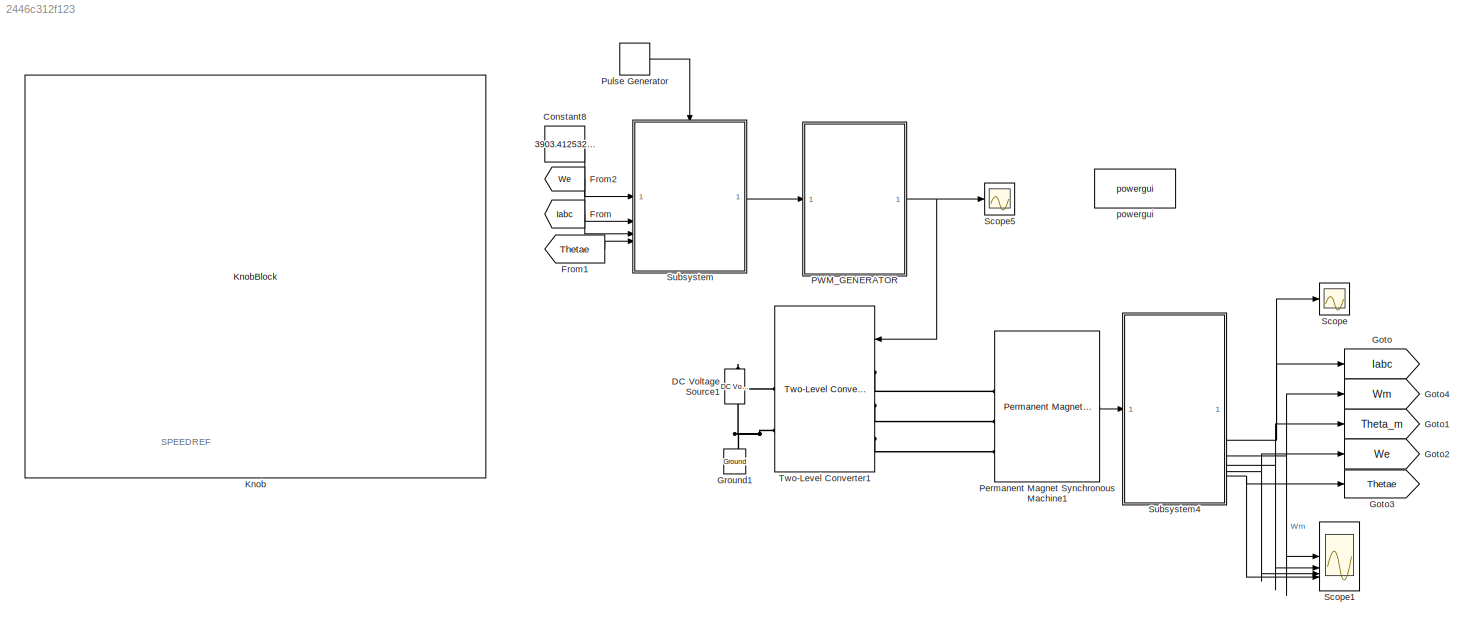
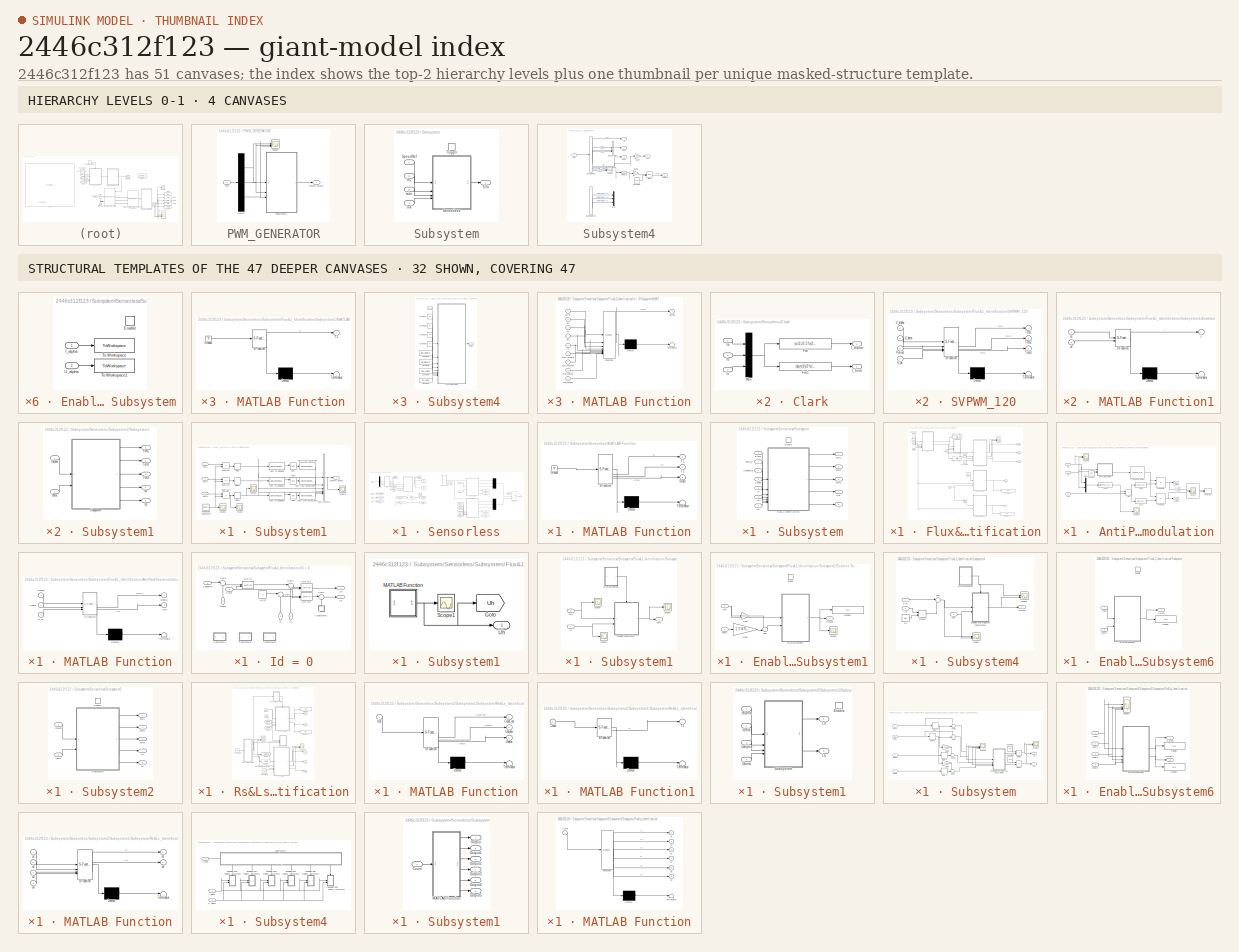
[diagram: thumbnail index - top-2 hierarchy levels (4 canvases) + 32 structural-template representatives of the remaining 47 canvases]
MODEL slx_2446c312f123
KIND model
CONFIG AbsTol = auto
CONFIG EnableMultiTasking = off
CONFIG FixedStep = 1e-6
CONFIG MaxStep = auto
CONFIG MinStep = auto
CONFIG RelTol = 1e-3
CONFIG SampleTimeConstraint = Unconstrained
CONFIG SolverName = FixedStepDiscrete
CONFIG StartTime = 0.0
CONFIG StopTime = 0.5
BLOCK [Constant] Constant8
  Value = 3903.412532127328
BLOCK [Reference] DC Voltage Source1  REF=spsDCVoltageSourceLib/DC Voltage Source
  LibrarySourceBlock = sps_lib/Sources/DC Voltage Source
  SourceBlock = spsDCVoltageSourceLib/DC Voltage Source
  SourceType = DC Voltage Source
BLOCK [From] From
  GotoTag = Iabc
BLOCK [From] From1
  GotoTag = Thetae
  NameLocation = top
BLOCK [From] From2
  GotoTag = We
BLOCK [Goto] Goto
  GotoTag = Iabc
BLOCK [Goto] Goto1
  Commented = on
  GotoTag = Theta_m
BLOCK [Goto] Goto2
  GotoTag = We
BLOCK [Goto] Goto3
  GotoTag = Thetae
BLOCK [Goto] Goto4
  Commented = on
  GotoTag = Wm
BLOCK [Reference] Ground1  REF=spsGroundLib/Ground
  LibrarySourceBlock = sps_lib/Utilities/Ground
  NameLocation = right
  SourceBlock = spsGroundLib/Ground
  SourceType = Ground
BLOCK [KnobBlock] Knob
  ScaleMax = 15000
  ScaleMin = -15000
BLOCK [SubSystem] PWM_GENERATOR
BLOCK [Demux] PWM_GENERATOR/Demux
  Outputs = 3
BLOCK [Outport] PWM_GENERATOR/SVPWM pulses
BLOCK [Scope] PWM_GENERATOR/Scope1
  Floating = off
  NumInputPorts = 3
  ScopeSpecificationString = Simulink.scopes.TimeScopeBlockCfg('CurrentConfiguration', extmgr.ConfigurationSet(extmgr.Configuration('Core','General UI',true),extmgr.Configuration('Core','Source UI',true),extmgr.Configuration('Sources','WiredSimulink',true,'DataLoggingVariableName','ScopeData1'),extmgr.Configuration('Visuals','Time Domain',true,'SerializedDisplays',{struct('MinYLimReal','1511.54926','MaxYLimReal','2146.34849',...<+3159ch>
BLOCK [SubSystem] PWM_GENERATOR/Subsystem1
BLOCK [BusCreator] PWM_GENERATOR/Subsystem1/Bus Creator1
  DisplayOption = bar
  InheritFromInputs = on
  Inputs = 6
BLOCK [DataTypeConversion] PWM_GENERATOR/Subsystem1/Cast To Boolean
  OutDataTypeStr = boolean
  RndMeth = Floor
  SaturateOnIntegerOverflow = off
BLOCK [DataTypeConversion] PWM_GENERATOR/Subsystem1/Cast To Boolean1
  OutDataTypeStr = boolean
  RndMeth = Floor
  SaturateOnIntegerOverflow = off
BLOCK [DataTypeConversion] PWM_GENERATOR/Subsystem1/Cast To Boolean2
  OutDataTypeStr = boolean
  RndMeth = Floor
  SaturateOnIntegerOverflow = off
BLOCK [DataTypeConversion] PWM_GENERATOR/Subsystem1/Data Type Conversion
  OutDataTypeStr = double
  RndMeth = Floor
  SaturateOnIntegerOverflow = off
BLOCK [DataTypeConversion] PWM_GENERATOR/Subsystem1/Data Type Conversion4
  OutDataTypeStr = double
  RndMeth = Floor
  SaturateOnIntegerOverflow = off
BLOCK [DataTypeConversion] PWM_GENERATOR/Subsystem1/Data Type Conversion5
  OutDataTypeStr = double
  RndMeth = Floor
  SaturateOnIntegerOverflow = off
BLOCK [Logic] PWM_GENERATOR/Subsystem1/NOT
  AllPortsSameDT = off
  IconShape = distinctive
  Operator = NOT
  OutDataTypeStr = boolean
BLOCK [Logic] PWM_GENERATOR/Subsystem1/NOT4
  AllPortsSameDT = off
  IconShape = distinctive
  Operator = NOT
  OutDataTypeStr = boolean
BLOCK [Logic] PWM_GENERATOR/Subsystem1/NOT5
  AllPortsSameDT = off
  IconShape = distinctive
  Operator = NOT
  OutDataTypeStr = boolean
BLOCK [Relay] PWM_GENERATOR/Subsystem1/Relay
BLOCK [Relay] PWM_GENERATOR/Subsystem1/Relay1
BLOCK [Relay] PWM_GENERATOR/Subsystem1/Relay2
BLOCK [Reference] PWM_GENERATOR/Subsystem1/Repeating Sequence1  REF=simulink/Sources/Repeating
Sequence
  SourceBlock = simulink/Sources/Repeating\nSequence
  SourceType = Repeating table
BLOCK [Outport] PWM_GENERATOR/Subsystem1/SVPWM pulses
BLOCK [Scope] PWM_GENERATOR/Subsystem1/Scope
  Floating = off
  NumInputPorts = 1
  ScopeSpecificationString = Simulink.scopes.TimeScopeBlockCfg('CurrentConfiguration', extmgr.ConfigurationSet(extmgr.Configuration('Core','General UI',true),extmgr.Configuration('Core','Source UI',true),extmgr.Configuration('Sources','WiredSimulink',true,'DataLoggingVariableName','ScopeData6'),extmgr.Configuration('Visuals','Time Domain',true,'SerializedDisplays',{struct('MinYLimReal','-3160.9375','MaxYLimReal','5073.4375','...<+1550ch>
BLOCK [Scope] PWM_GENERATOR/Subsystem1/Scope1
  Floating = off
  NumInputPorts = 1
  ScopeSpecificationString = Simulink.scopes.TimeScopeBlockCfg('CurrentConfiguration', extmgr.ConfigurationSet(extmgr.Configuration('Core','General UI',true),extmgr.Configuration('Core','Source UI',true),extmgr.Configuration('Sources','WiredSimulink',true,'DataLoggingVariableName','ScopeData7'),extmgr.Configuration('Visuals','Time Domain',true,'SerializedDisplays',{struct('MinYLimReal','-531.24999','MaxYLimReal','4781.24988',...<+1608ch>
BLOCK [Scope] PWM_GENERATOR/Subsystem1/Scope2
  Floating = off
  NumInputPorts = 1
  ScopeSpecificationString = Simulink.scopes.TimeScopeBlockCfg('CurrentConfiguration', extmgr.ConfigurationSet(extmgr.Configuration('Core','General UI',true),extmgr.Configuration('Core','Source UI',true),extmgr.Configuration('Sources','WiredSimulink',true,'DataLoggingVariableName','ScopeData8'),extmgr.Configuration('Visuals','Time Domain',true,'SerializedDisplays',{struct('MinYLimReal','-0.0382','MaxYLimReal','1.0808','YLabel...<+1552ch>
BLOCK [Scope] PWM_GENERATOR/Subsystem1/Scope3
  Floating = off
  NumInputPorts = 1
  ScopeSpecificationString = Simulink.scopes.TimeScopeBlockCfg('CurrentConfiguration', extmgr.ConfigurationSet(extmgr.Configuration('Core','General UI',true),extmgr.Configuration('Core','Source UI',true),extmgr.Configuration('Sources','WiredSimulink',true,'DataLoggingVariableName','ScopeData5'),extmgr.Configuration('Visuals','Time Domain',true,'SerializedDisplays',{struct('MinYLimReal','-0.125','MaxYLimReal','1.125','YLabelRe...<+1767ch>
BLOCK [Sum] PWM_GENERATOR/Subsystem1/Subtract
  IconShape = rectangular
  Inputs = -+
BLOCK [Sum] PWM_GENERATOR/Subsystem1/Subtract1
  IconShape = rectangular
  Inputs = -+
BLOCK [Sum] PWM_GENERATOR/Subsystem1/Subtract2
  IconShape = rectangular
  Inputs = -+
BLOCK [Inport] PWM_GENERATOR/Subsystem1/Tcm1
BLOCK [Inport] PWM_GENERATOR/Subsystem1/Tcm2
  Port = 2
BLOCK [Inport] PWM_GENERATOR/Subsystem1/Tcm3
  Port = 3
BLOCK [Inport] PWM_GENERATOR/Tcm
BLOCK [Reference] Permanent Magnet Synchronous Machine1  REF=spsPermanentMagnetSynchronousMachineLib/Permanent Magnet
Synchronous Machine
  LibrarySourceBlock = sps_lib/Electrical Machines/Permanent Magnet\nSynchronous Machine
  SourceBlock = spsPermanentMagnetSynchronousMachineLib/Permanent Magnet\nSynchronous Machine
  SourceType = Permanent Magnet Synchronous Machine
BLOCK [DiscretePulseGenerator] Pulse Generator
  Period = 0.0001
  PulseType = Time based
  PulseWidth = 50
BLOCK [Scope] Scope
  Floating = off
  NumInputPorts = 1
  ScopeSpecificationString = Simulink.scopes.TimeScopeBlockCfg('CurrentConfiguration', extmgr.ConfigurationSet(extmgr.Configuration('Core','General UI',true),extmgr.Configuration('Core','Source UI',true),extmgr.Configuration('Sources','WiredSimulink',true,'DataLoggingVariableName','ScopeData4'),extmgr.Configuration('Visuals','Time Domain',true,'SerializedDisplays',{struct('MinYLimReal','-32.25913','MaxYLimReal','30.85724','YL...<+1967ch>
BLOCK [Scope] Scope1
  Floating = off
  NumInputPorts = 4
  ScopeSpecificationString = Simulink.scopes.TimeScopeBlockCfg('CurrentConfiguration', extmgr.ConfigurationSet(extmgr.Configuration('Core','General UI',true),extmgr.Configuration('Core','Source UI',true),extmgr.Configuration('Sources','WiredSimulink',true,'DataLoggingVariableName','ScopeData6'),extmgr.Configuration('Visuals','Time Domain',true,'SerializedDisplays',{struct('MinYLimReal','-53.87951','MaxYLimReal','483.2497','YL...<+3904ch>
BLOCK [Scope] Scope5
  Floating = off
  NumInputPorts = 1
  ScopeSpecificationString = Simulink.scopes.TimeScopeBlockCfg('CurrentConfiguration', extmgr.ConfigurationSet(extmgr.Configuration('Core','General UI',true),extmgr.Configuration('Core','Source UI',true),extmgr.Configuration('Sources','WiredSimulink',true,'DataLoggingVariableName','ScopeData5'),extmgr.Configuration('Visuals','Time Domain',true,'SerializedDisplays',{struct('MinYLimReal','-0.125','MaxYLimReal','1.125','YLabelRe...<+3218ch>
BLOCK [SubSystem] Subsystem
BLOCK [Inport] Subsystem/Iabc
  Port = 3
BLOCK [Inport] Subsystem/In2
  Port = 2
BLOCK [Inport] Subsystem/In4
  Port = 4
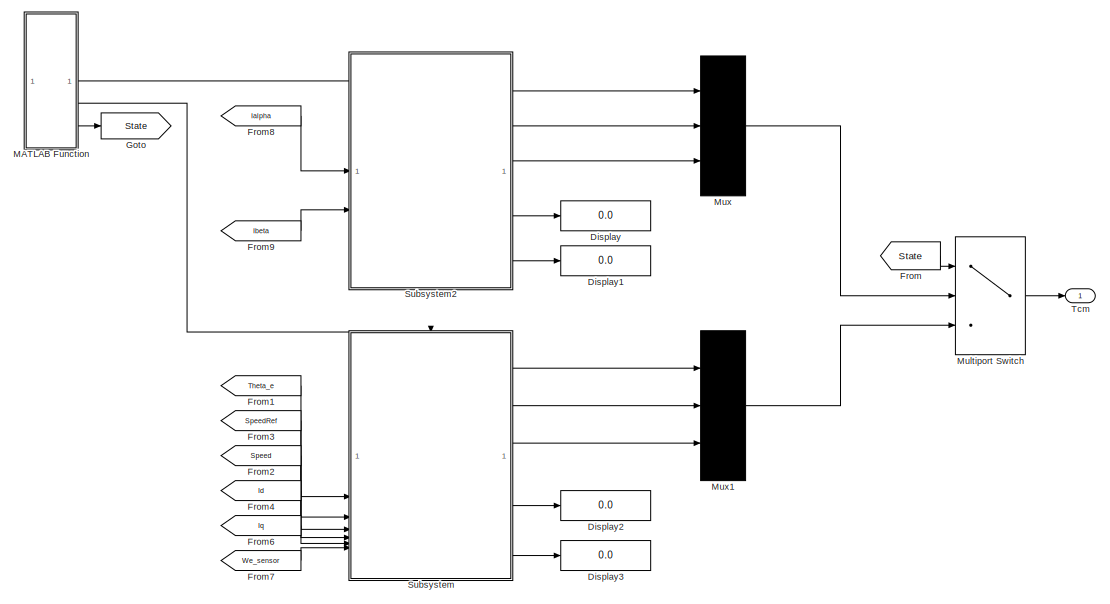
[diagram: Subsystem/Sensorless - part 1/2, right side, full height]
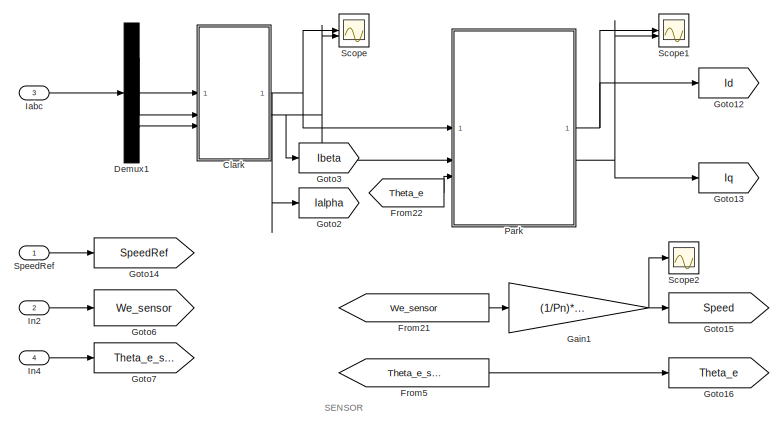
[diagram: Subsystem/Sensorless - part 2/2, middle left region]
BLOCK [SubSystem] Subsystem/Sensorless
BLOCK [SubSystem] Subsystem/Sensorless/Clark
BLOCK [Fcn] Subsystem/Sensorless/Clark/Fcn
  Expr = (u(1)-0.5*u(2)-0.5*u(3))*2/3
BLOCK [Fcn] Subsystem/Sensorless/Clark/Fcn1
  Expr = (sqrt(3)/2*u(2)-sqrt(3)/2*u(3))*2/3
BLOCK [Outport] Subsystem/Sensorless/Clark/I_alpha
BLOCK [Outport] Subsystem/Sensorless/Clark/I_beta
  Port = 2
BLOCK [Inport] Subsystem/Sensorless/Clark/Ia
BLOCK [Inport] Subsystem/Sensorless/Clark/Ib
  Port = 2
BLOCK [Inport] Subsystem/Sensorless/Clark/Ic
  Port = 3
BLOCK [Mux] Subsystem/Sensorless/Clark/Mux
  DisplayOption = bar
  Inputs = 3
BLOCK [Demux] Subsystem/Sensorless/Demux1
  Outputs = 3
BLOCK [Display] Subsystem/Sensorless/Display
  Decimation = 1
BLOCK [Display] Subsystem/Sensorless/Display1
  Decimation = 1
BLOCK [Display] Subsystem/Sensorless/Display2
  Decimation = 1
BLOCK [Display] Subsystem/Sensorless/Display3
  Decimation = 1
BLOCK [From] Subsystem/Sensorless/From
  GotoTag = State
BLOCK [From] Subsystem/Sensorless/From1
  GotoTag = Theta_e
  TagVisibility = global
BLOCK [From] Subsystem/Sensorless/From2
  GotoTag = Speed
  TagVisibility = global
BLOCK [From] Subsystem/Sensorless/From21
  GotoTag = We_sensor
BLOCK [From] Subsystem/Sensorless/From22
  GotoTag = Theta_e
  TagVisibility = global
BLOCK [From] Subsystem/Sensorless/From3
  GotoTag = SpeedRef
  TagVisibility = global
BLOCK [From] Subsystem/Sensorless/From4
  GotoTag = Id
  TagVisibility = global
BLOCK [From] Subsystem/Sensorless/From5
  GotoTag = Theta_e_sensor
BLOCK [From] Subsystem/Sensorless/From6
  GotoTag = Iq
  TagVisibility = global
BLOCK [From] Subsystem/Sensorless/From7
  GotoTag = We_sensor
BLOCK [From] Subsystem/Sensorless/From8
  GotoTag = Ialpha
  TagVisibility = global
BLOCK [From] Subsystem/Sensorless/From9
  GotoTag = Ibeta
  TagVisibility = global
BLOCK [Gain] Subsystem/Sensorless/Gain1
  Gain = (1/Pn)*(30/pi)
BLOCK [Goto] Subsystem/Sensorless/Goto
  GotoTag = State
BLOCK [Goto] Subsystem/Sensorless/Goto12
  GotoTag = Id
  TagVisibility = global
BLOCK [Goto] Subsystem/Sensorless/Goto13
  GotoTag = Iq
  TagVisibility = global
BLOCK [Goto] Subsystem/Sensorless/Goto14
  GotoTag = SpeedRef
  TagVisibility = global
BLOCK [Goto] Subsystem/Sensorless/Goto15
  GotoTag = Speed
  TagVisibility = global
BLOCK [Goto] Subsystem/Sensorless/Goto16
  GotoTag = Theta_e
  TagVisibility = global
BLOCK [Goto] Subsystem/Sensorless/Goto2
  GotoTag = Ialpha
  TagVisibility = global
BLOCK [Goto] Subsystem/Sensorless/Goto3
  GotoTag = Ibeta
  TagVisibility = global
BLOCK [Goto] Subsystem/Sensorless/Goto6
  GotoTag = We_sensor
BLOCK [Goto] Subsystem/Sensorless/Goto7
  GotoTag = Theta_e_sensor
BLOCK [Inport] Subsystem/Sensorless/Iabc
  Port = 3
BLOCK [Inport] Subsystem/Sensorless/In2
  Port = 2
BLOCK [Inport] Subsystem/Sensorless/In4
  Port = 4
BLOCK [SubSystem] Subsystem/Sensorless/MATLAB Function
  ErrorFcn = Stateflow.Translate.translate
  PermitHierarchicalResolution = ExplicitOnly
  SFBlockType = MATLAB Function
  TreatAsAtomicUnit = on
BLOCK [Demux] Subsystem/Sensorless/MATLAB Function/ Demux 
  Outputs = 1
BLOCK [Ground] Subsystem/Sensorless/MATLAB Function/ Ground 
BLOCK [S-Function] Subsystem/Sensorless/MATLAB Function/ SFunction 
  EnableBusSupport = on
  FunctionName = sf_sfun
  PortCounts = [1 4]
  SFcnIsStateOwnerBlock = off
  SFunctionDeploymentMode = off
  Tag = Stateflow S-Function 16
BLOCK [Terminator] Subsystem/Sensorless/MATLAB Function/ Terminator 
BLOCK [Outport] Subsystem/Sensorless/MATLAB Function/State
  Port = 3
BLOCK [Outport] Subsystem/Sensorless/MATLAB Function/T1
BLOCK [Outport] Subsystem/Sensorless/MATLAB Function/T2
  Port = 2
BLOCK [MultiPortSwitch] Subsystem/Sensorless/Multiport Switch
  InputSameDT = off
  Inputs = 2
  SaturateOnIntegerOverflow = off
BLOCK [Mux] Subsystem/Sensorless/Mux
  DisplayOption = bar
  Inputs = 3
BLOCK [Mux] Subsystem/Sensorless/Mux1
  DisplayOption = bar
  Inputs = 3
BLOCK [SubSystem] Subsystem/Sensorless/Park
BLOCK [Fcn] Subsystem/Sensorless/Park/Fcn
  Expr = cos(u(3))*u(1)+sin(u(3))*u(2)
BLOCK [Fcn] Subsystem/Sensorless/Park/Fcn1
  Expr = -sin(u(3))*u(1)+cos(u(3))*u(2)
BLOCK [Outport] Subsystem/Sensorless/Park/I_d
BLOCK [Outport] Subsystem/Sensorless/Park/I_q
  Port = 2
BLOCK [Mux] Subsystem/Sensorless/Park/Mux
  DisplayOption = bar
  Inputs = 3
BLOCK [Inport] Subsystem/Sensorless/Park/The
  Port = 3
BLOCK [Inport] Subsystem/Sensorless/Park/alpha
BLOCK [Inport] Subsystem/Sensorless/Park/beta
  Port = 2
BLOCK [Scope] Subsystem/Sensorless/Scope
  Floating = off
  NumInputPorts = 2
  ScopeSpecificationString = Simulink.scopes.TimeScopeBlockCfg('CurrentConfiguration', extmgr.ConfigurationSet(extmgr.Configuration('Core','General UI',true),extmgr.Configuration('Core','Source UI',true),extmgr.Configuration('Sources','WiredSimulink',true,'DataLoggingVariableName','ScopeData7'),extmgr.Configuration('Visuals','Time Domain',true,'SerializedDisplays',{struct('MinYLimReal','-9.68557','MaxYLimReal','6.99147','YLab...<+1568ch>
BLOCK [Scope] Subsystem/Sensorless/Scope1
  Floating = off
  NumInputPorts = 2
  ScopeSpecificationString = Simulink.scopes.TimeScopeBlockCfg('CurrentConfiguration', extmgr.ConfigurationSet(extmgr.Configuration('Core','General UI',true),extmgr.Configuration('Core','Source UI',true),extmgr.Configuration('Sources','WiredSimulink',true,'DataLoggingVariableName','ScopeData8'),extmgr.Configuration('Visuals','Time Domain',true,'SerializedDisplays',{struct('MinYLimReal','-25.86435','MaxYLimReal','110.24107','Y...<+1537ch>
BLOCK [Scope] Subsystem/Sensorless/Scope2
  Floating = off
  NumInputPorts = 1
  ScopeSpecificationString = Simulink.scopes.TimeScopeBlockCfg('CurrentConfiguration', extmgr.ConfigurationSet(extmgr.Configuration('Core','General UI',true,'FigureColor',[1 1 1]),extmgr.Configuration('Core','Source UI',true),extmgr.Configuration('Sources','WiredSimulink',true,'DataLoggingVariableName','ScopeData1'),extmgr.Configuration('Visuals','Time Domain',true,'SerializedDisplays',{struct('MinYLimReal','-1141.76987','Max...<+2435ch>
BLOCK [Inport] Subsystem/Sensorless/SpeedRef
BLOCK [SubSystem] Subsystem/Sensorless/Subsystem
BLOCK [EnablePort] Subsystem/Sensorless/Subsystem/Enable
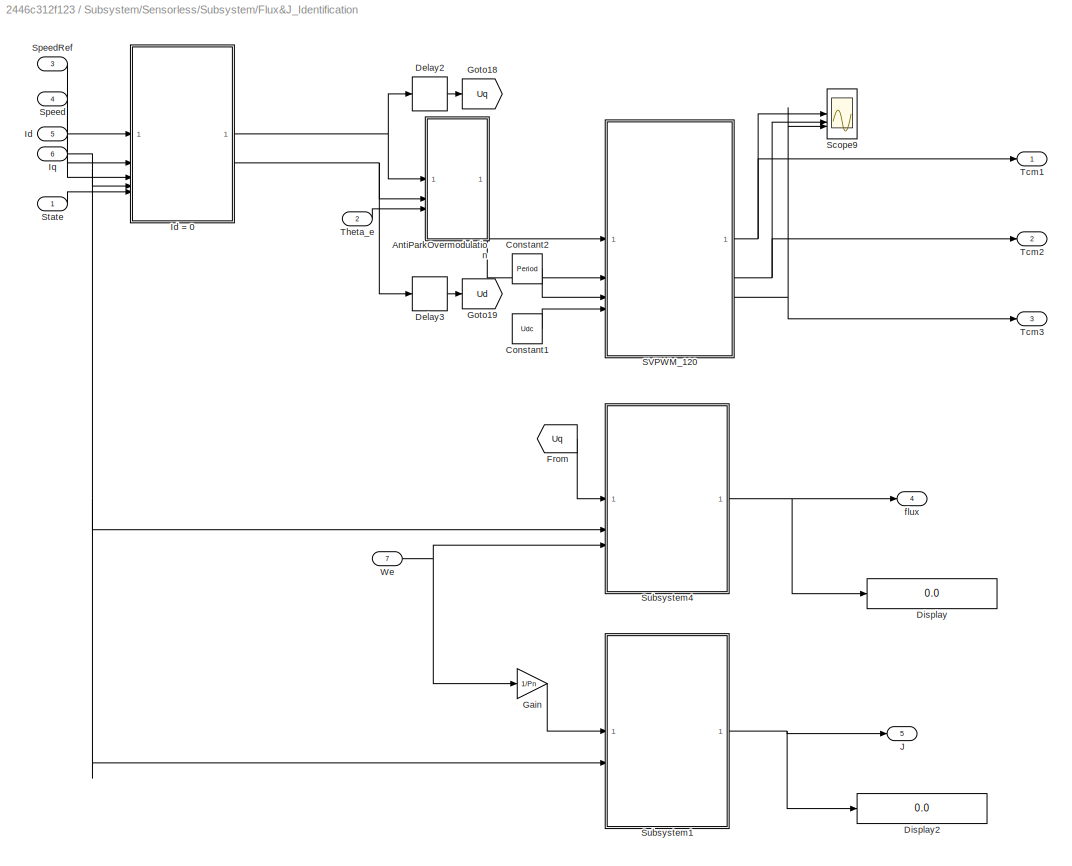
BLOCK [SubSystem] Subsystem/Sensorless/Subsystem/Flux&J_Identification
BLOCK [SubSystem] Subsystem/Sensorless/Subsystem/Flux&J_Identification/AntiParkOvermodulation
BLOCK [Lookup_n-D] Subsystem/Sensorless/Subsystem/Flux&J_Identification/AntiParkOvermodulation/1-D Lookup Table1
  BreakpointsForDimension1 = F1
  ExtrapMethod = Clip
  InputPortMap = u0
  InternalRulePriority = Speed
  NumberOfTableDimensions = 1
  RndMeth = Simplest
  Table = U_ref
  UseLastTableValue = on
BLOCK [Sum] Subsystem/Sensorless/Subsystem/Flux&J_Identification/AntiParkOvermodulation/Add
  IconShape = rectangular
BLOCK [Constant] Subsystem/Sensorless/Subsystem/Flux&J_Identification/AntiParkOvermodulation/Constant
  Value = Udc
BLOCK [Fcn] Subsystem/Sensorless/Subsystem/Flux&J_Identification/AntiParkOvermodulation/Fcn3
  Expr = cos(u(1))
BLOCK [Fcn] Subsystem/Sensorless/Subsystem/Flux&J_Identification/AntiParkOvermodulation/Fcn4
  Expr = sin(u(1))
BLOCK [Fcn] Subsystem/Sensorless/Subsystem/Flux&J_Identification/AntiParkOvermodulation/Fcn5
  Expr = atan2(u(1),u(2))
BLOCK [SubSystem] Subsystem/Sensorless/Subsystem/Flux&J_Identification/AntiParkOvermodulation/MATLAB Function
  ErrorFcn = Stateflow.Translate.translate
  PermitHierarchicalResolution = ExplicitOnly
  SFBlockType = MATLAB Function
  TreatAsAtomicUnit = on
BLOCK [Demux] Subsystem/Sensorless/Subsystem/Flux&J_Identification/AntiParkOvermodulation/MATLAB Function/ Demux 
  Outputs = 1
BLOCK [S-Function] Subsystem/Sensorless/Subsystem/Flux&J_Identification/AntiParkOvermodulation/MATLAB Function/ SFunction 
  EnableBusSupport = on
  FunctionName = sf_sfun
  PortCounts = [3 3]
  SFcnIsStateOwnerBlock = off
  SFunctionDeploymentMode = off
  Tag = Stateflow S-Function 9
BLOCK [Terminator] Subsystem/Sensorless/Subsystem/Flux&J_Identification/AntiParkOvermodulation/MATLAB Function/ Terminator 
BLOCK [Outport] Subsystem/Sensorless/Subsystem/Flux&J_Identification/AntiParkOvermodulation/MATLAB Function/Modulu
BLOCK [Inport] Subsystem/Sensorless/Subsystem/Flux&J_Identification/AntiParkOvermodulation/MATLAB Function/U_dc
  Port = 3
BLOCK [Inport] Subsystem/Sensorless/Subsystem/Flux&J_Identification/AntiParkOvermodulation/MATLAB Function/Ualpha
BLOCK [Inport] Subsystem/Sensorless/Subsystem/Flux&J_Identification/AntiParkOvermodulation/MATLAB Function/Ubeta
  Port = 2
BLOCK [Outport] Subsystem/Sensorless/Subsystem/Flux&J_Identification/AntiParkOvermodulation/MATLAB Function/Uref
  Port = 2
BLOCK [Mux] Subsystem/Sensorless/Subsystem/Flux&J_Identification/AntiParkOvermodulation/Mux1
  DisplayOption = bar
  Inputs = 2
BLOCK [Product] Subsystem/Sensorless/Subsystem/Flux&J_Identification/AntiParkOvermodulation/Product2
BLOCK [Product] Subsystem/Sensorless/Subsystem/Flux&J_Identification/AntiParkOvermodulation/Product3
BLOCK [Scope] Subsystem/Sensorless/Subsystem/Flux&J_Identification/AntiParkOvermodulation/Scope
  Floating = off
  NumInputPorts = 2
  ScopeSpecificationString = Simulink.scopes.TimeScopeBlockCfg('CurrentConfiguration', extmgr.ConfigurationSet(extmgr.Configuration('Core','General UI',true),extmgr.Configuration('Core','Source UI',true),extmgr.Configuration('Sources','WiredSimulink',true,'DataLoggingVariableName','ScopeData3'),extmgr.Configuration('Visuals','Time Domain',true,'SerializedDisplays',{struct('MinYLimReal','-433.01265','MaxYLimReal','433.01264','...<+1574ch>
BLOCK [Scope] Subsystem/Sensorless/Subsystem/Flux&J_Identification/AntiParkOvermodulation/Scope1
  Floating = off
  NumInputPorts = 2
  ScopeSpecificationString = Simulink.scopes.TimeScopeBlockCfg('CurrentConfiguration', extmgr.ConfigurationSet(extmgr.Configuration('Core','General UI',true),extmgr.Configuration('Core','Source UI',true),extmgr.Configuration('Sources','WiredSimulink',true,'DataLoggingVariableName','ScopeData2'),extmgr.Configuration('Visuals','Time Domain',true,'SerializedDisplays',{struct('MinYLimReal','-0.33719','MaxYLimReal','3.03474','YLab...<+1626ch>
BLOCK [Scope] Subsystem/Sensorless/Subsystem/Flux&J_Identification/AntiParkOvermodulation/Scope3
  Floating = off
  NumInputPorts = 2
  ScopeSpecificationString = Simulink.scopes.TimeScopeBlockCfg('CurrentConfiguration', extmgr.ConfigurationSet(extmgr.Configuration('Core','General UI',true,'FigureColor',[1 1 1]),extmgr.Configuration('Core','Source UI',true),extmgr.Configuration('Sources','WiredSimulink',true,'DataLoggingVariableName','ScopeData1'),extmgr.Configuration('Visuals','Time Domain',true,'SerializedDisplays',{struct('MinYLimReal','-62.5','MaxYLimRe...<+3108ch>
BLOCK [Inport] Subsystem/Sensorless/Subsystem/Flux&J_Identification/AntiParkOvermodulation/The
  NameLocation = left
  Port = 3
BLOCK [Outport] Subsystem/Sensorless/Subsystem/Flux&J_Identification/AntiParkOvermodulation/U_alpha
BLOCK [Outport] Subsystem/Sensorless/Subsystem/Flux&J_Identification/AntiParkOvermodulation/U_beta
  Port = 2
BLOCK [Inport] Subsystem/Sensorless/Subsystem/Flux&J_Identification/AntiParkOvermodulation/Ud
  Port = 2
BLOCK [Inport] Subsystem/Sensorless/Subsystem/Flux&J_Identification/AntiParkOvermodulation/Uq
BLOCK [Record] Subsystem/Sensorless/Subsystem/Flux&J_Identification/AntiParkOvermodulation/XY Graph
  CompatibilityTag = XY
  FileSettingsInternal = {"entries":[{"content":{"excelSettings":{"content":{},"type":"Streamout.ExcelSettings"}},"type":"Streamout.FileSettingStorage","uuid":""}],"packageUris":["http:\/\/schema.mathworks.com\/mf0\/streamout_blocks\/R2020a"],"version":"1.0"}
  Layout = [1 1]
  SignalsInternal = {"entries":[{"content":{"signals":[{"content":{"blockPath":[],"dimensions":[1],"domain":"","lineColor":"#a2142f","lineWidth":2,"port":1,"sid":[""],"signalID":1,"signalName":"U_alpha"},"type":"RecordBlkView.Signal","uuid":""},{"content":{"blockPath":[],"dimensions":[1],"domain":"","lineColor":"#139fff","lineWidth":2,"port":2,"sid":[""],"signalID":2,"signalName":"U_beta"},"type":"RecordBlkView.Signa...<+159ch>
  VisualizationBindings = {"xyplotplugin":{"info":[{"series":[],"subplotID":1}]}}
BLOCK [Constant] Subsystem/Sensorless/Subsystem/Flux&J_Identification/Constant1
  Value = Udc
BLOCK [Constant] Subsystem/Sensorless/Subsystem/Flux&J_Identification/Constant2
  Value = Period
BLOCK [Delay] Subsystem/Sensorless/Subsystem/Flux&J_Identification/Delay2
  DelayLength = 1
  InputPortMap = u0
BLOCK [Delay] Subsystem/Sensorless/Subsystem/Flux&J_Identification/Delay3
  DelayLength = 1
  InputPortMap = u0
BLOCK [Display] Subsystem/Sensorless/Subsystem/Flux&J_Identification/Display
  Decimation = 1
  Format = long
BLOCK [Display] Subsystem/Sensorless/Subsystem/Flux&J_Identification/Display2
  Decimation = 1
  Format = long
BLOCK [From] Subsystem/Sensorless/Subsystem/Flux&J_Identification/From
  GotoTag = Uq
  TagVisibility = global
BLOCK [Gain] Subsystem/Sensorless/Subsystem/Flux&J_Identification/Gain
  Gain = 1/Pn
BLOCK [Goto] Subsystem/Sensorless/Subsystem/Flux&J_Identification/Goto18
  GotoTag = Uq
  TagVisibility = global
BLOCK [Goto] Subsystem/Sensorless/Subsystem/Flux&J_Identification/Goto19
  GotoTag = Ud
  TagVisibility = global
BLOCK [Inport] Subsystem/Sensorless/Subsystem/Flux&J_Identification/Id
  Port = 5
BLOCK [SubSystem] Subsystem/Sensorless/Subsystem/Flux&J_Identification/Id = 0
BLOCK [Inport] Subsystem/Sensorless/Subsystem/Flux&J_Identification/Id = 0/Id
  NameLocation = right
  Port = 3
BLOCK [Constant] Subsystem/Sensorless/Subsystem/Flux&J_Identification/Id = 0/Id_ref
  Value = 0
BLOCK [Inport] Subsystem/Sensorless/Subsystem/Flux&J_Identification/Id = 0/Iq
  NameLocation = right
  Port = 4
BLOCK [Reference] Subsystem/Sensorless/Subsystem/Flux&J_Identification/Id = 0/MyPID  REF=My_library/MyPID
  SourceBlock = My_library/MyPID
BLOCK [Reference] Subsystem/Sensorless/Subsystem/Flux&J_Identification/Id = 0/MyPID1  REF=My_library/MyPID
  SourceBlock = My_library/MyPID
BLOCK [Reference] Subsystem/Sensorless/Subsystem/Flux&J_Identification/Id = 0/MyPID2  REF=My_library/MyPID
  SourceBlock = My_library/MyPID
BLOCK [Inport] Subsystem/Sensorless/Subsystem/Flux&J_Identification/Id = 0/Speed
  NameLocation = right
  Port = 2
BLOCK [Inport] Subsystem/Sensorless/Subsystem/Flux&J_Identification/Id = 0/SpeedRef
BLOCK [Inport] Subsystem/Sensorless/Subsystem/Flux&J_Identification/Id = 0/State
  Port = 5
BLOCK [SubSystem] Subsystem/Sensorless/Subsystem/Flux&J_Identification/Id = 0/Subsystem1
  Commented = on
  NameLocation = right
BLOCK [Goto] Subsystem/Sensorless/Subsystem/Flux&J_Identification/Id = 0/Subsystem1/Goto
  GotoTag = Uh
  TagVisibility = global
BLOCK [SubSystem] Subsystem/Sensorless/Subsystem/Flux&J_Identification/Id = 0/Subsystem1/MATLAB Function
  ErrorFcn = Stateflow.Translate.translate
  PermitHierarchicalResolution = ExplicitOnly
  SFBlockType = MATLAB Function
  TreatAsAtomicUnit = on
BLOCK [Demux] Subsystem/Sensorless/Subsystem/Flux&J_Identification/Id = 0/Subsystem1/MATLAB Function/ Demux 
  Outputs = 1
BLOCK [Ground] Subsystem/Sensorless/Subsystem/Flux&J_Identification/Id = 0/Subsystem1/MATLAB Function/ Ground 
BLOCK [S-Function] Subsystem/Sensorless/Subsystem/Flux&J_Identification/Id = 0/Subsystem1/MATLAB Function/ SFunction 
  EnableBusSupport = on
  FunctionName = sf_sfun
  PortCounts = [1 2]
  SFcnIsStateOwnerBlock = off
  SFunctionDeploymentMode = off
  Tag = Stateflow S-Function 6
BLOCK [Terminator] Subsystem/Sensorless/Subsystem/Flux&J_Identification/Id = 0/Subsystem1/MATLAB Function/ Terminator 
BLOCK [Outport] Subsystem/Sensorless/Subsystem/Flux&J_Identification/Id = 0/Subsystem1/MATLAB Function/y
BLOCK [Scope] Subsystem/Sensorless/Subsystem/Flux&J_Identification/Id = 0/Subsystem1/Scope1
  Floating = off
  NumInputPorts = 1
  ScopeSpecificationString = Simulink.scopes.TimeScopeBlockCfg('CurrentConfiguration', extmgr.ConfigurationSet(extmgr.Configuration('Core','General UI',true),extmgr.Configuration('Core','Source UI',true),extmgr.Configuration('Sources','WiredSimulink',true,'DataLoggingVariableName','ScopeData2'),extmgr.Configuration('Visuals','Time Domain',true,'SerializedDisplays',{struct('MinYLimReal','-37.19193','MaxYLimReal','36.79985','YL...<+1540ch>
BLOCK [Outport] Subsystem/Sensorless/Subsystem/Flux&J_Identification/Id = 0/Subsystem1/Uh
BLOCK [SubSystem] Subsystem/Sensorless/Subsystem/Flux&J_Identification/Id = 0/Subsystem4
  Commented = on
BLOCK [Constant] Subsystem/Sensorless/Subsystem/Flux&J_Identification/Id = 0/Subsystem4/Constant
  Value = Kp
BLOCK [Constant] Subsystem/Sensorless/Subsystem/Flux&J_Identification/Id = 0/Subsystem4/Constant1
  Value = Ki
BLOCK [Constant] Subsystem/Sensorless/Subsystem/Flux&J_Identification/Id = 0/Subsystem4/Constant2
  Value = Kd
BLOCK [Constant] Subsystem/Sensorless/Subsystem/Flux&J_Identification/Id = 0/Subsystem4/Constant3
  Value = Ts
BLOCK [Constant] Subsystem/Sensorless/Subsystem/Flux&J_Identification/Id = 0/Subsystem4/Constant4
  Value = max_Integral
BLOCK [Constant] Subsystem/Sensorless/Subsystem/Flux&J_Identification/Id = 0/Subsystem4/Constant5
  Value = min_Integral
BLOCK [Constant] Subsystem/Sensorless/Subsystem/Flux&J_Identification/Id = 0/Subsystem4/Constant6
  Value = max_output
BLOCK [Constant] Subsystem/Sensorless/Subsystem/Flux&J_Identification/Id = 0/Subsystem4/Constant7
  Value = min_output
BLOCK [SubSystem] Subsystem/Sensorless/Subsystem/Flux&J_Identification/Id = 0/Subsystem4/MATLAB Function
  ErrorFcn = Stateflow.Translate.translate
  PermitHierarchicalResolution = ExplicitOnly
  SFBlockType = MATLAB Function
  TreatAsAtomicUnit = on
BLOCK [Demux] Subsystem/Sensorless/Subsystem/Flux&J_Identification/Id = 0/Subsystem4/MATLAB Function/ Demux 
  Outputs = 1
BLOCK [S-Function] Subsystem/Sensorless/Subsystem/Flux&J_Identification/Id = 0/Subsystem4/MATLAB Function/ SFunction 
  EnableBusSupport = on
  FunctionName = sf_sfun
  PortCounts = [9 2]
  SFcnIsStateOwnerBlock = off
  SFunctionDeploymentMode = off
  Tag = Stateflow S-Function 8
BLOCK [Terminator] Subsystem/Sensorless/Subsystem/Flux&J_Identification/Id = 0/Subsystem4/MATLAB Function/ Terminator 
BLOCK [Inport] Subsystem/Sensorless/Subsystem/Flux&J_Identification/Id = 0/Subsystem4/MATLAB Function/Kd
  Port = 4
BLOCK [Inport] Subsystem/Sensorless/Subsystem/Flux&J_Identification/Id = 0/Subsystem4/MATLAB Function/Ki
  Port = 3
BLOCK [Inport] Subsystem/Sensorless/Subsystem/Flux&J_Identification/Id = 0/Subsystem4/MATLAB Function/Kp
  Port = 2
BLOCK [Inport] Subsystem/Sensorless/Subsystem/Flux&J_Identification/Id = 0/Subsystem4/MATLAB Function/Ts
  Port = 5
BLOCK [Inport] Subsystem/Sensorless/Subsystem/Flux&J_Identification/Id = 0/Subsystem4/MATLAB Function/error
BLOCK [Inport] Subsystem/Sensorless/Subsystem/Flux&J_Identification/Id = 0/Subsystem4/MATLAB Function/max_Integral
  Port = 6
BLOCK [Inport] Subsystem/Sensorless/Subsystem/Flux&J_Identification/Id = 0/Subsystem4/MATLAB Function/max_output
  Port = 8
BLOCK [Inport] Subsystem/Sensorless/Subsystem/Flux&J_Identification/Id = 0/Subsystem4/MATLAB Function/min_Integral
  Port = 7
BLOCK [Inport] Subsystem/Sensorless/Subsystem/Flux&J_Identification/Id = 0/Subsystem4/MATLAB Function/min_output
  Port = 9
BLOCK [Outport] Subsystem/Sensorless/Subsystem/Flux&J_Identification/Id = 0/Subsystem4/MATLAB Function/output
BLOCK [Inport] Subsystem/Sensorless/Subsystem/Flux&J_Identification/Id = 0/Subsystem4/error
BLOCK [Outport] Subsystem/Sensorless/Subsystem/Flux&J_Identification/Id = 0/Subsystem4/output
BLOCK [SubSystem] Subsystem/Sensorless/Subsystem/Flux&J_Identification/Id = 0/Subsystem5
  Commented = on
BLOCK [Constant] Subsystem/Sensorless/Subsystem/Flux&J_Identification/Id = 0/Subsystem5/Constant
  Value = Kp
BLOCK [Constant] Subsystem/Sensorless/Subsystem/Flux&J_Identification/Id = 0/Subsystem5/Constant1
  Value = Ki
BLOCK [Constant] Subsystem/Sensorless/Subsystem/Flux&J_Identification/Id = 0/Subsystem5/Constant2
  Value = Kd
BLOCK [Constant] Subsystem/Sensorless/Subsystem/Flux&J_Identification/Id = 0/Subsystem5/Constant3
  Value = Ts
BLOCK [Constant] Subsystem/Sensorless/Subsystem/Flux&J_Identification/Id = 0/Subsystem5/Constant4
  Value = max_Integral
BLOCK [Constant] Subsystem/Sensorless/Subsystem/Flux&J_Identification/Id = 0/Subsystem5/Constant5
  Value = min_Integral
BLOCK [Constant] Subsystem/Sensorless/Subsystem/Flux&J_Identification/Id = 0/Subsystem5/Constant6
  Value = max_output
BLOCK [Constant] Subsystem/Sensorless/Subsystem/Flux&J_Identification/Id = 0/Subsystem5/Constant7
  Value = min_output
BLOCK [SubSystem] Subsystem/Sensorless/Subsystem/Flux&J_Identification/Id = 0/Subsystem5/MATLAB Function
  ErrorFcn = Stateflow.Translate.translate
  PermitHierarchicalResolution = ExplicitOnly
  SFBlockType = MATLAB Function
  TreatAsAtomicUnit = on
BLOCK [Demux] Subsystem/Sensorless/Subsystem/Flux&J_Identification/Id = 0/Subsystem5/MATLAB Function/ Demux 
  Outputs = 1
BLOCK [S-Function] Subsystem/Sensorless/Subsystem/Flux&J_Identification/Id = 0/Subsystem5/MATLAB Function/ SFunction 
  EnableBusSupport = on
  FunctionName = sf_sfun
  PortCounts = [9 2]
  SFcnIsStateOwnerBlock = off
  SFunctionDeploymentMode = off
  Tag = Stateflow S-Function 2
BLOCK [Terminator] Subsystem/Sensorless/Subsystem/Flux&J_Identification/Id = 0/Subsystem5/MATLAB Function/ Terminator 
BLOCK [Inport] Subsystem/Sensorless/Subsystem/Flux&J_Identification/Id = 0/Subsystem5/MATLAB Function/Kd
  Port = 4
BLOCK [Inport] Subsystem/Sensorless/Subsystem/Flux&J_Identification/Id = 0/Subsystem5/MATLAB Function/Ki
  Port = 3
BLOCK [Inport] Subsystem/Sensorless/Subsystem/Flux&J_Identification/Id = 0/Subsystem5/MATLAB Function/Kp
  Port = 2
BLOCK [Inport] Subsystem/Sensorless/Subsystem/Flux&J_Identification/Id = 0/Subsystem5/MATLAB Function/Ts
  Port = 5
BLOCK [Inport] Subsystem/Sensorless/Subsystem/Flux&J_Identification/Id = 0/Subsystem5/MATLAB Function/error
BLOCK [Inport] Subsystem/Sensorless/Subsystem/Flux&J_Identification/Id = 0/Subsystem5/MATLAB Function/max_Integral
  Port = 6
BLOCK [Inport] Subsystem/Sensorless/Subsystem/Flux&J_Identification/Id = 0/Subsystem5/MATLAB Function/max_output
  Port = 8
BLOCK [Inport] Subsystem/Sensorless/Subsystem/Flux&J_Identification/Id = 0/Subsystem5/MATLAB Function/min_Integral
  Port = 7
BLOCK [Inport] Subsystem/Sensorless/Subsystem/Flux&J_Identification/Id = 0/Subsystem5/MATLAB Function/min_output
  Port = 9
BLOCK [Outport] Subsystem/Sensorless/Subsystem/Flux&J_Identification/Id = 0/Subsystem5/MATLAB Function/output
BLOCK [Inport] Subsystem/Sensorless/Subsystem/Flux&J_Identification/Id = 0/Subsystem5/error
BLOCK [Outport] Subsystem/Sensorless/Subsystem/Flux&J_Identification/Id = 0/Subsystem5/output
BLOCK [SubSystem] Subsystem/Sensorless/Subsystem/Flux&J_Identification/Id = 0/Subsystem6
  Commented = on
BLOCK [Constant] Subsystem/Sensorless/Subsystem/Flux&J_Identification/Id = 0/Subsystem6/Constant
  Value = Kp
BLOCK [Constant] Subsystem/Sensorless/Subsystem/Flux&J_Identification/Id = 0/Subsystem6/Constant1
  Value = Ki
BLOCK [Constant] Subsystem/Sensorless/Subsystem/Flux&J_Identification/Id = 0/Subsystem6/Constant2
  Value = Kd
BLOCK [Constant] Subsystem/Sensorless/Subsystem/Flux&J_Identification/Id = 0/Subsystem6/Constant3
  Value = Ts
BLOCK [Constant] Subsystem/Sensorless/Subsystem/Flux&J_Identification/Id = 0/Subsystem6/Constant4
  Value = max_Integral
BLOCK [Constant] Subsystem/Sensorless/Subsystem/Flux&J_Identification/Id = 0/Subsystem6/Constant5
  Value = min_Integral
BLOCK [Constant] Subsystem/Sensorless/Subsystem/Flux&J_Identification/Id = 0/Subsystem6/Constant6
  Value = max_output
BLOCK [Constant] Subsystem/Sensorless/Subsystem/Flux&J_Identification/Id = 0/Subsystem6/Constant7
  Value = min_output
BLOCK [SubSystem] Subsystem/Sensorless/Subsystem/Flux&J_Identification/Id = 0/Subsystem6/MATLAB Function
  ErrorFcn = Stateflow.Translate.translate
  PermitHierarchicalResolution = ExplicitOnly
  SFBlockType = MATLAB Function
  TreatAsAtomicUnit = on
BLOCK [Demux] Subsystem/Sensorless/Subsystem/Flux&J_Identification/Id = 0/Subsystem6/MATLAB Function/ Demux 
  Outputs = 1
BLOCK [S-Function] Subsystem/Sensorless/Subsystem/Flux&J_Identification/Id = 0/Subsystem6/MATLAB Function/ SFunction 
  EnableBusSupport = on
  FunctionName = sf_sfun
  PortCounts = [9 2]
  SFcnIsStateOwnerBlock = off
  SFunctionDeploymentMode = off
  Tag = Stateflow S-Function 10
BLOCK [Terminator] Subsystem/Sensorless/Subsystem/Flux&J_Identification/Id = 0/Subsystem6/MATLAB Function/ Terminator 
BLOCK [Inport] Subsystem/Sensorless/Subsystem/Flux&J_Identification/Id = 0/Subsystem6/MATLAB Function/Kd
  Port = 4
BLOCK [Inport] Subsystem/Sensorless/Subsystem/Flux&J_Identification/Id = 0/Subsystem6/MATLAB Function/Ki
  Port = 3
BLOCK [Inport] Subsystem/Sensorless/Subsystem/Flux&J_Identification/Id = 0/Subsystem6/MATLAB Function/Kp
  Port = 2
BLOCK [Inport] Subsystem/Sensorless/Subsystem/Flux&J_Identification/Id = 0/Subsystem6/MATLAB Function/Ts
  Port = 5
BLOCK [Inport] Subsystem/Sensorless/Subsystem/Flux&J_Identification/Id = 0/Subsystem6/MATLAB Function/error
BLOCK [Inport] Subsystem/Sensorless/Subsystem/Flux&J_Identification/Id = 0/Subsystem6/MATLAB Function/max_Integral
  Port = 6
BLOCK [Inport] Subsystem/Sensorless/Subsystem/Flux&J_Identification/Id = 0/Subsystem6/MATLAB Function/max_output
  Port = 8
BLOCK [Inport] Subsystem/Sensorless/Subsystem/Flux&J_Identification/Id = 0/Subsystem6/MATLAB Function/min_Integral
  Port = 7
BLOCK [Inport] Subsystem/Sensorless/Subsystem/Flux&J_Identification/Id = 0/Subsystem6/MATLAB Function/min_output
  Port = 9
BLOCK [Outport] Subsystem/Sensorless/Subsystem/Flux&J_Identification/Id = 0/Subsystem6/MATLAB Function/output
BLOCK [Inport] Subsystem/Sensorless/Subsystem/Flux&J_Identification/Id = 0/Subsystem6/error
BLOCK [Outport] Subsystem/Sensorless/Subsystem/Flux&J_Identification/Id = 0/Subsystem6/output
BLOCK [Sum] Subsystem/Sensorless/Subsystem/Flux&J_Identification/Id = 0/Sum1
  Inputs = |++
BLOCK [Sum] Subsystem/Sensorless/Subsystem/Flux&J_Identification/Id = 0/Sum3
  Inputs = |+-
BLOCK [Sum] Subsystem/Sensorless/Subsystem/Flux&J_Identification/Id = 0/Sum4
  Inputs = |+-
BLOCK [Sum] Subsystem/Sensorless/Subsystem/Flux&J_Identification/Id = 0/Sum7
  Inputs = |+-
BLOCK [Outport] Subsystem/Sensorless/Subsystem/Flux&J_Identification/Id = 0/Ud
  Port = 2
BLOCK [Outport] Subsystem/Sensorless/Subsystem/Flux&J_Identification/Id = 0/Uq
BLOCK [Inport] Subsystem/Sensorless/Subsystem/Flux&J_Identification/Iq
  Port = 6
BLOCK [Outport] Subsystem/Sensorless/Subsystem/Flux&J_Identification/J
  Port = 5
BLOCK [SubSystem] Subsystem/Sensorless/Subsystem/Flux&J_Identification/SVPWM_120
  ErrorFcn = Stateflow.Translate.translate
  PermitHierarchicalResolution = ExplicitOnly
  SFBlockType = MATLAB Function
  TreatAsAtomicUnit = on
BLOCK [Demux] Subsystem/Sensorless/Subsystem/Flux&J_Identification/SVPWM_120/ Demux 
  Outputs = 1
BLOCK [S-Function] Subsystem/Sensorless/Subsystem/Flux&J_Identification/SVPWM_120/ SFunction 
  EnableBusSupport = on
  FunctionName = sf_sfun
  PortCounts = [4 4]
  SFcnIsStateOwnerBlock = off
  SFunctionDeploymentMode = off
  Tag = Stateflow S-Function 7
BLOCK [Terminator] Subsystem/Sensorless/Subsystem/Flux&J_Identification/SVPWM_120/ Terminator 
BLOCK [Inport] Subsystem/Sensorless/Subsystem/Flux&J_Identification/SVPWM_120/Period
  Port = 3
BLOCK [Outport] Subsystem/Sensorless/Subsystem/Flux&J_Identification/SVPWM_120/Tcm1
BLOCK [Outport] Subsystem/Sensorless/Subsystem/Flux&J_Identification/SVPWM_120/Tcm2
  Port = 2
BLOCK [Outport] Subsystem/Sensorless/Subsystem/Flux&J_Identification/SVPWM_120/Tcm3
  Port = 3
BLOCK [Inport] Subsystem/Sensorless/Subsystem/Flux&J_Identification/SVPWM_120/U_alpha
BLOCK [Inport] Subsystem/Sensorless/Subsystem/Flux&J_Identification/SVPWM_120/U_beta
  Port = 2
BLOCK [Inport] Subsystem/Sensorless/Subsystem/Flux&J_Identification/SVPWM_120/U_dc
  Port = 4
BLOCK [Scope] Subsystem/Sensorless/Subsystem/Flux&J_Identification/Scope9
  Floating = off
  NumInputPorts = 3
  ScopeSpecificationString = Simulink.scopes.TimeScopeBlockCfg('CurrentConfiguration', extmgr.ConfigurationSet(extmgr.Configuration('Core','General UI',true,'FigureColor',[1 1 1]),extmgr.Configuration('Core','Source UI',true),extmgr.Configuration('Sources','WiredSimulink',true,'DataLoggingVariableName','ScopeData1'),extmgr.Configuration('Visuals','Time Domain',true,'SerializedDisplays',{struct('MinYLimReal','1367.1495','MaxYL...<+2451ch>
BLOCK [Inport] Subsystem/Sensorless/Subsystem/Flux&J_Identification/Speed
  Port = 4
BLOCK [Inport] Subsystem/Sensorless/Subsystem/Flux&J_Identification/SpeedRef
  Port = 3
BLOCK [Inport] Subsystem/Sensorless/Subsystem/Flux&J_Identification/State
BLOCK [SubSystem] Subsystem/Sensorless/Subsystem/Flux&J_Identification/Subsystem1
BLOCK [SubSystem] Subsystem/Sensorless/Subsystem/Flux&J_Identification/Subsystem1/Enabled Subsystem1
  TreatAsAtomicUnit = on
BLOCK [Display] Subsystem/Sensorless/Subsystem/Flux&J_Identification/Subsystem1/Enabled Subsystem1/Display1
  Decimation = 1
  Format = long
BLOCK [EnablePort] Subsystem/Sensorless/Subsystem/Flux&J_Identification/Subsystem1/Enabled Subsystem1/Enable
BLOCK [Gain] Subsystem/Sensorless/Subsystem/Flux&J_Identification/Subsystem1/Enabled Subsystem1/Gain
  Gain = 9.444e-5
BLOCK [Gain] Subsystem/Sensorless/Subsystem/Flux&J_Identification/Subsystem1/Enabled Subsystem1/Gain4
  Gain = 1.5*4*0.08627
BLOCK [Inport] Subsystem/Sensorless/Subsystem/Flux&J_Identification/Subsystem1/Enabled Subsystem1/Input1
  Port = 2
BLOCK [SubSystem] Subsystem/Sensorless/Subsystem/Flux&J_Identification/Subsystem1/Enabled Subsystem1/MATLAB Function1
  ErrorFcn = Stateflow.Translate.translate
  PermitHierarchicalResolution = ExplicitOnly
  SFBlockType = MATLAB Function
  TreatAsAtomicUnit = on
BLOCK [Demux] Subsystem/Sensorless/Subsystem/Flux&J_Identification/Subsystem1/Enabled Subsystem1/MATLAB Function1/ Demux 
  Outputs = 1
BLOCK [S-Function] Subsystem/Sensorless/Subsystem/Flux&J_Identification/Subsystem1/Enabled Subsystem1/MATLAB Function1/ SFunction 
  EnableBusSupport = on
  FunctionName = sf_sfun
  PortCounts = [2 2]
  SFcnIsStateOwnerBlock = off
  SFunctionDeploymentMode = off
  Tag = Stateflow S-Function 14
BLOCK [Terminator] Subsystem/Sensorless/Subsystem/Flux&J_Identification/Subsystem1/Enabled Subsystem1/MATLAB Function1/ Terminator 
BLOCK [Outport] Subsystem/Sensorless/Subsystem/Flux&J_Identification/Subsystem1/Enabled Subsystem1/MATLAB Function1/J
BLOCK [Inport] Subsystem/Sensorless/Subsystem/Flux&J_Identification/Subsystem1/Enabled Subsystem1/MATLAB Function1/u1
BLOCK [Inport] Subsystem/Sensorless/Subsystem/Flux&J_Identification/Subsystem1/Enabled Subsystem1/MATLAB Function1/u2
  Port = 2
BLOCK [Outport] Subsystem/Sensorless/Subsystem/Flux&J_Identification/Subsystem1/Enabled Subsystem1/Output
BLOCK [Scope] Subsystem/Sensorless/Subsystem/Flux&J_Identification/Subsystem1/Enabled Subsystem1/Scope2
  Floating = off
  NumInputPorts = 1
  ScopeSpecificationString = Simulink.scopes.TimeScopeBlockCfg('CurrentConfiguration', extmgr.ConfigurationSet(extmgr.Configuration('Core','General UI',true),extmgr.Configuration('Core','Source UI',true),extmgr.Configuration('Sources','WiredSimulink',true,'DataLoggingVariableName','ScopeData3'),extmgr.Configuration('Visuals','Time Domain',true,'SerializedDisplays',{struct('MinYLimReal','-0.11937','MaxYLimReal','1.12437','YLab...<+1442ch>
BLOCK [Sum] Subsystem/Sensorless/Subsystem/Flux&J_Identification/Subsystem1/Enabled Subsystem1/Sum
  Inputs = -+|
BLOCK [Inport] Subsystem/Sensorless/Subsystem/Flux&J_Identification/Subsystem1/Enabled Subsystem1/Wm
BLOCK [Inport] Subsystem/Sensorless/Subsystem/Flux&J_Identification/Subsystem1/Iq
  Port = 2
BLOCK [SubSystem] Subsystem/Sensorless/Subsystem/Flux&J_Identification/Subsystem1/MATLAB Function
  ErrorFcn = Stateflow.Translate.translate
  PermitHierarchicalResolution = ExplicitOnly
  SFBlockType = MATLAB Function
  TreatAsAtomicUnit = on
BLOCK [Demux] Subsystem/Sensorless/Subsystem/Flux&J_Identification/Subsystem1/MATLAB Function/ Demux 
  Outputs = 1
BLOCK [Ground] Subsystem/Sensorless/Subsystem/Flux&J_Identification/Subsystem1/MATLAB Function/ Ground 
BLOCK [S-Function] Subsystem/Sensorless/Subsystem/Flux&J_Identification/Subsystem1/MATLAB Function/ SFunction 
  EnableBusSupport = on
  FunctionName = sf_sfun
  PortCounts = [1 2]
  SFcnIsStateOwnerBlock = off
  SFunctionDeploymentMode = off
  Tag = Stateflow S-Function 15
BLOCK [Terminator] Subsystem/Sensorless/Subsystem/Flux&J_Identification/Subsystem1/MATLAB Function/ Terminator 
BLOCK [Outport] Subsystem/Sensorless/Subsystem/Flux&J_Identification/Subsystem1/MATLAB Function/T1
BLOCK [Scope] Subsystem/Sensorless/Subsystem/Flux&J_Identification/Subsystem1/Scope3
  Floating = off
  NumInputPorts = 1
  ScopeSpecificationString = Simulink.scopes.TimeScopeBlockCfg('CurrentConfiguration', extmgr.ConfigurationSet(extmgr.Configuration('Core','General UI',true),extmgr.Configuration('Core','Source UI',true),extmgr.Configuration('Sources','WiredSimulink',true,'DataLoggingVariableName','ScopeData1'),extmgr.Configuration('Visuals','Time Domain',true,'SerializedDisplays',{struct('MinYLimReal','-0.06368','MaxYLimReal','0.04125','YLab...<+1864ch>
BLOCK [Scope] Subsystem/Sensorless/Subsystem/Flux&J_Identification/Subsystem1/Scope4
  Floating = off
  NumInputPorts = 1
  ScopeSpecificationString = Simulink.scopes.TimeScopeBlockCfg('CurrentConfiguration', extmgr.ConfigurationSet(extmgr.Configuration('Core','General UI',true),extmgr.Configuration('Core','Source UI',true),extmgr.Configuration('Sources','WiredSimulink',true,'DataLoggingVariableName','ScopeData2'),extmgr.Configuration('Visuals','Time Domain',true,'SerializedDisplays',{struct('MinYLimReal','-0.0229','MaxYLimReal','0.20606','YLabe...<+1846ch>
BLOCK [Scope] Subsystem/Sensorless/Subsystem/Flux&J_Identification/Subsystem1/Scope5
  Floating = off
  NumInputPorts = 1
  ScopeSpecificationString = Simulink.scopes.TimeScopeBlockCfg('CurrentConfiguration', extmgr.ConfigurationSet(extmgr.Configuration('Core','General UI',true),extmgr.Configuration('Core','Source UI',true),extmgr.Configuration('Sources','WiredSimulink',true,'DataLoggingVariableName','ScopeData3'),extmgr.Configuration('Visuals','Time Domain',true,'SerializedDisplays',{struct('MinYLimReal','-51.55224','MaxYLimReal','462.58825','Y...<+1858ch>
BLOCK [Inport] Subsystem/Sensorless/Subsystem/Flux&J_Identification/Subsystem1/Wm
BLOCK [Outport] Subsystem/Sensorless/Subsystem/Flux&J_Identification/Subsystem1/flux1
BLOCK [SubSystem] Subsystem/Sensorless/Subsystem/Flux&J_Identification/Subsystem4
BLOCK [SubSystem] Subsystem/Sensorless/Subsystem/Flux&J_Identification/Subsystem4/Enabled and Triggered Subsystem6
  TreatAsAtomicUnit = on
BLOCK [Display] Subsystem/Sensorless/Subsystem/Flux&J_Identification/Subsystem4/Enabled and Triggered Subsystem6/Display
  Decimation = 1
BLOCK [EnablePort] Subsystem/Sensorless/Subsystem/Flux&J_Identification/Subsystem4/Enabled and Triggered Subsystem6/Enable
BLOCK [Inport] Subsystem/Sensorless/Subsystem/Flux&J_Identification/Subsystem4/Enabled and Triggered Subsystem6/Input
BLOCK [Inport] Subsystem/Sensorless/Subsystem/Flux&J_Identification/Subsystem4/Enabled and Triggered Subsystem6/Input1
  Port = 2
BLOCK [SubSystem] Subsystem/Sensorless/Subsystem/Flux&J_Identification/Subsystem4/Enabled and Triggered Subsystem6/MATLAB Function
  ErrorFcn = Stateflow.Translate.translate
  PermitHierarchicalResolution = ExplicitOnly
  SFBlockType = MATLAB Function
  TreatAsAtomicUnit = on
BLOCK [Demux] Subsystem/Sensorless/Subsystem/Flux&J_Identification/Subsystem4/Enabled and Triggered Subsystem6/MATLAB Function/ Demux 
  Outputs = 1
BLOCK [S-Function] Subsystem/Sensorless/Subsystem/Flux&J_Identification/Subsystem4/Enabled and Triggered Subsystem6/MATLAB Function/ SFunction 
  EnableBusSupport = on
  FunctionName = sf_sfun
  PortCounts = [2 2]
  SFcnIsStateOwnerBlock = off
  SFunctionDeploymentMode = off
  Tag = Stateflow S-Function 11
BLOCK [Terminator] Subsystem/Sensorless/Subsystem/Flux&J_Identification/Subsystem4/Enabled and Triggered Subsystem6/MATLAB Function/ Terminator 
BLOCK [Outport] Subsystem/Sensorless/Subsystem/Flux&J_Identification/Subsystem4/Enabled and Triggered Subsystem6/MATLAB Function/flux
BLOCK [Inport] Subsystem/Sensorless/Subsystem/Flux&J_Identification/Subsystem4/Enabled and Triggered Subsystem6/MATLAB Function/u1
BLOCK [Inport] Subsystem/Sensorless/Subsystem/Flux&J_Identification/Subsystem4/Enabled and Triggered Subsystem6/MATLAB Function/u2
  Port = 2
BLOCK [Outport] Subsystem/Sensorless/Subsystem/Flux&J_Identification/Subsystem4/Enabled and Triggered Subsystem6/Output
BLOCK [Inport] Subsystem/Sensorless/Subsystem/Flux&J_Identification/Subsystem4/I_q
  Port = 2
BLOCK [SubSystem] Subsystem/Sensorless/Subsystem/Flux&J_Identification/Subsystem4/MATLAB Function
  ErrorFcn = Stateflow.Translate.translate
  PermitHierarchicalResolution = ExplicitOnly
  SFBlockType = MATLAB Function
  TreatAsAtomicUnit = on
BLOCK [Demux] Subsystem/Sensorless/Subsystem/Flux&J_Identification/Subsystem4/MATLAB Function/ Demux 
  Outputs = 1
BLOCK [Ground] Subsystem/Sensorless/Subsystem/Flux&J_Identification/Subsystem4/MATLAB Function/ Ground 
BLOCK [S-Function] Subsystem/Sensorless/Subsystem/Flux&J_Identification/Subsystem4/MATLAB Function/ SFunction 
  EnableBusSupport = on
  FunctionName = sf_sfun
  PortCounts = [1 2]
  SFcnIsStateOwnerBlock = off
  SFunctionDeploymentMode = off
  Tag = Stateflow S-Function 13
BLOCK [Terminator] Subsystem/Sensorless/Subsystem/Flux&J_Identification/Subsystem4/MATLAB Function/ Terminator 
BLOCK [Outport] Subsystem/Sensorless/Subsystem/Flux&J_Identification/Subsystem4/MATLAB Function/T1
BLOCK [Outport] Subsystem/Sensorless/Subsystem/Flux&J_Identification/Subsystem4/Output
BLOCK [Product] Subsystem/Sensorless/Subsystem/Flux&J_Identification/Subsystem4/Product
BLOCK [Constant] Subsystem/Sensorless/Subsystem/Flux&J_Identification/Subsystem4/Rs
  Value = 0.62
BLOCK [Scope] Subsystem/Sensorless/Subsystem/Flux&J_Identification/Subsystem4/Scope
  Floating = off
  NumInputPorts = 2
  ScopeSpecificationString = Simulink.scopes.TimeScopeBlockCfg('CurrentConfiguration', extmgr.ConfigurationSet(extmgr.Configuration('Core','General UI',true),extmgr.Configuration('Core','Source UI',true),extmgr.Configuration('Sources','WiredSimulink',true,'DataLoggingVariableName','ScopeData3'),extmgr.Configuration('Visuals','Time Domain',true,'SerializedDisplays',{struct('MinYLimReal','-103.94199','MaxYLimReal','675.16518','...<+1458ch>
BLOCK [Scope] Subsystem/Sensorless/Subsystem/Flux&J_Identification/Subsystem4/Scope1
  Floating = off
  NumInputPorts = 2
  ScopeSpecificationString = Simulink.scopes.TimeScopeBlockCfg('CurrentConfiguration', extmgr.ConfigurationSet(extmgr.Configuration('Core','General UI',true),extmgr.Configuration('Core','Source UI',true),extmgr.Configuration('Sources','WiredSimulink',true,'DataLoggingVariableName','ScopeData4'),extmgr.Configuration('Visuals','Time Domain',true,'SerializedDisplays',{struct('MinYLimReal','-0.125','MaxYLimReal','1.125','YLabelRe...<+1563ch>
BLOCK [Sum] Subsystem/Sensorless/Subsystem/Flux&J_Identification/Subsystem4/Sum
  Inputs = |+-
BLOCK [Inport] Subsystem/Sensorless/Subsystem/Flux&J_Identification/Subsystem4/U_q
BLOCK [Inport] Subsystem/Sensorless/Subsystem/Flux&J_Identification/Subsystem4/We
  Port = 3
BLOCK [Outport] Subsystem/Sensorless/Subsystem/Flux&J_Identification/Tcm1
BLOCK [Outport] Subsystem/Sensorless/Subsystem/Flux&J_Identification/Tcm2
  Port = 2
BLOCK [Outport] Subsystem/Sensorless/Subsystem/Flux&J_Identification/Tcm3
  NameLocation = top
  Port = 3
BLOCK [Inport] Subsystem/Sensorless/Subsystem/Flux&J_Identification/Theta_e
  Port = 2
BLOCK [Inport] Subsystem/Sensorless/Subsystem/Flux&J_Identification/We
  Port = 7
BLOCK [Outport] Subsystem/Sensorless/Subsystem/Flux&J_Identification/flux
  Port = 4
BLOCK [Inport] Subsystem/Sensorless/Subsystem/Id
  Port = 5
BLOCK [Inport] Subsystem/Sensorless/Subsystem/Iq
  Port = 6
BLOCK [Outport] Subsystem/Sensorless/Subsystem/J
  Port = 5
BLOCK [Inport] Subsystem/Sensorless/Subsystem/Speed
  Port = 4
BLOCK [Inport] Subsystem/Sensorless/Subsystem/SpeedRef
  Port = 3
BLOCK [Inport] Subsystem/Sensorless/Subsystem/State
BLOCK [Outport] Subsystem/Sensorless/Subsystem/Tcm1
BLOCK [Outport] Subsystem/Sensorless/Subsystem/Tcm2
  Port = 2
BLOCK [Outport] Subsystem/Sensorless/Subsystem/Tcm3
  Port = 3
BLOCK [Inport] Subsystem/Sensorless/Subsystem/Theta_e
  Port = 2
BLOCK [Inport] Subsystem/Sensorless/Subsystem/We
  Port = 7
BLOCK [Outport] Subsystem/Sensorless/Subsystem/flux
  Port = 4
BLOCK [SubSystem] Subsystem/Sensorless/Subsystem2
BLOCK [EnablePort] Subsystem/Sensorless/Subsystem2/Enable
BLOCK [Inport] Subsystem/Sensorless/Subsystem2/Ialpha
BLOCK [Inport] Subsystem/Sensorless/Subsystem2/Ibeta
  Port = 2
BLOCK [Outport] Subsystem/Sensorless/Subsystem2/Ld
  Port = 4
BLOCK [Outport] Subsystem/Sensorless/Subsystem2/Lq
  Port = 5
BLOCK [SubSystem] Subsystem/Sensorless/Subsystem2/Subsystem1
BLOCK [Inport] Subsystem/Sensorless/Subsystem2/Subsystem1/Ialpha
BLOCK [Inport] Subsystem/Sensorless/Subsystem2/Subsystem1/Ibeta
  Port = 2
BLOCK [Outport] Subsystem/Sensorless/Subsystem2/Subsystem1/Ld
  Port = 4
BLOCK [Outport] Subsystem/Sensorless/Subsystem2/Subsystem1/Lq
  Port = 5
BLOCK [SubSystem] Subsystem/Sensorless/Subsystem2/Subsystem1/Subsystem
BLOCK [Inport] Subsystem/Sensorless/Subsystem2/Subsystem1/Subsystem/Ialpha
BLOCK [Inport] Subsystem/Sensorless/Subsystem2/Subsystem1/Subsystem/Ibeta
  Port = 2
BLOCK [Outport] Subsystem/Sensorless/Subsystem2/Subsystem1/Subsystem/Ld
  Port = 4
BLOCK [Outport] Subsystem/Sensorless/Subsystem2/Subsystem1/Subsystem/Lq
  Port = 5
BLOCK [SubSystem] Subsystem/Sensorless/Subsystem2/Subsystem1/Subsystem/Rs&Ls_Identification
BLOCK [Constant] Subsystem/Sensorless/Subsystem2/Subsystem1/Subsystem/Rs&Ls_Identification/Constant3
  Value = Udc
BLOCK [Constant] Subsystem/Sensorless/Subsystem2/Subsystem1/Subsystem/Rs&Ls_Identification/Constant4
  Value = Period
BLOCK [Constant] Subsystem/Sensorless/Subsystem2/Subsystem1/Subsystem/Rs&Ls_Identification/Constant5
  Value = Udc
BLOCK [Display] Subsystem/Sensorless/Subsystem2/Subsystem1/Subsystem/Rs&Ls_Identification/Display
  Decimation = 1
BLOCK [Display] Subsystem/Sensorless/Subsystem2/Subsystem1/Subsystem/Rs&Ls_Identification/Display1
  Decimation = 1
BLOCK [From] Subsystem/Sensorless/Subsystem2/Subsystem1/Subsystem/Rs&Ls_Identification/From3
  GotoTag = Ualpha
BLOCK [From] Subsystem/Sensorless/Subsystem2/Subsystem1/Subsystem/Rs&Ls_Identification/From4
  GotoTag = Ubeta
BLOCK [Goto] Subsystem/Sensorless/Subsystem2/Subsystem1/Subsystem/Rs&Ls_Identification/Goto4
  GotoTag = Ualpha
BLOCK [Goto] Subsystem/Sensorless/Subsystem2/Subsystem1/Subsystem/Rs&Ls_Identification/Goto5
  GotoTag = Ubeta
BLOCK [Inport] Subsystem/Sensorless/Subsystem2/Subsystem1/Subsystem/Rs&Ls_Identification/Ialpha
BLOCK [Inport] Subsystem/Sensorless/Subsystem2/Subsystem1/Subsystem/Rs&Ls_Identification/Ibeta
  Port = 2
BLOCK [Outport] Subsystem/Sensorless/Subsystem2/Subsystem1/Subsystem/Rs&Ls_Identification/Ld
  Port = 4
BLOCK [Outport] Subsystem/Sensorless/Subsystem2/Subsystem1/Subsystem/Rs&Ls_Identification/Lq
  Port = 5
BLOCK [SubSystem] Subsystem/Sensorless/Subsystem2/Subsystem1/Subsystem/Rs&Ls_Identification/MATLAB Function
  ErrorFcn = Stateflow.Translate.translate
  PermitHierarchicalResolution = ExplicitOnly
  SFBlockType = MATLAB Function
  TreatAsAtomicUnit = on
BLOCK [Demux] Subsystem/Sensorless/Subsystem2/Subsystem1/Subsystem/Rs&Ls_Identification/MATLAB Function/ Demux 
  Outputs = 1
BLOCK [S-Function] Subsystem/Sensorless/Subsystem2/Subsystem1/Subsystem/Rs&Ls_Identification/MATLAB Function/ SFunction 
  EnableBusSupport = on
  FunctionName = sf_sfun
  PortCounts = [1 4]
  SFcnIsStateOwnerBlock = off
  SFunctionDeploymentMode = off
  Tag = Stateflow S-Function 3
BLOCK [Terminator] Subsystem/Sensorless/Subsystem2/Subsystem1/Subsystem/Rs&Ls_Identification/MATLAB Function/ Terminator 
BLOCK [Outport] Subsystem/Sensorless/Subsystem2/Subsystem1/Subsystem/Rs&Ls_Identification/MATLAB Function/Count_out
BLOCK [Outport] Subsystem/Sensorless/Subsystem2/Subsystem1/Subsystem/Rs&Ls_Identification/MATLAB Function/Ualpha
  Port = 2
BLOCK [Outport] Subsystem/Sensorless/Subsystem2/Subsystem1/Subsystem/Rs&Ls_Identification/MATLAB Function/Ubeta
  Port = 3
BLOCK [Inport] Subsystem/Sensorless/Subsystem2/Subsystem1/Subsystem/Rs&Ls_Identification/MATLAB Function/Udc
BLOCK [SubSystem] Subsystem/Sensorless/Subsystem2/Subsystem1/Subsystem/Rs&Ls_Identification/MATLAB Function1
  ErrorFcn = Stateflow.Translate.translate
  PermitHierarchicalResolution = ExplicitOnly
  SFBlockType = MATLAB Function
  TreatAsAtomicUnit = on
BLOCK [Demux] Subsystem/Sensorless/Subsystem2/Subsystem1/Subsystem/Rs&Ls_Identification/MATLAB Function1/ Demux 
  Outputs = 1
BLOCK [S-Function] Subsystem/Sensorless/Subsystem2/Subsystem1/Subsystem/Rs&Ls_Identification/MATLAB Function1/ SFunction 
  EnableBusSupport = on
  FunctionName = sf_sfun
  PortCounts = [1 2]
  SFcnIsStateOwnerBlock = off
  SFunctionDeploymentMode = off
  Tag = Stateflow S-Function 5
BLOCK [Terminator] Subsystem/Sensorless/Subsystem2/Subsystem1/Subsystem/Rs&Ls_Identification/MATLAB Function1/ Terminator 
BLOCK [Inport] Subsystem/Sensorless/Subsystem2/Subsystem1/Subsystem/Rs&Ls_Identification/MATLAB Function1/Count
BLOCK [Outport] Subsystem/Sensorless/Subsystem2/Subsystem1/Subsystem/Rs&Ls_Identification/MATLAB Function1/T1
BLOCK [SubSystem] Subsystem/Sensorless/Subsystem2/Subsystem1/Subsystem/Rs&Ls_Identification/SVPWM
  ErrorFcn = Stateflow.Translate.translate
  PermitHierarchicalResolution = ExplicitOnly
  SFBlockType = MATLAB Function
  TreatAsAtomicUnit = on
BLOCK [Demux] Subsystem/Sensorless/Subsystem2/Subsystem1/Subsystem/Rs&Ls_Identification/SVPWM/ Demux 
  Outputs = 1
BLOCK [S-Function] Subsystem/Sensorless/Subsystem2/Subsystem1/Subsystem/Rs&Ls_Identification/SVPWM/ SFunction 
  EnableBusSupport = on
  FunctionName = sf_sfun
  PortCounts = [4 4]
  SFcnIsStateOwnerBlock = off
  SFunctionDeploymentMode = off
  Tag = Stateflow S-Function 12
BLOCK [Terminator] Subsystem/Sensorless/Subsystem2/Subsystem1/Subsystem/Rs&Ls_Identification/SVPWM/ Terminator 
BLOCK [Inport] Subsystem/Sensorless/Subsystem2/Subsystem1/Subsystem/Rs&Ls_Identification/SVPWM/Period
  Port = 3
BLOCK [Outport] Subsystem/Sensorless/Subsystem2/Subsystem1/Subsystem/Rs&Ls_Identification/SVPWM/Tcm1
BLOCK [Outport] Subsystem/Sensorless/Subsystem2/Subsystem1/Subsystem/Rs&Ls_Identification/SVPWM/Tcm2
  Port = 2
BLOCK [Outport] Subsystem/Sensorless/Subsystem2/Subsystem1/Subsystem/Rs&Ls_Identification/SVPWM/Tcm3
  Port = 3
BLOCK [Inport] Subsystem/Sensorless/Subsystem2/Subsystem1/Subsystem/Rs&Ls_Identification/SVPWM/U_alpha
BLOCK [Inport] Subsystem/Sensorless/Subsystem2/Subsystem1/Subsystem/Rs&Ls_Identification/SVPWM/U_beta
  Port = 2
BLOCK [Inport] Subsystem/Sensorless/Subsystem2/Subsystem1/Subsystem/Rs&Ls_Identification/SVPWM/U_dc
  Port = 4
BLOCK [Scope] Subsystem/Sensorless/Subsystem2/Subsystem1/Subsystem/Rs&Ls_Identification/Scope3
  Floating = off
  NumInputPorts = 3
  ScopeSpecificationString = Simulink.scopes.TimeScopeBlockCfg('CurrentConfiguration', extmgr.ConfigurationSet(extmgr.Configuration('Core','General UI',true,'FigureColor',[1 1 1]),extmgr.Configuration('Core','Source UI',true),extmgr.Configuration('Sources','WiredSimulink',true,'DataLoggingVariableName','ScopeData2'),extmgr.Configuration('Visuals','Time Domain',true,'SerializedDisplays',{struct('MinYLimReal','1367.1495','MaxYL...<+2421ch>
BLOCK [Scope] Subsystem/Sensorless/Subsystem2/Subsystem1/Subsystem/Rs&Ls_Identification/Scope4
  Floating = off
  NumInputPorts = 2
  ScopeSpecificationString = Simulink.scopes.TimeScopeBlockCfg('CurrentConfiguration', extmgr.ConfigurationSet(extmgr.Configuration('Core','General UI',true,'FigureColor',[1 1 1]),extmgr.Configuration('Core','Source UI',true),extmgr.Configuration('Sources','WiredSimulink',true,'DataLoggingVariableName','ScopeData1'),extmgr.Configuration('Visuals','Time Domain',true,'SerializedDisplays',{struct('MinYLimReal','-40.66793','MaxYL...<+2438ch>
BLOCK [SubSystem] Subsystem/Sensorless/Subsystem2/Subsystem1/Subsystem/Rs&Ls_Identification/Subsystem1
BLOCK [EnablePort] Subsystem/Sensorless/Subsystem2/Subsystem1/Subsystem/Rs&Ls_Identification/Subsystem1/Enable
BLOCK [Inport] Subsystem/Sensorless/Subsystem2/Subsystem1/Subsystem/Rs&Ls_Identification/Subsystem1/Ialpha
BLOCK [Inport] Subsystem/Sensorless/Subsystem2/Subsystem1/Subsystem/Rs&Ls_Identification/Subsystem1/Ibeta
  Port = 2
BLOCK [Outport] Subsystem/Sensorless/Subsystem2/Subsystem1/Subsystem/Rs&Ls_Identification/Subsystem1/Ld
BLOCK [Outport] Subsystem/Sensorless/Subsystem2/Subsystem1/Subsystem/Rs&Ls_Identification/Subsystem1/Lq
  Port = 2
BLOCK [SubSystem] Subsystem/Sensorless/Subsystem2/Subsystem1/Subsystem/Rs&Ls_Identification/Subsystem1/Subsystem
BLOCK [Constant] Subsystem/Sensorless/Subsystem2/Subsystem1/Subsystem/Rs&Ls_Identification/Subsystem1/Subsystem/Constant
  Value = 1e-4
BLOCK [Constant] Subsystem/Sensorless/Subsystem2/Subsystem1/Subsystem/Rs&Ls_Identification/Subsystem1/Subsystem/Constant6
  Value = 1e-4
BLOCK [Delay] Subsystem/Sensorless/Subsystem2/Subsystem1/Subsystem/Rs&Ls_Identification/Subsystem1/Subsystem/Delay4
  DelayLength = 1
  InputPortMap = u0
BLOCK [Delay] Subsystem/Sensorless/Subsystem2/Subsystem1/Subsystem/Rs&Ls_Identification/Subsystem1/Subsystem/Delay5
  DelayLength = 1
  InputPortMap = u0
BLOCK [Delay] Subsystem/Sensorless/Subsystem2/Subsystem1/Subsystem/Rs&Ls_Identification/Subsystem1/Subsystem/Delay6
  DelayLength = 1
  InputPortMap = u0
BLOCK [Delay] Subsystem/Sensorless/Subsystem2/Subsystem1/Subsystem/Rs&Ls_Identification/Subsystem1/Subsystem/Delay7
  DelayLength = 1
  InputPortMap = u0
BLOCK [Product] Subsystem/Sensorless/Subsystem2/Subsystem1/Subsystem/Rs&Ls_Identification/Subsystem1/Subsystem/Divide
  Inputs = */
BLOCK [Product] Subsystem/Sensorless/Subsystem2/Subsystem1/Subsystem/Rs&Ls_Identification/Subsystem1/Subsystem/Divide1
  Inputs = */
BLOCK [SubSystem] Subsystem/Sensorless/Subsystem2/Subsystem1/Subsystem/Rs&Ls_Identification/Subsystem1/Subsystem/Enabled and Triggered Subsystem6
  TreatAsAtomicUnit = on
BLOCK [Display] Subsystem/Sensorless/Subsystem2/Subsystem1/Subsystem/Rs&Ls_Identification/Subsystem1/Subsystem/Enabled and Triggered Subsystem6/Display
  Decimation = 1
BLOCK [Display] Subsystem/Sensorless/Subsystem2/Subsystem1/Subsystem/Rs&Ls_Identification/Subsystem1/Subsystem/Enabled and Triggered Subsystem6/Display1
  Decimation = 1
BLOCK [Inport] Subsystem/Sensorless/Subsystem2/Subsystem1/Subsystem/Rs&Ls_Identification/Subsystem1/Subsystem/Enabled and Triggered Subsystem6/Input
BLOCK [Inport] Subsystem/Sensorless/Subsystem2/Subsystem1/Subsystem/Rs&Ls_Identification/Subsystem1/Subsystem/Enabled and Triggered Subsystem6/Input1
  Port = 2
BLOCK [Inport] Subsystem/Sensorless/Subsystem2/Subsystem1/Subsystem/Rs&Ls_Identification/Subsystem1/Subsystem/Enabled and Triggered Subsystem6/Input2
  Port = 3
BLOCK [Inport] Subsystem/Sensorless/Subsystem2/Subsystem1/Subsystem/Rs&Ls_Identification/Subsystem1/Subsystem/Enabled and Triggered Subsystem6/Input3
  Port = 4
BLOCK [SubSystem] Subsystem/Sensorless/Subsystem2/Subsystem1/Subsystem/Rs&Ls_Identification/Subsystem1/Subsystem/Enabled and Triggered Subsystem6/MATLAB Function
  ErrorFcn = Stateflow.Translate.translate
  PermitHierarchicalResolution = ExplicitOnly
  SFBlockType = MATLAB Function
  TreatAsAtomicUnit = on
BLOCK [Demux] Subsystem/Sensorless/Subsystem2/Subsystem1/Subsystem/Rs&Ls_Identification/Subsystem1/Subsystem/Enabled and Triggered Subsystem6/MATLAB Function/ Demux 
  Outputs = 1
BLOCK [S-Function] Subsystem/Sensorless/Subsystem2/Subsystem1/Subsystem/Rs&Ls_Identification/Subsystem1/Subsystem/Enabled and Triggered Subsystem6/MATLAB Function/ SFunction 
  EnableBusSupport = on
  FunctionName = sf_sfun
  PortCounts = [4 3]
  SFcnIsStateOwnerBlock = off
  SFunctionDeploymentMode = off
  Tag = Stateflow S-Function 4
BLOCK [Terminator] Subsystem/Sensorless/Subsystem2/Subsystem1/Subsystem/Rs&Ls_Identification/Subsystem1/Subsystem/Enabled and Triggered Subsystem6/MATLAB Function/ Terminator 
BLOCK [Outport] Subsystem/Sensorless/Subsystem2/Subsystem1/Subsystem/Rs&Ls_Identification/Subsystem1/Subsystem/Enabled and Triggered Subsystem6/MATLAB Function/a1
BLOCK [Outport] Subsystem/Sensorless/Subsystem2/Subsystem1/Subsystem/Rs&Ls_Identification/Subsystem1/Subsystem/Enabled and Triggered Subsystem6/MATLAB Function/a2
  Port = 2
BLOCK [Inport] Subsystem/Sensorless/Subsystem2/Subsystem1/Subsystem/Rs&Ls_Identification/Subsystem1/Subsystem/Enabled and Triggered Subsystem6/MATLAB Function/u1
BLOCK [Inport] Subsystem/Sensorless/Subsystem2/Subsystem1/Subsystem/Rs&Ls_Identification/Subsystem1/Subsystem/Enabled and Triggered Subsystem6/MATLAB Function/u2
  Port = 2
BLOCK [Inport] Subsystem/Sensorless/Subsystem2/Subsystem1/Subsystem/Rs&Ls_Identification/Subsystem1/Subsystem/Enabled and Triggered Subsystem6/MATLAB Function/u3
  Port = 3
BLOCK [Inport] Subsystem/Sensorless/Subsystem2/Subsystem1/Subsystem/Rs&Ls_Identification/Subsystem1/Subsystem/Enabled and Triggered Subsystem6/MATLAB Function/u4
  Port = 4
BLOCK [Outport] Subsystem/Sensorless/Subsystem2/Subsystem1/Subsystem/Rs&Ls_Identification/Subsystem1/Subsystem/Enabled and Triggered Subsystem6/Output
BLOCK [Outport] Subsystem/Sensorless/Subsystem2/Subsystem1/Subsystem/Rs&Ls_Identification/Subsystem1/Subsystem/Enabled and Triggered Subsystem6/Output1
  Port = 2
BLOCK [Scope] Subsystem/Sensorless/Subsystem2/Subsystem1/Subsystem/Rs&Ls_Identification/Subsystem1/Subsystem/Enabled and Triggered Subsystem6/Scope1
  Floating = off
  NumInputPorts = 4
  ScopeSpecificationString = Simulink.scopes.TimeScopeBlockCfg('CurrentConfiguration', extmgr.ConfigurationSet(extmgr.Configuration('Core','General UI',true),extmgr.Configuration('Core','Source UI',true),extmgr.Configuration('Sources','WiredSimulink',true,'DataLoggingVariableName','ScopeData2'),extmgr.Configuration('Visuals','Time Domain',true,'SerializedDisplays',{struct('MinYLimReal','-2.55813','MaxYLimReal','6.32688','YLab...<+3841ch>
BLOCK [Gain] Subsystem/Sensorless/Subsystem2/Subsystem1/Subsystem/Rs&Ls_Identification/Subsystem1/Subsystem/Gain6
  Gain = 0.62
BLOCK [Gain] Subsystem/Sensorless/Subsystem2/Subsystem1/Subsystem/Rs&Ls_Identification/Subsystem1/Subsystem/Gain7
  Gain = 0.62
BLOCK [Inport] Subsystem/Sensorless/Subsystem2/Subsystem1/Subsystem/Rs&Ls_Identification/Subsystem1/Subsystem/Ialpha
BLOCK [Inport] Subsystem/Sensorless/Subsystem2/Subsystem1/Subsystem/Rs&Ls_Identification/Subsystem1/Subsystem/Ibeta
  Port = 2
BLOCK [Outport] Subsystem/Sensorless/Subsystem2/Subsystem1/Subsystem/Rs&Ls_Identification/Subsystem1/Subsystem/Ld
BLOCK [Outport] Subsystem/Sensorless/Subsystem2/Subsystem1/Subsystem/Rs&Ls_Identification/Subsystem1/Subsystem/Lq
  Port = 2
BLOCK [Scope] Subsystem/Sensorless/Subsystem2/Subsystem1/Subsystem/Rs&Ls_Identification/Subsystem1/Subsystem/Scope5
  Floating = off
  NumInputPorts = 2
  ScopeSpecificationString = Simulink.scopes.TimeScopeBlockCfg('CurrentConfiguration', extmgr.ConfigurationSet(extmgr.Configuration('Core','General UI',true),extmgr.Configuration('Core','Source UI',true),extmgr.Configuration('Sources','WiredSimulink',true,'DataLoggingVariableName','ScopeData2'),extmgr.Configuration('Visuals','Time Domain',true,'SerializedDisplays',{struct('MinYLimReal','-8.85928','MaxYLimReal','79.73455','YLa...<+1551ch>
BLOCK [Scope] Subsystem/Sensorless/Subsystem2/Subsystem1/Subsystem/Rs&Ls_Identification/Subsystem1/Subsystem/Scope6
  Floating = off
  NumInputPorts = 4
  ScopeSpecificationString = Simulink.scopes.TimeScopeBlockCfg('CurrentConfiguration', extmgr.ConfigurationSet(extmgr.Configuration('Core','General UI',true),extmgr.Configuration('Core','Source UI',true),extmgr.Configuration('Sources','WiredSimulink',true,'DataLoggingVariableName','ScopeData3'),extmgr.Configuration('Visuals','Time Domain',true,'SerializedDisplays',{struct('MinYLimReal','-2.11388','MaxYLimReal','2.58248','YLab...<+4205ch>
BLOCK [Sum] Subsystem/Sensorless/Subsystem2/Subsystem1/Subsystem/Rs&Ls_Identification/Subsystem1/Subsystem/Sum6
  Inputs = +-|
BLOCK [Sum] Subsystem/Sensorless/Subsystem2/Subsystem1/Subsystem/Rs&Ls_Identification/Subsystem1/Subsystem/Sum7
  Inputs = +-|
BLOCK [Sum] Subsystem/Sensorless/Subsystem2/Subsystem1/Subsystem/Rs&Ls_Identification/Subsystem1/Subsystem/Sum8
  Inputs = -+|
BLOCK [Sum] Subsystem/Sensorless/Subsystem2/Subsystem1/Subsystem/Rs&Ls_Identification/Subsystem1/Subsystem/Sum9
  Inputs = -+|
BLOCK [Inport] Subsystem/Sensorless/Subsystem2/Subsystem1/Subsystem/Rs&Ls_Identification/Subsystem1/Subsystem/Ualpha
  Port = 3
BLOCK [Inport] Subsystem/Sensorless/Subsystem2/Subsystem1/Subsystem/Rs&Ls_Identification/Subsystem1/Subsystem/Ubeta
  Port = 4
BLOCK [Inport] Subsystem/Sensorless/Subsystem2/Subsystem1/Subsystem/Rs&Ls_Identification/Subsystem1/Ualpha
  Port = 3
BLOCK [Inport] Subsystem/Sensorless/Subsystem2/Subsystem1/Subsystem/Rs&Ls_Identification/Subsystem1/Ubeta
  Port = 4
BLOCK [SubSystem] Subsystem/Sensorless/Subsystem2/Subsystem1/Subsystem/Rs&Ls_Identification/Subsystem4
BLOCK [Inport] Subsystem/Sensorless/Subsystem2/Subsystem1/Subsystem/Rs&Ls_Identification/Subsystem4/Count
  Port = 3
BLOCK [SubSystem] Subsystem/Sensorless/Subsystem2/Subsystem1/Subsystem/Rs&Ls_Identification/Subsystem4/Enabled and Triggered Subsystem
  TreatAsAtomicUnit = on
BLOCK [EnablePort] Subsystem/Sensorless/Subsystem2/Subsystem1/Subsystem/Rs&Ls_Identification/Subsystem4/Enabled and Triggered Subsystem/Enable
BLOCK [Inport] Subsystem/Sensorless/Subsystem2/Subsystem1/Subsystem/Rs&Ls_Identification/Subsystem4/Enabled and Triggered Subsystem/I_alpha
BLOCK [ToWorkspace] Subsystem/Sensorless/Subsystem2/Subsystem1/Subsystem/Rs&Ls_Identification/Subsystem4/Enabled and Triggered Subsystem/To Workspace
  FixptAsFi = on
  MaxDataPoints = inf
  SampleTime = -1
  Save2DSignal = 2-D array (concatenate along first dimension)
  VariableName = I_alpha1
BLOCK [ToWorkspace] Subsystem/Sensorless/Subsystem2/Subsystem1/Subsystem/Rs&Ls_Identification/Subsystem4/Enabled and Triggered Subsystem/To Workspace1
  FixptAsFi = on
  MaxDataPoints = inf
  SampleTime = -1
  Save2DSignal = 2-D array (concatenate along first dimension)
  VariableName = U_alpha1
BLOCK [Inport] Subsystem/Sensorless/Subsystem2/Subsystem1/Subsystem/Rs&Ls_Identification/Subsystem4/Enabled and Triggered Subsystem/U_alpha
  Port = 2
BLOCK [SubSystem] Subsystem/Sensorless/Subsystem2/Subsystem1/Subsystem/Rs&Ls_Identification/Subsystem4/Enabled and Triggered Subsystem1
  TreatAsAtomicUnit = on
BLOCK [EnablePort] Subsystem/Sensorless/Subsystem2/Subsystem1/Subsystem/Rs&Ls_Identification/Subsystem4/Enabled and Triggered Subsystem1/Enable
BLOCK [Inport] Subsystem/Sensorless/Subsystem2/Subsystem1/Subsystem/Rs&Ls_Identification/Subsystem4/Enabled and Triggered Subsystem1/I_alpha
BLOCK [ToWorkspace] Subsystem/Sensorless/Subsystem2/Subsystem1/Subsystem/Rs&Ls_Identification/Subsystem4/Enabled and Triggered Subsystem1/To Workspace
  FixptAsFi = on
  MaxDataPoints = inf
  SampleTime = -1
  Save2DSignal = 2-D array (concatenate along first dimension)
  VariableName = I_alpha2
BLOCK [ToWorkspace] Subsystem/Sensorless/Subsystem2/Subsystem1/Subsystem/Rs&Ls_Identification/Subsystem4/Enabled and Triggered Subsystem1/To Workspace1
  FixptAsFi = on
  MaxDataPoints = inf
  SampleTime = -1
  Save2DSignal = 2-D array (concatenate along first dimension)
  VariableName = U_alpha2
BLOCK [Inport] Subsystem/Sensorless/Subsystem2/Subsystem1/Subsystem/Rs&Ls_Identification/Subsystem4/Enabled and Triggered Subsystem1/U_alpha
  Port = 2
BLOCK [SubSystem] Subsystem/Sensorless/Subsystem2/Subsystem1/Subsystem/Rs&Ls_Identification/Subsystem4/Enabled and Triggered Subsystem2
  TreatAsAtomicUnit = on
BLOCK [EnablePort] Subsystem/Sensorless/Subsystem2/Subsystem1/Subsystem/Rs&Ls_Identification/Subsystem4/Enabled and Triggered Subsystem2/Enable
BLOCK [Inport] Subsystem/Sensorless/Subsystem2/Subsystem1/Subsystem/Rs&Ls_Identification/Subsystem4/Enabled and Triggered Subsystem2/I_alpha
BLOCK [ToWorkspace] Subsystem/Sensorless/Subsystem2/Subsystem1/Subsystem/Rs&Ls_Identification/Subsystem4/Enabled and Triggered Subsystem2/To Workspace
  FixptAsFi = on
  MaxDataPoints = inf
  SampleTime = -1
  Save2DSignal = 2-D array (concatenate along first dimension)
  VariableName = I_alpha3
BLOCK [ToWorkspace] Subsystem/Sensorless/Subsystem2/Subsystem1/Subsystem/Rs&Ls_Identification/Subsystem4/Enabled and Triggered Subsystem2/To Workspace1
  FixptAsFi = on
  MaxDataPoints = inf
  SampleTime = -1
  Save2DSignal = 2-D array (concatenate along first dimension)
  VariableName = U_alpha3
BLOCK [Inport] Subsystem/Sensorless/Subsystem2/Subsystem1/Subsystem/Rs&Ls_Identification/Subsystem4/Enabled and Triggered Subsystem2/U_alpha
  Port = 2
BLOCK [SubSystem] Subsystem/Sensorless/Subsystem2/Subsystem1/Subsystem/Rs&Ls_Identification/Subsystem4/Enabled and Triggered Subsystem3
  TreatAsAtomicUnit = on
BLOCK [EnablePort] Subsystem/Sensorless/Subsystem2/Subsystem1/Subsystem/Rs&Ls_Identification/Subsystem4/Enabled and Triggered Subsystem3/Enable
BLOCK [Inport] Subsystem/Sensorless/Subsystem2/Subsystem1/Subsystem/Rs&Ls_Identification/Subsystem4/Enabled and Triggered Subsystem3/I_alpha
BLOCK [ToWorkspace] Subsystem/Sensorless/Subsystem2/Subsystem1/Subsystem/Rs&Ls_Identification/Subsystem4/Enabled and Triggered Subsystem3/To Workspace
  FixptAsFi = on
  MaxDataPoints = inf
  SampleTime = -1
  Save2DSignal = 2-D array (concatenate along first dimension)
  VariableName = I_alpha4
BLOCK [ToWorkspace] Subsystem/Sensorless/Subsystem2/Subsystem1/Subsystem/Rs&Ls_Identification/Subsystem4/Enabled and Triggered Subsystem3/To Workspace1
  FixptAsFi = on
  MaxDataPoints = inf
  SampleTime = -1
  Save2DSignal = 2-D array (concatenate along first dimension)
  VariableName = U_alpha4
BLOCK [Inport] Subsystem/Sensorless/Subsystem2/Subsystem1/Subsystem/Rs&Ls_Identification/Subsystem4/Enabled and Triggered Subsystem3/U_alpha
  Port = 2
BLOCK [SubSystem] Subsystem/Sensorless/Subsystem2/Subsystem1/Subsystem/Rs&Ls_Identification/Subsystem4/Enabled and Triggered Subsystem4
  TreatAsAtomicUnit = on
BLOCK [EnablePort] Subsystem/Sensorless/Subsystem2/Subsystem1/Subsystem/Rs&Ls_Identification/Subsystem4/Enabled and Triggered Subsystem4/Enable
BLOCK [Inport] Subsystem/Sensorless/Subsystem2/Subsystem1/Subsystem/Rs&Ls_Identification/Subsystem4/Enabled and Triggered Subsystem4/I_alpha
BLOCK [ToWorkspace] Subsystem/Sensorless/Subsystem2/Subsystem1/Subsystem/Rs&Ls_Identification/Subsystem4/Enabled and Triggered Subsystem4/To Workspace
  FixptAsFi = on
  MaxDataPoints = inf
  SampleTime = -1
  Save2DSignal = 2-D array (concatenate along first dimension)
  VariableName = I_alpha5
BLOCK [ToWorkspace] Subsystem/Sensorless/Subsystem2/Subsystem1/Subsystem/Rs&Ls_Identification/Subsystem4/Enabled and Triggered Subsystem4/To Workspace1
  FixptAsFi = on
  MaxDataPoints = inf
  SampleTime = -1
  Save2DSignal = 2-D array (concatenate along first dimension)
  VariableName = U_alpha5
BLOCK [Inport] Subsystem/Sensorless/Subsystem2/Subsystem1/Subsystem/Rs&Ls_Identification/Subsystem4/Enabled and Triggered Subsystem4/U_alpha
  Port = 2
BLOCK [SubSystem] Subsystem/Sensorless/Subsystem2/Subsystem1/Subsystem/Rs&Ls_Identification/Subsystem4/Enabled and Triggered Subsystem5
  TreatAsAtomicUnit = on
BLOCK [EnablePort] Subsystem/Sensorless/Subsystem2/Subsystem1/Subsystem/Rs&Ls_Identification/Subsystem4/Enabled and Triggered Subsystem5/Enable
BLOCK [Inport] Subsystem/Sensorless/Subsystem2/Subsystem1/Subsystem/Rs&Ls_Identification/Subsystem4/Enabled and Triggered Subsystem5/I_alpha
BLOCK [ToWorkspace] Subsystem/Sensorless/Subsystem2/Subsystem1/Subsystem/Rs&Ls_Identification/Subsystem4/Enabled and Triggered Subsystem5/To Workspace
  FixptAsFi = on
  MaxDataPoints = inf
  SampleTime = -1
  Save2DSignal = 2-D array (concatenate along first dimension)
  VariableName = I_alpha6
BLOCK [ToWorkspace] Subsystem/Sensorless/Subsystem2/Subsystem1/Subsystem/Rs&Ls_Identification/Subsystem4/Enabled and Triggered Subsystem5/To Workspace1
  FixptAsFi = on
  MaxDataPoints = inf
  SampleTime = -1
  Save2DSignal = 2-D array (concatenate along first dimension)
  VariableName = U_alpha6
BLOCK [Inport] Subsystem/Sensorless/Subsystem2/Subsystem1/Subsystem/Rs&Ls_Identification/Subsystem4/Enabled and Triggered Subsystem5/U_alpha
  Port = 2
BLOCK [Inport] Subsystem/Sensorless/Subsystem2/Subsystem1/Subsystem/Rs&Ls_Identification/Subsystem4/I_alpha
BLOCK [SubSystem] Subsystem/Sensorless/Subsystem2/Subsystem1/Subsystem/Rs&Ls_Identification/Subsystem4/Subsystem1
  NameLocation = right
  PortSchema = {"entries":[{"content":{"sides":[{"content":{},"type":"ConnectorPlacement.EquallySpacedRectSide","uuid":"cc82598c-e1f7-44bf-8906-8d1115279e7b"},{"content":{"connectorIds":["Out1","Out2","Out3","Out4","Out5","Out6"],"side":"RIGHT"},"type":"ConnectorPlacement.EquallySpacedRectSide","uuid":"fdb5232a-c179-4c7b-a52e-faccd29f8392"},{"content":{"connectorIds":["In1"],"side":"TOP"},"type":"ConnectorPlacem...<+258ch>
BLOCK [Inport] Subsystem/Sensorless/Subsystem2/Subsystem1/Subsystem/Rs&Ls_Identification/Subsystem4/Subsystem1/Count
BLOCK [SubSystem] Subsystem/Sensorless/Subsystem2/Subsystem1/Subsystem/Rs&Ls_Identification/Subsystem4/Subsystem1/MATLAB Function
  ErrorFcn = Stateflow.Translate.translate
  PermitHierarchicalResolution = ExplicitOnly
  SFBlockType = MATLAB Function
  TreatAsAtomicUnit = on
BLOCK [Demux] Subsystem/Sensorless/Subsystem2/Subsystem1/Subsystem/Rs&Ls_Identification/Subsystem4/Subsystem1/MATLAB Function/ Demux 
  Outputs = 1
BLOCK [S-Function] Subsystem/Sensorless/Subsystem2/Subsystem1/Subsystem/Rs&Ls_Identification/Subsystem4/Subsystem1/MATLAB Function/ SFunction 
  EnableBusSupport = on
  FunctionName = sf_sfun
  PortCounts = [1 7]
  SFcnIsStateOwnerBlock = off
  SFunctionDeploymentMode = off
  Tag = Stateflow S-Function 1
BLOCK [Terminator] Subsystem/Sensorless/Subsystem2/Subsystem1/Subsystem/Rs&Ls_Identification/Subsystem4/Subsystem1/MATLAB Function/ Terminator 
BLOCK [Inport] Subsystem/Sensorless/Subsystem2/Subsystem1/Subsystem/Rs&Ls_Identification/Subsystem4/Subsystem1/MATLAB Function/Count
BLOCK [Outport] Subsystem/Sensorless/Subsystem2/Subsystem1/Subsystem/Rs&Ls_Identification/Subsystem4/Subsystem1/MATLAB Function/T1
BLOCK [Outport] Subsystem/Sensorless/Subsystem2/Subsystem1/Subsystem/Rs&Ls_Identification/Subsystem4/Subsystem1/MATLAB Function/T2
  Port = 2
BLOCK [Outport] Subsystem/Sensorless/Subsystem2/Subsystem1/Subsystem/Rs&Ls_Identification/Subsystem4/Subsystem1/MATLAB Function/T3
  Port = 3
BLOCK [Outport] Subsystem/Sensorless/Subsystem2/Subsystem1/Subsystem/Rs&Ls_Identification/Subsystem4/Subsystem1/MATLAB Function/T4
  Port = 4
BLOCK [Outport] Subsystem/Sensorless/Subsystem2/Subsystem1/Subsystem/Rs&Ls_Identification/Subsystem4/Subsystem1/MATLAB Function/T5
  Port = 5
BLOCK [Outport] Subsystem/Sensorless/Subsystem2/Subsystem1/Subsystem/Rs&Ls_Identification/Subsystem4/Subsystem1/MATLAB Function/T6
  Port = 6
BLOCK [Outport] Subsystem/Sensorless/Subsystem2/Subsystem1/Subsystem/Rs&Ls_Identification/Subsystem4/Subsystem1/Output
BLOCK [Outport] Subsystem/Sensorless/Subsystem2/Subsystem1/Subsystem/Rs&Ls_Identification/Subsystem4/Subsystem1/Output1
  Port = 2
BLOCK [Outport] Subsystem/Sensorless/Subsystem2/Subsystem1/Subsystem/Rs&Ls_Identification/Subsystem4/Subsystem1/Output2
  Port = 3
BLOCK [Outport] Subsystem/Sensorless/Subsystem2/Subsystem1/Subsystem/Rs&Ls_Identification/Subsystem4/Subsystem1/Output3
  Port = 4
BLOCK [Outport] Subsystem/Sensorless/Subsystem2/Subsystem1/Subsystem/Rs&Ls_Identification/Subsystem4/Subsystem1/Output4
  Port = 5
BLOCK [Outport] Subsystem/Sensorless/Subsystem2/Subsystem1/Subsystem/Rs&Ls_Identification/Subsystem4/Subsystem1/Output5
  Port = 6
BLOCK [Inport] Subsystem/Sensorless/Subsystem2/Subsystem1/Subsystem/Rs&Ls_Identification/Subsystem4/U_alpha
  Port = 2
BLOCK [Outport] Subsystem/Sensorless/Subsystem2/Subsystem1/Subsystem/Rs&Ls_Identification/Tcm1
BLOCK [Outport] Subsystem/Sensorless/Subsystem2/Subsystem1/Subsystem/Rs&Ls_Identification/Tcm2
  Port = 2
BLOCK [Outport] Subsystem/Sensorless/Subsystem2/Subsystem1/Subsystem/Rs&Ls_Identification/Tcm3
  NameLocation = top
  Port = 3
BLOCK [Outport] Subsystem/Sensorless/Subsystem2/Subsystem1/Subsystem/Tcm1
BLOCK [Outport] Subsystem/Sensorless/Subsystem2/Subsystem1/Subsystem/Tcm2
  Port = 2
BLOCK [Outport] Subsystem/Sensorless/Subsystem2/Subsystem1/Subsystem/Tcm3
  Port = 3
BLOCK [Outport] Subsystem/Sensorless/Subsystem2/Subsystem1/Tcm1
BLOCK [Outport] Subsystem/Sensorless/Subsystem2/Subsystem1/Tcm2
  Port = 2
BLOCK [Outport] Subsystem/Sensorless/Subsystem2/Subsystem1/Tcm3
  Port = 3
BLOCK [Outport] Subsystem/Sensorless/Subsystem2/Tcm1
BLOCK [Outport] Subsystem/Sensorless/Subsystem2/Tcm2
  Port = 2
BLOCK [Outport] Subsystem/Sensorless/Subsystem2/Tcm3
  Port = 3
BLOCK [Outport] Subsystem/Sensorless/Tcm
BLOCK [Inport] Subsystem/SpeedRef
BLOCK [Outport] Subsystem/Tcm
BLOCK [TriggerPort] Subsystem/Trigger
  PortDimensions = 1
  StatesWhenEnabling = held
  VariantControl = (inherit)
BLOCK [SubSystem] Subsystem4
BLOCK [BusCreator] Subsystem4/Bus Creator
  DisplayOption = bar
  InheritFromInputs = on
  Inputs = 3
BLOCK [BusSelector] Subsystem4/Bus Selector
  OutputSignals = Te,ias,ibs,ics,w,theta,vqs,vds
BLOCK [BusSelector] Subsystem4/Bus Selector1
  Commented = on
  OutputSignals = Electromagnetic torque Te (N*m),Stator current is_a (A),Stator current is_b (A),Stator current is_c (A),Rotor speed wm (rad/s),Rotor angle thetam (rad)
BLOCK [Constant] Subsystem4/Constant1
  Value = 2*pi
BLOCK [Gain] Subsystem4/Gain1
  Gain = Pn
BLOCK [Gain] Subsystem4/Gain4
  Gain = Pn
BLOCK [Outport] Subsystem4/Iabc
  Port = 2
BLOCK [Inport] Subsystem4/In1
BLOCK [Math] Subsystem4/Mod1
  Operator = mod
BLOCK [Mux] Subsystem4/Mux1
  Commented = on
  DisplayOption = bar
  Inputs = 3
BLOCK [Scope] Subsystem4/Scope
  Floating = off
  NumInputPorts = 2
  ScopeSpecificationString = Simulink.scopes.TimeScopeBlockCfg('CurrentConfiguration', extmgr.ConfigurationSet(extmgr.Configuration('Core','General UI',true),extmgr.Configuration('Core','Source UI',true),extmgr.Configuration('Sources','WiredSimulink',true,'DataLoggingVariableName','ScopeData3'),extmgr.Configuration('Visuals','Time Domain',true,'SerializedDisplays',{struct('MinYLimReal','-0.00172','MaxYLimReal','0.00019','YLab...<+2620ch>
BLOCK [Outport] Subsystem4/Te
BLOCK [Outport] Subsystem4/Theta_e
  Port = 6
BLOCK [Outport] Subsystem4/Theta_m
  Port = 4
BLOCK [Outport] Subsystem4/We
  Port = 5
BLOCK [Outport] Subsystem4/Wm
  Port = 3
BLOCK [Reference] Two-Level Converter1  REF=spsTwoLevelConverterLib/Two-Level Converter
  LibrarySourceBlock = sps_lib/Power Electronics/Two-Level Converter
  SourceBlock = spsTwoLevelConverterLib/Two-Level Converter
  SourceType = Two-Level Converter
BLOCK [Reference] powergui  REF=sps_lib/powergui
  LibrarySourceBlock = sps_lib/powergui
  Priority = 1
  SourceBlock = sps_lib/powergui
  SourceType = PSB option menu block
ANNOTATION (root): SPEEDREF
ANNOTATION Subsystem/Sensorless: SENSOR
LINE Constant8:1 -> Subsystem:1
LINE From1:1 -> Subsystem:4
LINE From2:1 -> Subsystem:2
LINE From:1 -> Subsystem:3
NET PWM_GENERATOR/Demux:1 -> PWM_GENERATOR/Scope1:1, PWM_GENERATOR/Subsystem1:1
NET PWM_GENERATOR/Demux:2 -> PWM_GENERATOR/Scope1:2, PWM_GENERATOR/Subsystem1:2
NET PWM_GENERATOR/Demux:3 -> PWM_GENERATOR/Scope1:3, PWM_GENERATOR/Subsystem1:3
NET PWM_GENERATOR/Subsystem1/Bus Creator1:1 -> PWM_GENERATOR/Subsystem1/SVPWM pulses:1, PWM_GENERATOR/Subsystem1/Scope3:1
LINE PWM_GENERATOR/Subsystem1/Cast To Boolean1:1 -> PWM_GENERATOR/Subsystem1/NOT4:1
LINE PWM_GENERATOR/Subsystem1/Cast To Boolean2:1 -> PWM_GENERATOR/Subsystem1/NOT5:1
LINE PWM_GENERATOR/Subsystem1/Cast To Boolean:1 -> PWM_GENERATOR/Subsystem1/NOT:1
LINE PWM_GENERATOR/Subsystem1/Data Type Conversion4:1 -> PWM_GENERATOR/Subsystem1/Bus Creator1:4
LINE PWM_GENERATOR/Subsystem1/Data Type Conversion5:1 -> PWM_GENERATOR/Subsystem1/Bus Creator1:6
LINE PWM_GENERATOR/Subsystem1/Data Type Conversion:1 -> PWM_GENERATOR/Subsystem1/Bus Creator1:2
LINE PWM_GENERATOR/Subsystem1/NOT4:1 -> PWM_GENERATOR/Subsystem1/Data Type Conversion4:1
LINE PWM_GENERATOR/Subsystem1/NOT5:1 -> PWM_GENERATOR/Subsystem1/Data Type Conversion5:1
LINE PWM_GENERATOR/Subsystem1/NOT:1 -> PWM_GENERATOR/Subsystem1/Data Type Conversion:1
NET PWM_GENERATOR/Subsystem1/Relay1:1 -> PWM_GENERATOR/Subsystem1/Bus Creator1:3, PWM_GENERATOR/Subsystem1/Cast To Boolean1:1
NET PWM_GENERATOR/Subsystem1/Relay2:1 -> PWM_GENERATOR/Subsystem1/Bus Creator1:5, PWM_GENERATOR/Subsystem1/Cast To Boolean2:1, PWM_GENERATOR/Subsystem1/Scope2:1
NET PWM_GENERATOR/Subsystem1/Relay:1 -> PWM_GENERATOR/Subsystem1/Bus Creator1:1, PWM_GENERATOR/Subsystem1/Cast To Boolean:1
NET PWM_GENERATOR/Subsystem1/Repeating Sequence1:1 -> PWM_GENERATOR/Subsystem1/Scope1:1, PWM_GENERATOR/Subsystem1/Subtract1:2, PWM_GENERATOR/Subsystem1/Subtract2:2, PWM_GENERATOR/Subsystem1/Subtract:2
LINE PWM_GENERATOR/Subsystem1/Subtract1:1 -> PWM_GENERATOR/Subsystem1/Relay1:1
NET PWM_GENERATOR/Subsystem1/Subtract2:1 -> PWM_GENERATOR/Subsystem1/Relay2:1, PWM_GENERATOR/Subsystem1/Scope:1
LINE PWM_GENERATOR/Subsystem1/Subtract:1 -> PWM_GENERATOR/Subsystem1/Relay:1
LINE PWM_GENERATOR/Subsystem1/Tcm1:1 -> PWM_GENERATOR/Subsystem1/Subtract:1
LINE PWM_GENERATOR/Subsystem1/Tcm2:1 -> PWM_GENERATOR/Subsystem1/Subtract1:1
LINE PWM_GENERATOR/Subsystem1/Tcm3:1 -> PWM_GENERATOR/Subsystem1/Subtract2:1
LINE PWM_GENERATOR/Subsystem1:1 -> PWM_GENERATOR/SVPWM pulses:1
LINE PWM_GENERATOR/Tcm:1 -> PWM_GENERATOR/Demux:1
NET PWM_GENERATOR:1 -> Scope5:1, Two-Level Converter1:1
LINE Permanent Magnet Synchronous Machine1:1 -> Subsystem4:1
LINE Pulse Generator:1 -> Subsystem:trigger
LINE Subsystem/Iabc:1 -> Subsystem/Sensorless:3
LINE Subsystem/In2:1 -> Subsystem/Sensorless:2
LINE Subsystem/In4:1 -> Subsystem/Sensorless:4
LINE Subsystem/Sensorless/Clark/Fcn1:1 -> Subsystem/Sensorless/Clark/I_beta:1
LINE Subsystem/Sensorless/Clark/Fcn:1 -> Subsystem/Sensorless/Clark/I_alpha:1
LINE Subsystem/Sensorless/Clark/Ia:1 -> Subsystem/Sensorless/Clark/Mux:1
LINE Subsystem/Sensorless/Clark/Ib:1 -> Subsystem/Sensorless/Clark/Mux:2
LINE Subsystem/Sensorless/Clark/Ic:1 -> Subsystem/Sensorless/Clark/Mux:3
NET Subsystem/Sensorless/Clark/Mux:1 -> Subsystem/Sensorless/Clark/Fcn1:1, Subsystem/Sensorless/Clark/Fcn:1
NET Subsystem/Sensorless/Clark:1 -> Subsystem/Sensorless/Goto2:1, Subsystem/Sensorless/Park:1, Subsystem/Sensorless/Scope:1
NET Subsystem/Sensorless/Clark:2 -> Subsystem/Sensorless/Goto3:1, Subsystem/Sensorless/Park:2, Subsystem/Sensorless/Scope:2
LINE Subsystem/Sensorless/Demux1:1 -> Subsystem/Sensorless/Clark:1
LINE Subsystem/Sensorless/Demux1:2 -> Subsystem/Sensorless/Clark:2
LINE Subsystem/Sensorless/Demux1:3 -> Subsystem/Sensorless/Clark:3
LINE Subsystem/Sensorless/From1:1 -> Subsystem/Sensorless/Subsystem:2
LINE Subsystem/Sensorless/From21:1 -> Subsystem/Sensorless/Gain1:1
LINE Subsystem/Sensorless/From22:1 -> Subsystem/Sensorless/Park:3
LINE Subsystem/Sensorless/From2:1 -> Subsystem/Sensorless/Subsystem:4
LINE Subsystem/Sensorless/From3:1 -> Subsystem/Sensorless/Subsystem:3
LINE Subsystem/Sensorless/From4:1 -> Subsystem/Sensorless/Subsystem:5
LINE Subsystem/Sensorless/From5:1 -> Subsystem/Sensorless/Goto16:1
LINE Subsystem/Sensorless/From6:1 -> Subsystem/Sensorless/Subsystem:6
LINE Subsystem/Sensorless/From7:1 -> Subsystem/Sensorless/Subsystem:7
LINE Subsystem/Sensorless/From8:1 -> Subsystem/Sensorless/Subsystem2:1
LINE Subsystem/Sensorless/From9:1 -> Subsystem/Sensorless/Subsystem2:2
LINE Subsystem/Sensorless/From:1 -> Subsystem/Sensorless/Multiport Switch:1
NET Subsystem/Sensorless/Gain1:1 -> Subsystem/Sensorless/Goto15:1, Subsystem/Sensorless/Scope2:1
LINE Subsystem/Sensorless/Iabc:1 -> Subsystem/Sensorless/Demux1:1
LINE Subsystem/Sensorless/In2:1 -> Subsystem/Sensorless/Goto6:1
LINE Subsystem/Sensorless/In4:1 -> Subsystem/Sensorless/Goto7:1
LINE Subsystem/Sensorless/MATLAB Function:1 -> Subsystem/Sensorless/Subsystem2:enable
LINE Subsystem/Sensorless/MATLAB Function:2 -> Subsystem/Sensorless/Subsystem:enable
LINE Subsystem/Sensorless/MATLAB Function:3 -> Subsystem/Sensorless/Goto:1
LINE Subsystem/Sensorless/Multiport Switch:1 -> Subsystem/Sensorless/Tcm:1
LINE Subsystem/Sensorless/Mux1:1 -> Subsystem/Sensorless/Multiport Switch:3
LINE Subsystem/Sensorless/Mux:1 -> Subsystem/Sensorless/Multiport Switch:2
LINE Subsystem/Sensorless/Park/Fcn1:1 -> Subsystem/Sensorless/Park/I_q:1
LINE Subsystem/Sensorless/Park/Fcn:1 -> Subsystem/Sensorless/Park/I_d:1
NET Subsystem/Sensorless/Park/Mux:1 -> Subsystem/Sensorless/Park/Fcn1:1, Subsystem/Sensorless/Park/Fcn:1
LINE Subsystem/Sensorless/Park/The:1 -> Subsystem/Sensorless/Park/Mux:3
LINE Subsystem/Sensorless/Park/alpha:1 -> Subsystem/Sensorless/Park/Mux:1
LINE Subsystem/Sensorless/Park/beta:1 -> Subsystem/Sensorless/Park/Mux:2
NET Subsystem/Sensorless/Park:1 -> Subsystem/Sensorless/Goto12:1, Subsystem/Sensorless/Scope1:1
NET Subsystem/Sensorless/Park:2 -> Subsystem/Sensorless/Goto13:1, Subsystem/Sensorless/Scope1:2
LINE Subsystem/Sensorless/SpeedRef:1 -> Subsystem/Sensorless/Goto14:1
NET Subsystem/Sensorless/Subsystem/Flux&J_Identification/AntiParkOvermodulation/1-D Lookup Table1:1 -> Subsystem/Sensorless/Subsystem/Flux&J_Identification/AntiParkOvermodulation/Product2:1, Subsystem/Sensorless/Subsystem/Flux&J_Identification/AntiParkOvermodulation/Product3:1
NET Subsystem/Sensorless/Subsystem/Flux&J_Identification/AntiParkOvermodulation/Add:1 -> Subsystem/Sensorless/Subsystem/Flux&J_Identification/AntiParkOvermodulation/Fcn3:1, Subsystem/Sensorless/Subsystem/Flux&J_Identification/AntiParkOvermodulation/Fcn4:1
LINE Subsystem/Sensorless/Subsystem/Flux&J_Identification/AntiParkOvermodulation/Constant:1 -> Subsystem/Sensorless/Subsystem/Flux&J_Identification/AntiParkOvermodulation/MATLAB Function:3
LINE Subsystem/Sensorless/Subsystem/Flux&J_Identification/AntiParkOvermodulation/Fcn3:1 -> Subsystem/Sensorless/Subsystem/Flux&J_Identification/AntiParkOvermodulation/Product2:2
LINE Subsystem/Sensorless/Subsystem/Flux&J_Identification/AntiParkOvermodulation/Fcn4:1 -> Subsystem/Sensorless/Subsystem/Flux&J_Identification/AntiParkOvermodulation/Product3:2
NET Subsystem/Sensorless/Subsystem/Flux&J_Identification/AntiParkOvermodulation/Fcn5:1 -> Subsystem/Sensorless/Subsystem/Flux&J_Identification/AntiParkOvermodulation/Add:1, Subsystem/Sensorless/Subsystem/Flux&J_Identification/AntiParkOvermodulation/Scope1:2
LINE Subsystem/Sensorless/Subsystem/Flux&J_Identification/AntiParkOvermodulation/MATLAB Function:2 -> Subsystem/Sensorless/Subsystem/Flux&J_Identification/AntiParkOvermodulation/1-D Lookup Table1:1
LINE Subsystem/Sensorless/Subsystem/Flux&J_Identification/AntiParkOvermodulation/Mux1:1 -> Subsystem/Sensorless/Subsystem/Flux&J_Identification/AntiParkOvermodulation/Fcn5:1
NET Subsystem/Sensorless/Subsystem/Flux&J_Identification/AntiParkOvermodulation/Product2:1 -> Subsystem/Sensorless/Subsystem/Flux&J_Identification/AntiParkOvermodulation/Scope:1, Subsystem/Sensorless/Subsystem/Flux&J_Identification/AntiParkOvermodulation/U_alpha:1, Subsystem/Sensorless/Subsystem/Flux&J_Identification/AntiParkOvermodulation/XY Graph:1
NET Subsystem/Sensorless/Subsystem/Flux&J_Identification/AntiParkOvermodulation/Product3:1 -> Subsystem/Sensorless/Subsystem/Flux&J_Identification/AntiParkOvermodulation/Scope:2, Subsystem/Sensorless/Subsystem/Flux&J_Identification/AntiParkOvermodulation/U_beta:1, Subsystem/Sensorless/Subsystem/Flux&J_Identification/AntiParkOvermodulation/XY Graph:2
LINE Subsystem/Sensorless/Subsystem/Flux&J_Identification/AntiParkOvermodulation/The:1 -> Subsystem/Sensorless/Subsystem/Flux&J_Identification/AntiParkOvermodulation/Add:2
NET Subsystem/Sensorless/Subsystem/Flux&J_Identification/AntiParkOvermodulation/Ud:1 -> Subsystem/Sensorless/Subsystem/Flux&J_Identification/AntiParkOvermodulation/MATLAB Function:2, Subsystem/Sensorless/Subsystem/Flux&J_Identification/AntiParkOvermodulation/Mux1:2, Subsystem/Sensorless/Subsystem/Flux&J_Identification/AntiParkOvermodulation/Scope3:2
NET Subsystem/Sensorless/Subsystem/Flux&J_Identification/AntiParkOvermodulation/Uq:1 -> Subsystem/Sensorless/Subsystem/Flux&J_Identification/AntiParkOvermodulation/MATLAB Function:1, Subsystem/Sensorless/Subsystem/Flux&J_Identification/AntiParkOvermodulation/Mux1:1, Subsystem/Sensorless/Subsystem/Flux&J_Identification/AntiParkOvermodulation/Scope3:1
LINE Subsystem/Sensorless/Subsystem/Flux&J_Identification/AntiParkOvermodulation:1 -> Subsystem/Sensorless/Subsystem/Flux&J_Identification/SVPWM_120:1
LINE Subsystem/Sensorless/Subsystem/Flux&J_Identification/AntiParkOvermodulation:2 -> Subsystem/Sensorless/Subsystem/Flux&J_Identification/SVPWM_120:2
LINE Subsystem/Sensorless/Subsystem/Flux&J_Identification/Constant1:1 -> Subsystem/Sensorless/Subsystem/Flux&J_Identification/SVPWM_120:4
LINE Subsystem/Sensorless/Subsystem/Flux&J_Identification/Constant2:1 -> Subsystem/Sensorless/Subsystem/Flux&J_Identification/SVPWM_120:3
LINE Subsystem/Sensorless/Subsystem/Flux&J_Identification/Delay2:1 -> Subsystem/Sensorless/Subsystem/Flux&J_Identification/Goto18:1
LINE Subsystem/Sensorless/Subsystem/Flux&J_Identification/Delay3:1 -> Subsystem/Sensorless/Subsystem/Flux&J_Identification/Goto19:1
LINE Subsystem/Sensorless/Subsystem/Flux&J_Identification/From:1 -> Subsystem/Sensorless/Subsystem/Flux&J_Identification/Subsystem4:1
LINE Subsystem/Sensorless/Subsystem/Flux&J_Identification/Gain:1 -> Subsystem/Sensorless/Subsystem/Flux&J_Identification/Subsystem1:1
LINE Subsystem/Sensorless/Subsystem/Flux&J_Identification/Id = 0/Id:1 -> Subsystem/Sensorless/Subsystem/Flux&J_Identification/Id = 0/Sum7:2
LINE Subsystem/Sensorless/Subsystem/Flux&J_Identification/Id = 0/Id_ref:1 -> Subsystem/Sensorless/Subsystem/Flux&J_Identification/Id = 0/Sum7:1
LINE Subsystem/Sensorless/Subsystem/Flux&J_Identification/Id = 0/Iq:1 -> Subsystem/Sensorless/Subsystem/Flux&J_Identification/Id = 0/Sum4:2
LINE Subsystem/Sensorless/Subsystem/Flux&J_Identification/Id = 0/MyPID1:1 -> Subsystem/Sensorless/Subsystem/Flux&J_Identification/Id = 0/Uq:1
LINE Subsystem/Sensorless/Subsystem/Flux&J_Identification/Id = 0/MyPID2:1 -> Subsystem/Sensorless/Subsystem/Flux&J_Identification/Id = 0/Sum1:1
LINE Subsystem/Sensorless/Subsystem/Flux&J_Identification/Id = 0/MyPID:1 -> Subsystem/Sensorless/Subsystem/Flux&J_Identification/Id = 0/Sum4:1
LINE Subsystem/Sensorless/Subsystem/Flux&J_Identification/Id = 0/Speed:1 -> Subsystem/Sensorless/Subsystem/Flux&J_Identification/Id = 0/Sum3:2
LINE Subsystem/Sensorless/Subsystem/Flux&J_Identification/Id = 0/SpeedRef:1 -> Subsystem/Sensorless/Subsystem/Flux&J_Identification/Id = 0/Sum3:1
NET Subsystem/Sensorless/Subsystem/Flux&J_Identification/Id = 0/State:1 -> Subsystem/Sensorless/Subsystem/Flux&J_Identification/Id = 0/MyPID1:2, Subsystem/Sensorless/Subsystem/Flux&J_Identification/Id = 0/MyPID2:2, Subsystem/Sensorless/Subsystem/Flux&J_Identification/Id = 0/MyPID:2
NET Subsystem/Sensorless/Subsystem/Flux&J_Identification/Id = 0/Subsystem1/MATLAB Function:1 -> Subsystem/Sensorless/Subsystem/Flux&J_Identification/Id = 0/Subsystem1/Goto:1, Subsystem/Sensorless/Subsystem/Flux&J_Identification/Id = 0/Subsystem1/Scope1:1, Subsystem/Sensorless/Subsystem/Flux&J_Identification/Id = 0/Subsystem1/Uh:1
LINE Subsystem/Sensorless/Subsystem/Flux&J_Identification/Id = 0/Subsystem1:1 -> Subsystem/Sensorless/Subsystem/Flux&J_Identification/Id = 0/Sum1:2
LINE Subsystem/Sensorless/Subsystem/Flux&J_Identification/Id = 0/Subsystem4/Constant1:1 -> Subsystem/Sensorless/Subsystem/Flux&J_Identification/Id = 0/Subsystem4/MATLAB Function:3
LINE Subsystem/Sensorless/Subsystem/Flux&J_Identification/Id = 0/Subsystem4/Constant2:1 -> Subsystem/Sensorless/Subsystem/Flux&J_Identification/Id = 0/Subsystem4/MATLAB Function:4
LINE Subsystem/Sensorless/Subsystem/Flux&J_Identification/Id = 0/Subsystem4/Constant3:1 -> Subsystem/Sensorless/Subsystem/Flux&J_Identification/Id = 0/Subsystem4/MATLAB Function:5
LINE Subsystem/Sensorless/Subsystem/Flux&J_Identification/Id = 0/Subsystem4/Constant4:1 -> Subsystem/Sensorless/Subsystem/Flux&J_Identification/Id = 0/Subsystem4/MATLAB Function:6
LINE Subsystem/Sensorless/Subsystem/Flux&J_Identification/Id = 0/Subsystem4/Constant5:1 -> Subsystem/Sensorless/Subsystem/Flux&J_Identification/Id = 0/Subsystem4/MATLAB Function:7
LINE Subsystem/Sensorless/Subsystem/Flux&J_Identification/Id = 0/Subsystem4/Constant6:1 -> Subsystem/Sensorless/Subsystem/Flux&J_Identification/Id = 0/Subsystem4/MATLAB Function:8
LINE Subsystem/Sensorless/Subsystem/Flux&J_Identification/Id = 0/Subsystem4/Constant7:1 -> Subsystem/Sensorless/Subsystem/Flux&J_Identification/Id = 0/Subsystem4/MATLAB Function:9
LINE Subsystem/Sensorless/Subsystem/Flux&J_Identification/Id = 0/Subsystem4/Constant:1 -> Subsystem/Sensorless/Subsystem/Flux&J_Identification/Id = 0/Subsystem4/MATLAB Function:2
LINE Subsystem/Sensorless/Subsystem/Flux&J_Identification/Id = 0/Subsystem4/MATLAB Function:1 -> Subsystem/Sensorless/Subsystem/Flux&J_Identification/Id = 0/Subsystem4/output:1
LINE Subsystem/Sensorless/Subsystem/Flux&J_Identification/Id = 0/Subsystem4/error:1 -> Subsystem/Sensorless/Subsystem/Flux&J_Identification/Id = 0/Subsystem4/MATLAB Function:1
LINE Subsystem/Sensorless/Subsystem/Flux&J_Identification/Id = 0/Subsystem5/Constant1:1 -> Subsystem/Sensorless/Subsystem/Flux&J_Identification/Id = 0/Subsystem5/MATLAB Function:3
LINE Subsystem/Sensorless/Subsystem/Flux&J_Identification/Id = 0/Subsystem5/Constant2:1 -> Subsystem/Sensorless/Subsystem/Flux&J_Identification/Id = 0/Subsystem5/MATLAB Function:4
LINE Subsystem/Sensorless/Subsystem/Flux&J_Identification/Id = 0/Subsystem5/Constant3:1 -> Subsystem/Sensorless/Subsystem/Flux&J_Identification/Id = 0/Subsystem5/MATLAB Function:5
LINE Subsystem/Sensorless/Subsystem/Flux&J_Identification/Id = 0/Subsystem5/Constant4:1 -> Subsystem/Sensorless/Subsystem/Flux&J_Identification/Id = 0/Subsystem5/MATLAB Function:6
LINE Subsystem/Sensorless/Subsystem/Flux&J_Identification/Id = 0/Subsystem5/Constant5:1 -> Subsystem/Sensorless/Subsystem/Flux&J_Identification/Id = 0/Subsystem5/MATLAB Function:7
LINE Subsystem/Sensorless/Subsystem/Flux&J_Identification/Id = 0/Subsystem5/Constant6:1 -> Subsystem/Sensorless/Subsystem/Flux&J_Identification/Id = 0/Subsystem5/MATLAB Function:8
LINE Subsystem/Sensorless/Subsystem/Flux&J_Identification/Id = 0/Subsystem5/Constant7:1 -> Subsystem/Sensorless/Subsystem/Flux&J_Identification/Id = 0/Subsystem5/MATLAB Function:9
LINE Subsystem/Sensorless/Subsystem/Flux&J_Identification/Id = 0/Subsystem5/Constant:1 -> Subsystem/Sensorless/Subsystem/Flux&J_Identification/Id = 0/Subsystem5/MATLAB Function:2
LINE Subsystem/Sensorless/Subsystem/Flux&J_Identification/Id = 0/Subsystem5/MATLAB Function:1 -> Subsystem/Sensorless/Subsystem/Flux&J_Identification/Id = 0/Subsystem5/output:1
LINE Subsystem/Sensorless/Subsystem/Flux&J_Identification/Id = 0/Subsystem5/error:1 -> Subsystem/Sensorless/Subsystem/Flux&J_Identification/Id = 0/Subsystem5/MATLAB Function:1
LINE Subsystem/Sensorless/Subsystem/Flux&J_Identification/Id = 0/Subsystem6/Constant1:1 -> Subsystem/Sensorless/Subsystem/Flux&J_Identification/Id = 0/Subsystem6/MATLAB Function:3
LINE Subsystem/Sensorless/Subsystem/Flux&J_Identification/Id = 0/Subsystem6/Constant2:1 -> Subsystem/Sensorless/Subsystem/Flux&J_Identification/Id = 0/Subsystem6/MATLAB Function:4
LINE Subsystem/Sensorless/Subsystem/Flux&J_Identification/Id = 0/Subsystem6/Constant3:1 -> Subsystem/Sensorless/Subsystem/Flux&J_Identification/Id = 0/Subsystem6/MATLAB Function:5
LINE Subsystem/Sensorless/Subsystem/Flux&J_Identification/Id = 0/Subsystem6/Constant4:1 -> Subsystem/Sensorless/Subsystem/Flux&J_Identification/Id = 0/Subsystem6/MATLAB Function:6
LINE Subsystem/Sensorless/Subsystem/Flux&J_Identification/Id = 0/Subsystem6/Constant5:1 -> Subsystem/Sensorless/Subsystem/Flux&J_Identification/Id = 0/Subsystem6/MATLAB Function:7
LINE Subsystem/Sensorless/Subsystem/Flux&J_Identification/Id = 0/Subsystem6/Constant6:1 -> Subsystem/Sensorless/Subsystem/Flux&J_Identification/Id = 0/Subsystem6/MATLAB Function:8
LINE Subsystem/Sensorless/Subsystem/Flux&J_Identification/Id = 0/Subsystem6/Constant7:1 -> Subsystem/Sensorless/Subsystem/Flux&J_Identification/Id = 0/Subsystem6/MATLAB Function:9
LINE Subsystem/Sensorless/Subsystem/Flux&J_Identification/Id = 0/Subsystem6/Constant:1 -> Subsystem/Sensorless/Subsystem/Flux&J_Identification/Id = 0/Subsystem6/MATLAB Function:2
LINE Subsystem/Sensorless/Subsystem/Flux&J_Identification/Id = 0/Subsystem6/MATLAB Function:1 -> Subsystem/Sensorless/Subsystem/Flux&J_Identification/Id = 0/Subsystem6/output:1
LINE Subsystem/Sensorless/Subsystem/Flux&J_Identification/Id = 0/Subsystem6/error:1 -> Subsystem/Sensorless/Subsystem/Flux&J_Identification/Id = 0/Subsystem6/MATLAB Function:1
LINE Subsystem/Sensorless/Subsystem/Flux&J_Identification/Id = 0/Sum1:1 -> Subsystem/Sensorless/Subsystem/Flux&J_Identification/Id = 0/Ud:1
LINE Subsystem/Sensorless/Subsystem/Flux&J_Identification/Id = 0/Sum3:1 -> Subsystem/Sensorless/Subsystem/Flux&J_Identification/Id = 0/MyPID:1
LINE Subsystem/Sensorless/Subsystem/Flux&J_Identification/Id = 0/Sum4:1 -> Subsystem/Sensorless/Subsystem/Flux&J_Identification/Id = 0/MyPID1:1
LINE Subsystem/Sensorless/Subsystem/Flux&J_Identification/Id = 0/Sum7:1 -> Subsystem/Sensorless/Subsystem/Flux&J_Identification/Id = 0/MyPID2:1
NET Subsystem/Sensorless/Subsystem/Flux&J_Identification/Id = 0:1 -> Subsystem/Sensorless/Subsystem/Flux&J_Identification/AntiParkOvermodulation:1, Subsystem/Sensorless/Subsystem/Flux&J_Identification/Delay2:1
NET Subsystem/Sensorless/Subsystem/Flux&J_Identification/Id = 0:2 -> Subsystem/Sensorless/Subsystem/Flux&J_Identification/AntiParkOvermodulation:2, Subsystem/Sensorless/Subsystem/Flux&J_Identification/Delay3:1
LINE Subsystem/Sensorless/Subsystem/Flux&J_Identification/Id:1 -> Subsystem/Sensorless/Subsystem/Flux&J_Identification/Id = 0:3
NET Subsystem/Sensorless/Subsystem/Flux&J_Identification/Iq:1 -> Subsystem/Sensorless/Subsystem/Flux&J_Identification/Id = 0:4, Subsystem/Sensorless/Subsystem/Flux&J_Identification/Subsystem1:2, Subsystem/Sensorless/Subsystem/Flux&J_Identification/Subsystem4:2
NET Subsystem/Sensorless/Subsystem/Flux&J_Identification/SVPWM_120:1 -> Subsystem/Sensorless/Subsystem/Flux&J_Identification/Scope9:1, Subsystem/Sensorless/Subsystem/Flux&J_Identification/Tcm1:1
NET Subsystem/Sensorless/Subsystem/Flux&J_Identification/SVPWM_120:2 -> Subsystem/Sensorless/Subsystem/Flux&J_Identification/Scope9:2, Subsystem/Sensorless/Subsystem/Flux&J_Identification/Tcm2:1
NET Subsystem/Sensorless/Subsystem/Flux&J_Identification/SVPWM_120:3 -> Subsystem/Sensorless/Subsystem/Flux&J_Identification/Scope9:3, Subsystem/Sensorless/Subsystem/Flux&J_Identification/Tcm3:1
LINE Subsystem/Sensorless/Subsystem/Flux&J_Identification/Speed:1 -> Subsystem/Sensorless/Subsystem/Flux&J_Identification/Id = 0:2
LINE Subsystem/Sensorless/Subsystem/Flux&J_Identification/SpeedRef:1 -> Subsystem/Sensorless/Subsystem/Flux&J_Identification/Id = 0:1
LINE Subsystem/Sensorless/Subsystem/Flux&J_Identification/State:1 -> Subsystem/Sensorless/Subsystem/Flux&J_Identification/Id = 0:5
LINE Subsystem/Sensorless/Subsystem/Flux&J_Identification/Subsystem1/Enabled Subsystem1/Gain4:1 -> Subsystem/Sensorless/Subsystem/Flux&J_Identification/Subsystem1/Enabled Subsystem1/Sum:2
LINE Subsystem/Sensorless/Subsystem/Flux&J_Identification/Subsystem1/Enabled Subsystem1/Gain:1 -> Subsystem/Sensorless/Subsystem/Flux&J_Identification/Subsystem1/Enabled Subsystem1/Sum:1
LINE Subsystem/Sensorless/Subsystem/Flux&J_Identification/Subsystem1/Enabled Subsystem1/Input1:1 -> Subsystem/Sensorless/Subsystem/Flux&J_Identification/Subsystem1/Enabled Subsystem1/Gain4:1
NET Subsystem/Sensorless/Subsystem/Flux&J_Identification/Subsystem1/Enabled Subsystem1/MATLAB Function1:1 -> Subsystem/Sensorless/Subsystem/Flux&J_Identification/Subsystem1/Enabled Subsystem1/Display1:1, Subsystem/Sensorless/Subsystem/Flux&J_Identification/Subsystem1/Enabled Subsystem1/Output:1, Subsystem/Sensorless/Subsystem/Flux&J_Identification/Subsystem1/Enabled Subsystem1/Scope2:1
LINE Subsystem/Sensorless/Subsystem/Flux&J_Identification/Subsystem1/Enabled Subsystem1/Sum:1 -> Subsystem/Sensorless/Subsystem/Flux&J_Identification/Subsystem1/Enabled Subsystem1/MATLAB Function1:2
NET Subsystem/Sensorless/Subsystem/Flux&J_Identification/Subsystem1/Enabled Subsystem1/Wm:1 -> Subsystem/Sensorless/Subsystem/Flux&J_Identification/Subsystem1/Enabled Subsystem1/Gain:1, Subsystem/Sensorless/Subsystem/Flux&J_Identification/Subsystem1/Enabled Subsystem1/MATLAB Function1:1
NET Subsystem/Sensorless/Subsystem/Flux&J_Identification/Subsystem1/Enabled Subsystem1:1 -> Subsystem/Sensorless/Subsystem/Flux&J_Identification/Subsystem1/Scope3:1, Subsystem/Sensorless/Subsystem/Flux&J_Identification/Subsystem1/flux1:1
NET Subsystem/Sensorless/Subsystem/Flux&J_Identification/Subsystem1/Iq:1 -> Subsystem/Sensorless/Subsystem/Flux&J_Identification/Subsystem1/Enabled Subsystem1:2, Subsystem/Sensorless/Subsystem/Flux&J_Identification/Subsystem1/Scope4:1
LINE Subsystem/Sensorless/Subsystem/Flux&J_Identification/Subsystem1/MATLAB Function:1 -> Subsystem/Sensorless/Subsystem/Flux&J_Identification/Subsystem1/Enabled Subsystem1:enable
NET Subsystem/Sensorless/Subsystem/Flux&J_Identification/Subsystem1/Wm:1 -> Subsystem/Sensorless/Subsystem/Flux&J_Identification/Subsystem1/Enabled Subsystem1:1, Subsystem/Sensorless/Subsystem/Flux&J_Identification/Subsystem1/Scope5:1
NET Subsystem/Sensorless/Subsystem/Flux&J_Identification/Subsystem1:1 -> Subsystem/Sensorless/Subsystem/Flux&J_Identification/Display2:1, Subsystem/Sensorless/Subsystem/Flux&J_Identification/J:1
LINE Subsystem/Sensorless/Subsystem/Flux&J_Identification/Subsystem4/Enabled and Triggered Subsystem6/Input1:1 -> Subsystem/Sensorless/Subsystem/Flux&J_Identification/Subsystem4/Enabled and Triggered Subsystem6/MATLAB Function:2
LINE Subsystem/Sensorless/Subsystem/Flux&J_Identification/Subsystem4/Enabled and Triggered Subsystem6/Input:1 -> Subsystem/Sensorless/Subsystem/Flux&J_Identification/Subsystem4/Enabled and Triggered Subsystem6/MATLAB Function:1
NET Subsystem/Sensorless/Subsystem/Flux&J_Identification/Subsystem4/Enabled and Triggered Subsystem6/MATLAB Function:1 -> Subsystem/Sensorless/Subsystem/Flux&J_Identification/Subsystem4/Enabled and Triggered Subsystem6/Display:1, Subsystem/Sensorless/Subsystem/Flux&J_Identification/Subsystem4/Enabled and Triggered Subsystem6/Output:1
NET Subsystem/Sensorless/Subsystem/Flux&J_Identification/Subsystem4/Enabled and Triggered Subsystem6:1 -> Subsystem/Sensorless/Subsystem/Flux&J_Identification/Subsystem4/Output:1, Subsystem/Sensorless/Subsystem/Flux&J_Identification/Subsystem4/Scope1:2
LINE Subsystem/Sensorless/Subsystem/Flux&J_Identification/Subsystem4/I_q:1 -> Subsystem/Sensorless/Subsystem/Flux&J_Identification/Subsystem4/Product:1
NET Subsystem/Sensorless/Subsystem/Flux&J_Identification/Subsystem4/MATLAB Function:1 -> Subsystem/Sensorless/Subsystem/Flux&J_Identification/Subsystem4/Enabled and Triggered Subsystem6:enable, Subsystem/Sensorless/Subsystem/Flux&J_Identification/Subsystem4/Scope1:1
LINE Subsystem/Sensorless/Subsystem/Flux&J_Identification/Subsystem4/Product:1 -> Subsystem/Sensorless/Subsystem/Flux&J_Identification/Subsystem4/Sum:2
LINE Subsystem/Sensorless/Subsystem/Flux&J_Identification/Subsystem4/Rs:1 -> Subsystem/Sensorless/Subsystem/Flux&J_Identification/Subsystem4/Product:2
NET Subsystem/Sensorless/Subsystem/Flux&J_Identification/Subsystem4/Sum:1 -> Subsystem/Sensorless/Subsystem/Flux&J_Identification/Subsystem4/Enabled and Triggered Subsystem6:1, Subsystem/Sensorless/Subsystem/Flux&J_Identification/Subsystem4/Scope:1
LINE Subsystem/Sensorless/Subsystem/Flux&J_Identification/Subsystem4/U_q:1 -> Subsystem/Sensorless/Subsystem/Flux&J_Identification/Subsystem4/Sum:1
NET Subsystem/Sensorless/Subsystem/Flux&J_Identification/Subsystem4/We:1 -> Subsystem/Sensorless/Subsystem/Flux&J_Identification/Subsystem4/Enabled and Triggered Subsystem6:2, Subsystem/Sensorless/Subsystem/Flux&J_Identification/Subsystem4/Scope:2
NET Subsystem/Sensorless/Subsystem/Flux&J_Identification/Subsystem4:1 -> Subsystem/Sensorless/Subsystem/Flux&J_Identification/Display:1, Subsystem/Sensorless/Subsystem/Flux&J_Identification/flux:1
LINE Subsystem/Sensorless/Subsystem/Flux&J_Identification/Theta_e:1 -> Subsystem/Sensorless/Subsystem/Flux&J_Identification/AntiParkOvermodulation:3
NET Subsystem/Sensorless/Subsystem/Flux&J_Identification/We:1 -> Subsystem/Sensorless/Subsystem/Flux&J_Identification/Gain:1, Subsystem/Sensorless/Subsystem/Flux&J_Identification/Subsystem4:3
LINE Subsystem/Sensorless/Subsystem/Flux&J_Identification:1 -> Subsystem/Sensorless/Subsystem/Tcm1:1
LINE Subsystem/Sensorless/Subsystem/Flux&J_Identification:2 -> Subsystem/Sensorless/Subsystem/Tcm2:1
LINE Subsystem/Sensorless/Subsystem/Flux&J_Identification:3 -> Subsystem/Sensorless/Subsystem/Tcm3:1
LINE Subsystem/Sensorless/Subsystem/Flux&J_Identification:4 -> Subsystem/Sensorless/Subsystem/flux:1
LINE Subsystem/Sensorless/Subsystem/Flux&J_Identification:5 -> Subsystem/Sensorless/Subsystem/J:1
LINE Subsystem/Sensorless/Subsystem/Id:1 -> Subsystem/Sensorless/Subsystem/Flux&J_Identification:5
LINE Subsystem/Sensorless/Subsystem/Iq:1 -> Subsystem/Sensorless/Subsystem/Flux&J_Identification:6
LINE Subsystem/Sensorless/Subsystem/Speed:1 -> Subsystem/Sensorless/Subsystem/Flux&J_Identification:4
LINE Subsystem/Sensorless/Subsystem/SpeedRef:1 -> Subsystem/Sensorless/Subsystem/Flux&J_Identification:3
LINE Subsystem/Sensorless/Subsystem/State:1 -> Subsystem/Sensorless/Subsystem/Flux&J_Identification:1
LINE Subsystem/Sensorless/Subsystem/Theta_e:1 -> Subsystem/Sensorless/Subsystem/Flux&J_Identification:2
LINE Subsystem/Sensorless/Subsystem/We:1 -> Subsystem/Sensorless/Subsystem/Flux&J_Identification:7
LINE Subsystem/Sensorless/Subsystem2/Ialpha:1 -> Subsystem/Sensorless/Subsystem2/Subsystem1:1
LINE Subsystem/Sensorless/Subsystem2/Ibeta:1 -> Subsystem/Sensorless/Subsystem2/Subsystem1:2
LINE Subsystem/Sensorless/Subsystem2/Subsystem1/Ialpha:1 -> Subsystem/Sensorless/Subsystem2/Subsystem1/Subsystem:1
LINE Subsystem/Sensorless/Subsystem2/Subsystem1/Ibeta:1 -> Subsystem/Sensorless/Subsystem2/Subsystem1/Subsystem:2
LINE Subsystem/Sensorless/Subsystem2/Subsystem1/Subsystem/Ialpha:1 -> Subsystem/Sensorless/Subsystem2/Subsystem1/Subsystem/Rs&Ls_Identification:1
LINE Subsystem/Sensorless/Subsystem2/Subsystem1/Subsystem/Ibeta:1 -> Subsystem/Sensorless/Subsystem2/Subsystem1/Subsystem/Rs&Ls_Identification:2
LINE Subsystem/Sensorless/Subsystem2/Subsystem1/Subsystem/Rs&Ls_Identification/Constant3:1 -> Subsystem/Sensorless/Subsystem2/Subsystem1/Subsystem/Rs&Ls_Identification/SVPWM:4
LINE Subsystem/Sensorless/Subsystem2/Subsystem1/Subsystem/Rs&Ls_Identification/Constant4:1 -> Subsystem/Sensorless/Subsystem2/Subsystem1/Subsystem/Rs&Ls_Identification/SVPWM:3
LINE Subsystem/Sensorless/Subsystem2/Subsystem1/Subsystem/Rs&Ls_Identification/Constant5:1 -> Subsystem/Sensorless/Subsystem2/Subsystem1/Subsystem/Rs&Ls_Identification/MATLAB Function:1
LINE Subsystem/Sensorless/Subsystem2/Subsystem1/Subsystem/Rs&Ls_Identification/From3:1 -> Subsystem/Sensorless/Subsystem2/Subsystem1/Subsystem/Rs&Ls_Identification/Subsystem1:3
LINE Subsystem/Sensorless/Subsystem2/Subsystem1/Subsystem/Rs&Ls_Identification/From4:1 -> Subsystem/Sensorless/Subsystem2/Subsystem1/Subsystem/Rs&Ls_Identification/Subsystem1:4
NET Subsystem/Sensorless/Subsystem2/Subsystem1/Subsystem/Rs&Ls_Identification/Ialpha:1 -> Subsystem/Sensorless/Subsystem2/Subsystem1/Subsystem/Rs&Ls_Identification/Subsystem1:1, Subsystem/Sensorless/Subsystem2/Subsystem1/Subsystem/Rs&Ls_Identification/Subsystem4:1
LINE Subsystem/Sensorless/Subsystem2/Subsystem1/Subsystem/Rs&Ls_Identification/Ibeta:1 -> Subsystem/Sensorless/Subsystem2/Subsystem1/Subsystem/Rs&Ls_Identification/Subsystem1:2
LINE Subsystem/Sensorless/Subsystem2/Subsystem1/Subsystem/Rs&Ls_Identification/MATLAB Function1:1 -> Subsystem/Sensorless/Subsystem2/Subsystem1/Subsystem/Rs&Ls_Identification/Subsystem1:enable
NET Subsystem/Sensorless/Subsystem2/Subsystem1/Subsystem/Rs&Ls_Identification/MATLAB Function:1 -> Subsystem/Sensorless/Subsystem2/Subsystem1/Subsystem/Rs&Ls_Identification/MATLAB Function1:1, Subsystem/Sensorless/Subsystem2/Subsystem1/Subsystem/Rs&Ls_Identification/Subsystem4:3
NET Subsystem/Sensorless/Subsystem2/Subsystem1/Subsystem/Rs&Ls_Identification/MATLAB Function:2 -> Subsystem/Sensorless/Subsystem2/Subsystem1/Subsystem/Rs&Ls_Identification/Goto4:1, Subsystem/Sensorless/Subsystem2/Subsystem1/Subsystem/Rs&Ls_Identification/SVPWM:1, Subsystem/Sensorless/Subsystem2/Subsystem1/Subsystem/Rs&Ls_Identification/Scope4:1, Subsystem/Sensorless/Subsystem2/Subsystem1/Subsystem/Rs&Ls_Identification/Subsystem4:2
NET Subsystem/Sensorless/Subsystem2/Subsystem1/Subsystem/Rs&Ls_Identification/MATLAB Function:3 -> Subsystem/Sensorless/Subsystem2/Subsystem1/Subsystem/Rs&Ls_Identification/Goto5:1, Subsystem/Sensorless/Subsystem2/Subsystem1/Subsystem/Rs&Ls_Identification/SVPWM:2, Subsystem/Sensorless/Subsystem2/Subsystem1/Subsystem/Rs&Ls_Identification/Scope4:2
NET Subsystem/Sensorless/Subsystem2/Subsystem1/Subsystem/Rs&Ls_Identification/SVPWM:1 -> Subsystem/Sensorless/Subsystem2/Subsystem1/Subsystem/Rs&Ls_Identification/Scope3:1, Subsystem/Sensorless/Subsystem2/Subsystem1/Subsystem/Rs&Ls_Identification/Tcm1:1
NET Subsystem/Sensorless/Subsystem2/Subsystem1/Subsystem/Rs&Ls_Identification/SVPWM:2 -> Subsystem/Sensorless/Subsystem2/Subsystem1/Subsystem/Rs&Ls_Identification/Scope3:2, Subsystem/Sensorless/Subsystem2/Subsystem1/Subsystem/Rs&Ls_Identification/Tcm2:1
NET Subsystem/Sensorless/Subsystem2/Subsystem1/Subsystem/Rs&Ls_Identification/SVPWM:3 -> Subsystem/Sensorless/Subsystem2/Subsystem1/Subsystem/Rs&Ls_Identification/Scope3:3, Subsystem/Sensorless/Subsystem2/Subsystem1/Subsystem/Rs&Ls_Identification/Tcm3:1
LINE Subsystem/Sensorless/Subsystem2/Subsystem1/Subsystem/Rs&Ls_Identification/Subsystem1/Ialpha:1 -> Subsystem/Sensorless/Subsystem2/Subsystem1/Subsystem/Rs&Ls_Identification/Subsystem1/Subsystem:1
LINE Subsystem/Sensorless/Subsystem2/Subsystem1/Subsystem/Rs&Ls_Identification/Subsystem1/Ibeta:1 -> Subsystem/Sensorless/Subsystem2/Subsystem1/Subsystem/Rs&Ls_Identification/Subsystem1/Subsystem:2
LINE Subsystem/Sensorless/Subsystem2/Subsystem1/Subsystem/Rs&Ls_Identification/Subsystem1/Subsystem/Constant6:1 -> Subsystem/Sensorless/Subsystem2/Subsystem1/Subsystem/Rs&Ls_Identification/Subsystem1/Subsystem/Divide1:1
LINE Subsystem/Sensorless/Subsystem2/Subsystem1/Subsystem/Rs&Ls_Identification/Subsystem1/Subsystem/Constant:1 -> Subsystem/Sensorless/Subsystem2/Subsystem1/Subsystem/Rs&Ls_Identification/Subsystem1/Subsystem/Divide:1
NET Subsystem/Sensorless/Subsystem2/Subsystem1/Subsystem/Rs&Ls_Identification/Subsystem1/Subsystem/Delay4:1 -> Subsystem/Sensorless/Subsystem2/Subsystem1/Subsystem/Rs&Ls_Identification/Subsystem1/Subsystem/Gain6:1, Subsystem/Sensorless/Subsystem2/Subsystem1/Subsystem/Rs&Ls_Identification/Subsystem1/Subsystem/Sum6:2
NET Subsystem/Sensorless/Subsystem2/Subsystem1/Subsystem/Rs&Ls_Identification/Subsystem1/Subsystem/Delay5:1 -> Subsystem/Sensorless/Subsystem2/Subsystem1/Subsystem/Rs&Ls_Identification/Subsystem1/Subsystem/Gain7:1, Subsystem/Sensorless/Subsystem2/Subsystem1/Subsystem/Rs&Ls_Identification/Subsystem1/Subsystem/Sum7:2
LINE Subsystem/Sensorless/Subsystem2/Subsystem1/Subsystem/Rs&Ls_Identification/Subsystem1/Subsystem/Delay6:1 -> Subsystem/Sensorless/Subsystem2/Subsystem1/Subsystem/Rs&Ls_Identification/Subsystem1/Subsystem/Sum8:2
LINE Subsystem/Sensorless/Subsystem2/Subsystem1/Subsystem/Rs&Ls_Identification/Subsystem1/Subsystem/Delay7:1 -> Subsystem/Sensorless/Subsystem2/Subsystem1/Subsystem/Rs&Ls_Identification/Subsystem1/Subsystem/Sum9:2
NET Subsystem/Sensorless/Subsystem2/Subsystem1/Subsystem/Rs&Ls_Identification/Subsystem1/Subsystem/Divide1:1 -> Subsystem/Sensorless/Subsystem2/Subsystem1/Subsystem/Rs&Ls_Identification/Subsystem1/Subsystem/Lq:1, Subsystem/Sensorless/Subsystem2/Subsystem1/Subsystem/Rs&Ls_Identification/Subsystem1/Subsystem/Scope5:2
NET Subsystem/Sensorless/Subsystem2/Subsystem1/Subsystem/Rs&Ls_Identification/Subsystem1/Subsystem/Divide:1 -> Subsystem/Sensorless/Subsystem2/Subsystem1/Subsystem/Rs&Ls_Identification/Subsystem1/Subsystem/Ld:1, Subsystem/Sensorless/Subsystem2/Subsystem1/Subsystem/Rs&Ls_Identification/Subsystem1/Subsystem/Scope5:1
NET Subsystem/Sensorless/Subsystem2/Subsystem1/Subsystem/Rs&Ls_Identification/Subsystem1/Subsystem/Enabled and Triggered Subsystem6/Input1:1 -> Subsystem/Sensorless/Subsystem2/Subsystem1/Subsystem/Rs&Ls_Identification/Subsystem1/Subsystem/Enabled and Triggered Subsystem6/MATLAB Function:2, Subsystem/Sensorless/Subsystem2/Subsystem1/Subsystem/Rs&Ls_Identification/Subsystem1/Subsystem/Enabled and Triggered Subsystem6/Scope1:2
NET Subsystem/Sensorless/Subsystem2/Subsystem1/Subsystem/Rs&Ls_Identification/Subsystem1/Subsystem/Enabled and Triggered Subsystem6/Input2:1 -> Subsystem/Sensorless/Subsystem2/Subsystem1/Subsystem/Rs&Ls_Identification/Subsystem1/Subsystem/Enabled and Triggered Subsystem6/MATLAB Function:3, Subsystem/Sensorless/Subsystem2/Subsystem1/Subsystem/Rs&Ls_Identification/Subsystem1/Subsystem/Enabled and Triggered Subsystem6/Scope1:3
NET Subsystem/Sensorless/Subsystem2/Subsystem1/Subsystem/Rs&Ls_Identification/Subsystem1/Subsystem/Enabled and Triggered Subsystem6/Input3:1 -> Subsystem/Sensorless/Subsystem2/Subsystem1/Subsystem/Rs&Ls_Identification/Subsystem1/Subsystem/Enabled and Triggered Subsystem6/MATLAB Function:4, Subsystem/Sensorless/Subsystem2/Subsystem1/Subsystem/Rs&Ls_Identification/Subsystem1/Subsystem/Enabled and Triggered Subsystem6/Scope1:4
NET Subsystem/Sensorless/Subsystem2/Subsystem1/Subsystem/Rs&Ls_Identification/Subsystem1/Subsystem/Enabled and Triggered Subsystem6/Input:1 -> Subsystem/Sensorless/Subsystem2/Subsystem1/Subsystem/Rs&Ls_Identification/Subsystem1/Subsystem/Enabled and Triggered Subsystem6/MATLAB Function:1, Subsystem/Sensorless/Subsystem2/Subsystem1/Subsystem/Rs&Ls_Identification/Subsystem1/Subsystem/Enabled and Triggered Subsystem6/Scope1:1
NET Subsystem/Sensorless/Subsystem2/Subsystem1/Subsystem/Rs&Ls_Identification/Subsystem1/Subsystem/Enabled and Triggered Subsystem6/MATLAB Function:1 -> Subsystem/Sensorless/Subsystem2/Subsystem1/Subsystem/Rs&Ls_Identification/Subsystem1/Subsystem/Enabled and Triggered Subsystem6/Display:1, Subsystem/Sensorless/Subsystem2/Subsystem1/Subsystem/Rs&Ls_Identification/Subsystem1/Subsystem/Enabled and Triggered Subsystem6/Output:1
NET Subsystem/Sensorless/Subsystem2/Subsystem1/Subsystem/Rs&Ls_Identification/Subsystem1/Subsystem/Enabled and Triggered Subsystem6/MATLAB Function:2 -> Subsystem/Sensorless/Subsystem2/Subsystem1/Subsystem/Rs&Ls_Identification/Subsystem1/Subsystem/Enabled and Triggered Subsystem6/Display1:1, Subsystem/Sensorless/Subsystem2/Subsystem1/Subsystem/Rs&Ls_Identification/Subsystem1/Subsystem/Enabled and Triggered Subsystem6/Output1:1
LINE Subsystem/Sensorless/Subsystem2/Subsystem1/Subsystem/Rs&Ls_Identification/Subsystem1/Subsystem/Enabled and Triggered Subsystem6:1 -> Subsystem/Sensorless/Subsystem2/Subsystem1/Subsystem/Rs&Ls_Identification/Subsystem1/Subsystem/Divide:2
LINE Subsystem/Sensorless/Subsystem2/Subsystem1/Subsystem/Rs&Ls_Identification/Subsystem1/Subsystem/Enabled and Triggered Subsystem6:2 -> Subsystem/Sensorless/Subsystem2/Subsystem1/Subsystem/Rs&Ls_Identification/Subsystem1/Subsystem/Divide1:2
LINE Subsystem/Sensorless/Subsystem2/Subsystem1/Subsystem/Rs&Ls_Identification/Subsystem1/Subsystem/Gain6:1 -> Subsystem/Sensorless/Subsystem2/Subsystem1/Subsystem/Rs&Ls_Identification/Subsystem1/Subsystem/Sum8:1
LINE Subsystem/Sensorless/Subsystem2/Subsystem1/Subsystem/Rs&Ls_Identification/Subsystem1/Subsystem/Gain7:1 -> Subsystem/Sensorless/Subsystem2/Subsystem1/Subsystem/Rs&Ls_Identification/Subsystem1/Subsystem/Sum9:1
NET Subsystem/Sensorless/Subsystem2/Subsystem1/Subsystem/Rs&Ls_Identification/Subsystem1/Subsystem/Ialpha:1 -> Subsystem/Sensorless/Subsystem2/Subsystem1/Subsystem/Rs&Ls_Identification/Subsystem1/Subsystem/Delay4:1, Subsystem/Sensorless/Subsystem2/Subsystem1/Subsystem/Rs&Ls_Identification/Subsystem1/Subsystem/Sum6:1
NET Subsystem/Sensorless/Subsystem2/Subsystem1/Subsystem/Rs&Ls_Identification/Subsystem1/Subsystem/Ibeta:1 -> Subsystem/Sensorless/Subsystem2/Subsystem1/Subsystem/Rs&Ls_Identification/Subsystem1/Subsystem/Delay5:1, Subsystem/Sensorless/Subsystem2/Subsystem1/Subsystem/Rs&Ls_Identification/Subsystem1/Subsystem/Sum7:1
NET Subsystem/Sensorless/Subsystem2/Subsystem1/Subsystem/Rs&Ls_Identification/Subsystem1/Subsystem/Sum6:1 -> Subsystem/Sensorless/Subsystem2/Subsystem1/Subsystem/Rs&Ls_Identification/Subsystem1/Subsystem/Enabled and Triggered Subsystem6:1, Subsystem/Sensorless/Subsystem2/Subsystem1/Subsystem/Rs&Ls_Identification/Subsystem1/Subsystem/Scope6:1
NET Subsystem/Sensorless/Subsystem2/Subsystem1/Subsystem/Rs&Ls_Identification/Subsystem1/Subsystem/Sum7:1 -> Subsystem/Sensorless/Subsystem2/Subsystem1/Subsystem/Rs&Ls_Identification/Subsystem1/Subsystem/Enabled and Triggered Subsystem6:2, Subsystem/Sensorless/Subsystem2/Subsystem1/Subsystem/Rs&Ls_Identification/Subsystem1/Subsystem/Scope6:2
NET Subsystem/Sensorless/Subsystem2/Subsystem1/Subsystem/Rs&Ls_Identification/Subsystem1/Subsystem/Sum8:1 -> Subsystem/Sensorless/Subsystem2/Subsystem1/Subsystem/Rs&Ls_Identification/Subsystem1/Subsystem/Enabled and Triggered Subsystem6:3, Subsystem/Sensorless/Subsystem2/Subsystem1/Subsystem/Rs&Ls_Identification/Subsystem1/Subsystem/Scope6:3
NET Subsystem/Sensorless/Subsystem2/Subsystem1/Subsystem/Rs&Ls_Identification/Subsystem1/Subsystem/Sum9:1 -> Subsystem/Sensorless/Subsystem2/Subsystem1/Subsystem/Rs&Ls_Identification/Subsystem1/Subsystem/Enabled and Triggered Subsystem6:4, Subsystem/Sensorless/Subsystem2/Subsystem1/Subsystem/Rs&Ls_Identification/Subsystem1/Subsystem/Scope6:4
LINE Subsystem/Sensorless/Subsystem2/Subsystem1/Subsystem/Rs&Ls_Identification/Subsystem1/Subsystem/Ualpha:1 -> Subsystem/Sensorless/Subsystem2/Subsystem1/Subsystem/Rs&Ls_Identification/Subsystem1/Subsystem/Delay6:1
LINE Subsystem/Sensorless/Subsystem2/Subsystem1/Subsystem/Rs&Ls_Identification/Subsystem1/Subsystem/Ubeta:1 -> Subsystem/Sensorless/Subsystem2/Subsystem1/Subsystem/Rs&Ls_Identification/Subsystem1/Subsystem/Delay7:1
LINE Subsystem/Sensorless/Subsystem2/Subsystem1/Subsystem/Rs&Ls_Identification/Subsystem1/Subsystem:1 -> Subsystem/Sensorless/Subsystem2/Subsystem1/Subsystem/Rs&Ls_Identification/Subsystem1/Ld:1
LINE Subsystem/Sensorless/Subsystem2/Subsystem1/Subsystem/Rs&Ls_Identification/Subsystem1/Subsystem:2 -> Subsystem/Sensorless/Subsystem2/Subsystem1/Subsystem/Rs&Ls_Identification/Subsystem1/Lq:1
LINE Subsystem/Sensorless/Subsystem2/Subsystem1/Subsystem/Rs&Ls_Identification/Subsystem1/Ualpha:1 -> Subsystem/Sensorless/Subsystem2/Subsystem1/Subsystem/Rs&Ls_Identification/Subsystem1/Subsystem:3
LINE Subsystem/Sensorless/Subsystem2/Subsystem1/Subsystem/Rs&Ls_Identification/Subsystem1/Ubeta:1 -> Subsystem/Sensorless/Subsystem2/Subsystem1/Subsystem/Rs&Ls_Identification/Subsystem1/Subsystem:4
NET Subsystem/Sensorless/Subsystem2/Subsystem1/Subsystem/Rs&Ls_Identification/Subsystem1:1 -> Subsystem/Sensorless/Subsystem2/Subsystem1/Subsystem/Rs&Ls_Identification/Display:1, Subsystem/Sensorless/Subsystem2/Subsystem1/Subsystem/Rs&Ls_Identification/Ld:1
NET Subsystem/Sensorless/Subsystem2/Subsystem1/Subsystem/Rs&Ls_Identification/Subsystem1:2 -> Subsystem/Sensorless/Subsystem2/Subsystem1/Subsystem/Rs&Ls_Identification/Display1:1, Subsystem/Sensorless/Subsystem2/Subsystem1/Subsystem/Rs&Ls_Identification/Lq:1
LINE Subsystem/Sensorless/Subsystem2/Subsystem1/Subsystem/Rs&Ls_Identification/Subsystem4/Count:1 -> Subsystem/Sensorless/Subsystem2/Subsystem1/Subsystem/Rs&Ls_Identification/Subsystem4/Subsystem1:1
LINE Subsystem/Sensorless/Subsystem2/Subsystem1/Subsystem/Rs&Ls_Identification/Subsystem4/Enabled and Triggered Subsystem/I_alpha:1 -> Subsystem/Sensorless/Subsystem2/Subsystem1/Subsystem/Rs&Ls_Identification/Subsystem4/Enabled and Triggered Subsystem/To Workspace:1
LINE Subsystem/Sensorless/Subsystem2/Subsystem1/Subsystem/Rs&Ls_Identification/Subsystem4/Enabled and Triggered Subsystem/U_alpha:1 -> Subsystem/Sensorless/Subsystem2/Subsystem1/Subsystem/Rs&Ls_Identification/Subsystem4/Enabled and Triggered Subsystem/To Workspace1:1
LINE Subsystem/Sensorless/Subsystem2/Subsystem1/Subsystem/Rs&Ls_Identification/Subsystem4/Enabled and Triggered Subsystem1/I_alpha:1 -> Subsystem/Sensorless/Subsystem2/Subsystem1/Subsystem/Rs&Ls_Identification/Subsystem4/Enabled and Triggered Subsystem1/To Workspace:1
LINE Subsystem/Sensorless/Subsystem2/Subsystem1/Subsystem/Rs&Ls_Identification/Subsystem4/Enabled and Triggered Subsystem1/U_alpha:1 -> Subsystem/Sensorless/Subsystem2/Subsystem1/Subsystem/Rs&Ls_Identification/Subsystem4/Enabled and Triggered Subsystem1/To Workspace1:1
LINE Subsystem/Sensorless/Subsystem2/Subsystem1/Subsystem/Rs&Ls_Identification/Subsystem4/Enabled and Triggered Subsystem2/I_alpha:1 -> Subsystem/Sensorless/Subsystem2/Subsystem1/Subsystem/Rs&Ls_Identification/Subsystem4/Enabled and Triggered Subsystem2/To Workspace:1
LINE Subsystem/Sensorless/Subsystem2/Subsystem1/Subsystem/Rs&Ls_Identification/Subsystem4/Enabled and Triggered Subsystem2/U_alpha:1 -> Subsystem/Sensorless/Subsystem2/Subsystem1/Subsystem/Rs&Ls_Identification/Subsystem4/Enabled and Triggered Subsystem2/To Workspace1:1
LINE Subsystem/Sensorless/Subsystem2/Subsystem1/Subsystem/Rs&Ls_Identification/Subsystem4/Enabled and Triggered Subsystem3/I_alpha:1 -> Subsystem/Sensorless/Subsystem2/Subsystem1/Subsystem/Rs&Ls_Identification/Subsystem4/Enabled and Triggered Subsystem3/To Workspace:1
LINE Subsystem/Sensorless/Subsystem2/Subsystem1/Subsystem/Rs&Ls_Identification/Subsystem4/Enabled and Triggered Subsystem3/U_alpha:1 -> Subsystem/Sensorless/Subsystem2/Subsystem1/Subsystem/Rs&Ls_Identification/Subsystem4/Enabled and Triggered Subsystem3/To Workspace1:1
LINE Subsystem/Sensorless/Subsystem2/Subsystem1/Subsystem/Rs&Ls_Identification/Subsystem4/Enabled and Triggered Subsystem4/I_alpha:1 -> Subsystem/Sensorless/Subsystem2/Subsystem1/Subsystem/Rs&Ls_Identification/Subsystem4/Enabled and Triggered Subsystem4/To Workspace:1
LINE Subsystem/Sensorless/Subsystem2/Subsystem1/Subsystem/Rs&Ls_Identification/Subsystem4/Enabled and Triggered Subsystem4/U_alpha:1 -> Subsystem/Sensorless/Subsystem2/Subsystem1/Subsystem/Rs&Ls_Identification/Subsystem4/Enabled and Triggered Subsystem4/To Workspace1:1
LINE Subsystem/Sensorless/Subsystem2/Subsystem1/Subsystem/Rs&Ls_Identification/Subsystem4/Enabled and Triggered Subsystem5/I_alpha:1 -> Subsystem/Sensorless/Subsystem2/Subsystem1/Subsystem/Rs&Ls_Identification/Subsystem4/Enabled and Triggered Subsystem5/To Workspace:1
LINE Subsystem/Sensorless/Subsystem2/Subsystem1/Subsystem/Rs&Ls_Identification/Subsystem4/Enabled and Triggered Subsystem5/U_alpha:1 -> Subsystem/Sensorless/Subsystem2/Subsystem1/Subsystem/Rs&Ls_Identification/Subsystem4/Enabled and Triggered Subsystem5/To Workspace1:1
NET Subsystem/Sensorless/Subsystem2/Subsystem1/Subsystem/Rs&Ls_Identification/Subsystem4/I_alpha:1 -> Subsystem/Sensorless/Subsystem2/Subsystem1/Subsystem/Rs&Ls_Identification/Subsystem4/Enabled and Triggered Subsystem1:1, Subsystem/Sensorless/Subsystem2/Subsystem1/Subsystem/Rs&Ls_Identification/Subsystem4/Enabled and Triggered Subsystem2:1, Subsystem/Sensorless/Subsystem2/Subsystem1/Subsystem/Rs&Ls_Identification/Subsystem4/Enabled and Triggered Subsystem3:1, Subsystem/Sensorless/Subsystem2/Subsystem1/Subsystem/Rs&Ls_Identification/Subsystem4/Enabled and Triggered Subsystem4:1, Subsystem/Sensorless/Subsystem2/Subsystem1/Subsystem/Rs&Ls_Identification/Subsystem4/Enabled and Triggered Subsystem5:1, Subsystem/Sensorless/Subsystem2/Subsystem1/Subsystem/Rs&Ls_Identification/Subsystem4/Enabled and Triggered Subsystem:1
LINE Subsystem/Sensorless/Subsystem2/Subsystem1/Subsystem/Rs&Ls_Identification/Subsystem4/Subsystem1/Count:1 -> Subsystem/Sensorless/Subsystem2/Subsystem1/Subsystem/Rs&Ls_Identification/Subsystem4/Subsystem1/MATLAB Function:1
LINE Subsystem/Sensorless/Subsystem2/Subsystem1/Subsystem/Rs&Ls_Identification/Subsystem4/Subsystem1/MATLAB Function:1 -> Subsystem/Sensorless/Subsystem2/Subsystem1/Subsystem/Rs&Ls_Identification/Subsystem4/Subsystem1/Output:1
LINE Subsystem/Sensorless/Subsystem2/Subsystem1/Subsystem/Rs&Ls_Identification/Subsystem4/Subsystem1/MATLAB Function:2 -> Subsystem/Sensorless/Subsystem2/Subsystem1/Subsystem/Rs&Ls_Identification/Subsystem4/Subsystem1/Output1:1
LINE Subsystem/Sensorless/Subsystem2/Subsystem1/Subsystem/Rs&Ls_Identification/Subsystem4/Subsystem1/MATLAB Function:3 -> Subsystem/Sensorless/Subsystem2/Subsystem1/Subsystem/Rs&Ls_Identification/Subsystem4/Subsystem1/Output2:1
LINE Subsystem/Sensorless/Subsystem2/Subsystem1/Subsystem/Rs&Ls_Identification/Subsystem4/Subsystem1/MATLAB Function:4 -> Subsystem/Sensorless/Subsystem2/Subsystem1/Subsystem/Rs&Ls_Identification/Subsystem4/Subsystem1/Output3:1
LINE Subsystem/Sensorless/Subsystem2/Subsystem1/Subsystem/Rs&Ls_Identification/Subsystem4/Subsystem1/MATLAB Function:5 -> Subsystem/Sensorless/Subsystem2/Subsystem1/Subsystem/Rs&Ls_Identification/Subsystem4/Subsystem1/Output4:1
LINE Subsystem/Sensorless/Subsystem2/Subsystem1/Subsystem/Rs&Ls_Identification/Subsystem4/Subsystem1/MATLAB Function:6 -> Subsystem/Sensorless/Subsystem2/Subsystem1/Subsystem/Rs&Ls_Identification/Subsystem4/Subsystem1/Output5:1
LINE Subsystem/Sensorless/Subsystem2/Subsystem1/Subsystem/Rs&Ls_Identification/Subsystem4/Subsystem1:1 -> Subsystem/Sensorless/Subsystem2/Subsystem1/Subsystem/Rs&Ls_Identification/Subsystem4/Enabled and Triggered Subsystem:enable
LINE Subsystem/Sensorless/Subsystem2/Subsystem1/Subsystem/Rs&Ls_Identification/Subsystem4/Subsystem1:2 -> Subsystem/Sensorless/Subsystem2/Subsystem1/Subsystem/Rs&Ls_Identification/Subsystem4/Enabled and Triggered Subsystem1:enable
LINE Subsystem/Sensorless/Subsystem2/Subsystem1/Subsystem/Rs&Ls_Identification/Subsystem4/Subsystem1:3 -> Subsystem/Sensorless/Subsystem2/Subsystem1/Subsystem/Rs&Ls_Identification/Subsystem4/Enabled and Triggered Subsystem2:enable
LINE Subsystem/Sensorless/Subsystem2/Subsystem1/Subsystem/Rs&Ls_Identification/Subsystem4/Subsystem1:4 -> Subsystem/Sensorless/Subsystem2/Subsystem1/Subsystem/Rs&Ls_Identification/Subsystem4/Enabled and Triggered Subsystem3:enable
LINE Subsystem/Sensorless/Subsystem2/Subsystem1/Subsystem/Rs&Ls_Identification/Subsystem4/Subsystem1:5 -> Subsystem/Sensorless/Subsystem2/Subsystem1/Subsystem/Rs&Ls_Identification/Subsystem4/Enabled and Triggered Subsystem4:enable
LINE Subsystem/Sensorless/Subsystem2/Subsystem1/Subsystem/Rs&Ls_Identification/Subsystem4/Subsystem1:6 -> Subsystem/Sensorless/Subsystem2/Subsystem1/Subsystem/Rs&Ls_Identification/Subsystem4/Enabled and Triggered Subsystem5:enable
NET Subsystem/Sensorless/Subsystem2/Subsystem1/Subsystem/Rs&Ls_Identification/Subsystem4/U_alpha:1 -> Subsystem/Sensorless/Subsystem2/Subsystem1/Subsystem/Rs&Ls_Identification/Subsystem4/Enabled and Triggered Subsystem1:2, Subsystem/Sensorless/Subsystem2/Subsystem1/Subsystem/Rs&Ls_Identification/Subsystem4/Enabled and Triggered Subsystem2:2, Subsystem/Sensorless/Subsystem2/Subsystem1/Subsystem/Rs&Ls_Identification/Subsystem4/Enabled and Triggered Subsystem3:2, Subsystem/Sensorless/Subsystem2/Subsystem1/Subsystem/Rs&Ls_Identification/Subsystem4/Enabled and Triggered Subsystem4:2, Subsystem/Sensorless/Subsystem2/Subsystem1/Subsystem/Rs&Ls_Identification/Subsystem4/Enabled and Triggered Subsystem5:2, Subsystem/Sensorless/Subsystem2/Subsystem1/Subsystem/Rs&Ls_Identification/Subsystem4/Enabled and Triggered Subsystem:2
LINE Subsystem/Sensorless/Subsystem2/Subsystem1/Subsystem/Rs&Ls_Identification:1 -> Subsystem/Sensorless/Subsystem2/Subsystem1/Subsystem/Tcm1:1
LINE Subsystem/Sensorless/Subsystem2/Subsystem1/Subsystem/Rs&Ls_Identification:2 -> Subsystem/Sensorless/Subsystem2/Subsystem1/Subsystem/Tcm2:1
LINE Subsystem/Sensorless/Subsystem2/Subsystem1/Subsystem/Rs&Ls_Identification:3 -> Subsystem/Sensorless/Subsystem2/Subsystem1/Subsystem/Tcm3:1
LINE Subsystem/Sensorless/Subsystem2/Subsystem1/Subsystem/Rs&Ls_Identification:4 -> Subsystem/Sensorless/Subsystem2/Subsystem1/Subsystem/Ld:1
LINE Subsystem/Sensorless/Subsystem2/Subsystem1/Subsystem/Rs&Ls_Identification:5 -> Subsystem/Sensorless/Subsystem2/Subsystem1/Subsystem/Lq:1
LINE Subsystem/Sensorless/Subsystem2/Subsystem1/Subsystem:1 -> Subsystem/Sensorless/Subsystem2/Subsystem1/Tcm1:1
LINE Subsystem/Sensorless/Subsystem2/Subsystem1/Subsystem:2 -> Subsystem/Sensorless/Subsystem2/Subsystem1/Tcm2:1
LINE Subsystem/Sensorless/Subsystem2/Subsystem1/Subsystem:3 -> Subsystem/Sensorless/Subsystem2/Subsystem1/Tcm3:1
LINE Subsystem/Sensorless/Subsystem2/Subsystem1/Subsystem:4 -> Subsystem/Sensorless/Subsystem2/Subsystem1/Ld:1
LINE Subsystem/Sensorless/Subsystem2/Subsystem1/Subsystem:5 -> Subsystem/Sensorless/Subsystem2/Subsystem1/Lq:1
LINE Subsystem/Sensorless/Subsystem2/Subsystem1:1 -> Subsystem/Sensorless/Subsystem2/Tcm1:1
LINE Subsystem/Sensorless/Subsystem2/Subsystem1:2 -> Subsystem/Sensorless/Subsystem2/Tcm2:1
LINE Subsystem/Sensorless/Subsystem2/Subsystem1:3 -> Subsystem/Sensorless/Subsystem2/Tcm3:1
LINE Subsystem/Sensorless/Subsystem2/Subsystem1:4 -> Subsystem/Sensorless/Subsystem2/Ld:1
LINE Subsystem/Sensorless/Subsystem2/Subsystem1:5 -> Subsystem/Sensorless/Subsystem2/Lq:1
LINE Subsystem/Sensorless/Subsystem2:1 -> Subsystem/Sensorless/Mux:1
LINE Subsystem/Sensorless/Subsystem2:2 -> Subsystem/Sensorless/Mux:2
LINE Subsystem/Sensorless/Subsystem2:3 -> Subsystem/Sensorless/Mux:3
LINE Subsystem/Sensorless/Subsystem2:4 -> Subsystem/Sensorless/Display:1
LINE Subsystem/Sensorless/Subsystem2:5 -> Subsystem/Sensorless/Display1:1
LINE Subsystem/Sensorless/Subsystem:1 -> Subsystem/Sensorless/Mux1:1
LINE Subsystem/Sensorless/Subsystem:2 -> Subsystem/Sensorless/Mux1:2
LINE Subsystem/Sensorless/Subsystem:3 -> Subsystem/Sensorless/Mux1:3
LINE Subsystem/Sensorless/Subsystem:4 -> Subsystem/Sensorless/Display2:1
LINE Subsystem/Sensorless/Subsystem:5 -> Subsystem/Sensorless/Display3:1
LINE Subsystem/Sensorless:1 -> Subsystem/Tcm:1
LINE Subsystem/SpeedRef:1 -> Subsystem/Sensorless:1
LINE Subsystem4/Bus Creator:1 -> Subsystem4/Iabc:1
LINE Subsystem4/Bus Selector1:2 -> Subsystem4/Mux1:1
LINE Subsystem4/Bus Selector1:3 -> Subsystem4/Mux1:2
LINE Subsystem4/Bus Selector1:4 -> Subsystem4/Mux1:3
LINE Subsystem4/Bus Selector:1 -> Subsystem4/Te:1
LINE Subsystem4/Bus Selector:2 -> Subsystem4/Bus Creator:1
LINE Subsystem4/Bus Selector:3 -> Subsystem4/Bus Creator:2
LINE Subsystem4/Bus Selector:4 -> Subsystem4/Bus Creator:3
NET Subsystem4/Bus Selector:5 -> Subsystem4/Gain4:1, Subsystem4/Wm:1
NET Subsystem4/Bus Selector:6 -> Subsystem4/Gain1:1, Subsystem4/Theta_m:1
LINE Subsystem4/Bus Selector:7 -> Subsystem4/Scope:1
LINE Subsystem4/Bus Selector:8 -> Subsystem4/Scope:2
LINE Subsystem4/Constant1:1 -> Subsystem4/Mod1:2
LINE Subsystem4/Gain1:1 -> Subsystem4/Mod1:1
LINE Subsystem4/Gain4:1 -> Subsystem4/We:1
LINE Subsystem4/In1:1 -> Subsystem4/Bus Selector:1
LINE Subsystem4/Mod1:1 -> Subsystem4/Theta_e:1
NET Subsystem4:2 -> Goto:1, Scope:1
NET Subsystem4:3 -> Goto4:1, Scope1:1
NET Subsystem4:4 -> Goto1:1, Scope1:2
NET Subsystem4:5 -> Goto2:1, Scope1:3
NET Subsystem4:6 -> Goto3:1, Scope1:4
LINE Subsystem:1 -> PWM_GENERATOR:1
PNET net1: DC Voltage Source1:LConn1 -- Ground1:LConn1 -- Two-Level Converter1:RConn2
PLINE DC Voltage Source1:RConn1 -- Two-Level Converter1:RConn1
PLINE Permanent Magnet Synchronous Machine1:LConn1 -- Two-Level Converter1:LConn1
PLINE Permanent Magnet Synchronous Machine1:LConn2 -- Two-Level Converter1:LConn2
PLINE Permanent Magnet Synchronous Machine1:LConn3 -- Two-Level Converter1:LConn3
note: NET lines group one-source signal fan-out (src -> all destinations, sorted); 1:1 wires keep LINE; PNET lines group multi-terminal physical nets as a canonical sorted terminal list (undirected conserving connections); 2-terminal nets keep the pairwise PLINE form
CHART Subsystem/Sensorless/Subsystem/Flux&J_Identification/AntiParkOvermodulation/MATLAB Function states=1 transitions=1
  STATE_LABEL 'eML_blk_kernel()'
  STATE_LABEL 'SCRIPT:\nfunction [Modulu,Uref] = fcn(Ualpha,Ubeta, U_dc)\n    persistent flag;\n    u = sqrt(Ualpha^2 + Ubeta^2);\n    % 设定阈值\n    threshold1 = U_dc * 0.6;\n    threshold2 = U_dc * 2 / pi;\n    % 初始化 count\n    if isempty(flag)\n        flag = 0;\n    end\n\n    switch(flag)\n        case 0\n            Uref = u;\n            if(u>=threshold2)\n                flag = 1;\n            end\n\n        case 1\n          ...<+161ch>'
CHART Subsystem/Sensorless/Subsystem/Flux&J_Identification/Id = 0/Subsystem6/MATLAB Function states=1 transitions=1
  STATE_LABEL 'eML_blk_kernel()'
  STATE_LABEL 'SCRIPT:\nfunction output = fcn(error, Kp, Ki, Kd, Ts, max_Integral, min_Integral, max_output, min_output)\n%定义参数\npersistent last_error;\npersistent I;\n\n% 初始化静态变量（仅在第一次调用时执行）\nif isempty(last_error)\nlast_error = 0;  % 假设初始误差为0\nend\nif isempty(I)\nI = 0;           % 假设初始积分项为0\nend\n\n%比例项\nP = Kp*error;\n\n%积分项\nI = I + Ki*error*Ts;\n%积分限幅\nif(I>=max_Integral)\n    I = max_Integral;\nelseif(I<=min_Integral)\n    I = ...<+213ch>'  <repeated x3 — deduplicated; at blocks: MATLAB Function>
CHART Subsystem/Sensorless/Subsystem/Flux&J_Identification/Subsystem4/Enabled and
Triggered Subsystem6/MATLAB Function states=1 transitions=1
  STATE_LABEL 'eML_blk_kernel()'
  STATE_LABEL 'SCRIPT:\nfunction flux  = fcn(u1, u2)\nu = 0.99;\npersistent P;\npersistent temp;\n\nif(isempty(temp))\n    temp = 1;\nend\nif(isempty(P))\n    P = 1e5;\nend\n\nP = P/u;\nP = P - (P^2)*(u2^2)/(1+u2*u2*P);\ntemp = temp + P*u2*(u1-u2*temp);\n\nflux = temp;\n'
CHART Subsystem/Sensorless/Subsystem2/Subsystem1/Subsystem/Rs&Ls_Identification/SVPWM states=1 transitions=1
  STATE_LABEL 'eML_blk_kernel()'
  STATE_LABEL 'SCRIPT:\nfunction [Tcm1, Tcm2, Tcm3] = fcn(U_alpha, U_beta, Period, U_dc)\n    % 计算 Tx, Ty\n    scaleFactor = -sqrt(3) * Period / 2 / U_dc;\n    Tx = scaleFactor * (sqrt(3) * 0.5 * U_alpha + 0.5 * U_beta);\n    Ty = scaleFactor * U_beta;\n\n    % 计算 Ta, Tb, Tc\n    if Tx >= 0 && Ty >= 0\n        Tc = 0;\n        [Ta, Tb] = myfun(Tx, Ty, Period);\n    elseif Tx <= Ty && Tx <= 0\n        Ta = 0;\n        [Tb, Tc...<+1178ch>'
CHART Subsystem/Sensorless/Subsystem/Flux&J_Identification/Subsystem4/MATLAB Function states=1 transitions=1
  STATE_LABEL 'eML_blk_kernel()'
  STATE_LABEL 'SCRIPT:\nfunction T1  = fcn()\npersistent Count;\nif isempty(Count)\n    Count = 0;\nend\n\nif Count<1500\n    Count  = Count + 1;\nend\n\nif (Count>1000)    \n       T1 = 1;\nelse \n    T1 = 0; \nend\n\n'
CHART Subsystem/Sensorless/Subsystem/Flux&J_Identification/Subsystem1/Enabled
Subsystem1/MATLAB Function1 states=1 transitions=1
  STATE_LABEL 'eML_blk_kernel()'
  STATE_LABEL 'SCRIPT:\nfunction J  = fcn(u1, u2)\nu = 0.99;\npersistent P;\npersistent temp;\npersistent sum;\n\nif(isempty(temp))\n    temp = 1;\nend\nif(isempty(P))\n    P = 1e5;\nend\nif(isempty(sum))\n    sum = 0;\nend\nsum = sum + u2*0.0001;\nP = P/u;\nP = P - (P^2)*(sum^2)/(1+sum*sum*P);\ntemp = temp + P*sum*(u1-sum*temp);\n\nJ = 1/temp;\n'
CHART Subsystem/Sensorless/Subsystem2/Subsystem1/Subsystem/Rs&Ls_Identification/Subsystem4/Subsystem1/MATLAB Function states=1 transitions=1
  STATE_LABEL 'eML_blk_kernel()'
  STATE_LABEL 'SCRIPT:\nfunction [T1,T2,T3,T4,T5,T6] = fcn(Count)\nif (Count>4900&&Count<5000)    %||(u>0.39&&u<0.40)||(u>0.49&&u<0.50)||(u>0.59&&u<0.60)||(u>0.69&&u<0.70)||(u>0.79&&u<0.80)||(u>0.89&&u<0.90)\n       T1 = 1;\n       T2 = 0; \n       T3 = 0; \n       T4 = 0; \n       T5 = 0; \n       T6 = 0; \nelseif Count>5900&&Count<6000\n       T1 = 0;\n       T2 = 1; \n       T3 = 0; \n       T4 = 0; \n       T5 = 0; \n     ...<+604ch>'
CHART Subsystem/Sensorless/Subsystem/Flux&J_Identification/Subsystem1/MATLAB Function states=1 transitions=1
  STATE_LABEL 'eML_blk_kernel()'
  STATE_LABEL 'SCRIPT:\nfunction T1  = fcn()\npersistent Count;\nif isempty(Count)\n    Count = 0;\nend\n\nif Count<1000\n    Count  = Count + 1;\nend\n\nif (Count<500)    \n       T1 = 1;\nelse \n    T1 = 0; \nend\n\n'
CHART Subsystem/Sensorless/MATLAB Function states=1 transitions=1
  STATE_LABEL 'eML_blk_kernel()'
  STATE_LABEL 'SCRIPT:\nfunction [T1,T2,State]  = fcn()\npersistent Count;\nif isempty(Count)\n    Count = 0;\nend\n\nif Count<30000\n    Count  = Count + 1;\nend\n\nif (Count<20000) \n       State = 1;\n       T1 = 1;\n       T2 = 0;\nelseif (Count>=20000&&Count<30000)\n       State = 2;\n       T2 = 1;\n       T1 = 0;\nelse \n    State = 2;\n     T1 = 0;\n     T2 = 0;\nend\n\n'
CHART Subsystem/Sensorless/Subsystem/Flux&J_Identification/Id = 0/Subsystem5/MATLAB Function states=1 transitions=1
  STATE_LABEL 'eML_blk_kernel()'
CHART Subsystem/Sensorless/Subsystem2/Subsystem1/Subsystem/Rs&Ls_Identification/MATLAB Function states=1 transitions=1
  STATE_LABEL 'eML_blk_kernel()'
  STATE_LABEL 'SCRIPT:\nfunction [Count_out,Ualpha,Ubeta]= fcn(Udc)\npersistent Count;\nif isempty(Count)\n    Count = 0;\nend\nCount = Count + 1;\nif Count <= 2000\n    Ualpha = 0;\n    Ubeta = Udc/sqrt(3)*0.1;\nelseif Count > 2000 && Count <= 4000\n    Ualpha = Udc/sqrt(3)*0.1;\n    Ubeta = 0;\nelseif Count > 4000 && Count <= 5000\n    Ualpha = Udc/sqrt(3)*0.1;\n    Ubeta = 0;\nelseif Count > 5000 && Count <= 6000\n    Ualpha ...<+785ch>'
CHART Subsystem/Sensorless/Subsystem2/Subsystem1/Subsystem/Rs&Ls_Identification/Subsystem1/Subsystem/Enabled and
Triggered Subsystem6/MATLAB Function states=1 transitions=1
  STATE_LABEL 'eML_blk_kernel()'
  STATE_LABEL 'SCRIPT:\nfunction [a1,a2] = fcn(u1, u2, u3, u4)\nu = 0.99;\npersistent Ld Lq Pd Pq;\nif(isempty(Ld))\n    Ld = 1;\nend\nif(isempty(Lq))\n    Lq = 1;\nend\nif(isempty(Pd))\n    Pd = 1e5;\nend\nif(isempty(Pq))\n    Pq = 1e5;\nend\nPd = Pd/u;\nPd = Pd - (Pd^2)*(u3^2)/(1+u3*u3*Pd);\nLd = Ld + Pd*u3*(u1-u3*Ld);\n\nPq = Pq/u;\nPq = Pq - (Pq^2)*(u4^2)/(1+u4*u4*Pq);\nLq = Lq + Pq*u4*(u2-u4*Lq);\n\na1 = Ld;\na2 = Lq;\n'
CHART Subsystem/Sensorless/Subsystem2/Subsystem1/Subsystem/Rs&Ls_Identification/MATLAB Function1 states=1 transitions=1
  STATE_LABEL 'eML_blk_kernel()'
  STATE_LABEL 'SCRIPT:\nfunction T1  = fcn(Count)\nif (Count>12050)    \n       T1 = 1;\nelse\n    T1 = 0; \nend\n\n'
CHART Subsystem/Sensorless/Subsystem/Flux&J_Identification/Id = 0/Subsystem1/MATLAB Function states=1 transitions=1
  STATE_LABEL 'eML_blk_kernel()'
  STATE_LABEL 'SCRIPT:\nfunction y = fcn()\npersistent count;\n\n% 初始化静态变量（仅在第一次调用时执行）\nif isempty(count)\ncount = 1;  % 假设初始误差为0\nend\n%翻转电平\nif(count == 1)\n    count = -1;\nelseif(count == -1)\n    count = 1;\nend\n\ny = count*30;\n'
CHART Subsystem/Sensorless/Subsystem/Flux&J_Identification/SVPWM_120 states=1 transitions=1
  STATE_LABEL 'eML_blk_kernel()'
  STATE_LABEL 'SCRIPT:\nfunction [Tcm1, Tcm2, Tcm3] = fcn(U_alpha, U_beta, Period, U_dc)\n    % 计算 Tx, Ty\n    scaleFactor = -sqrt(3) * Period / 2 / U_dc;\n    Tx = scaleFactor * (sqrt(3) * 0.5 * U_alpha + 0.5 * U_beta);\n    Ty = scaleFactor * U_beta;\n\n    % 计算 Ta, Tb, Tc\n    if Tx >= 0 && Ty >= 0\n        Tc = 0;\n        [Ta, Tb] = myfun(Tx, Ty, Period);\n    elseif Tx <= Ty && Tx <= 0\n        Ta = 0;\n        [Tb, Tc...<+1178ch>'
CHART Subsystem/Sensorless/Subsystem/Flux&J_Identification/Id = 0/Subsystem4/MATLAB Function states=1 transitions=1
  STATE_LABEL 'eML_blk_kernel()'
CHART  states=0 transitions=0
CHART  states=0 transitions=0
CHART  states=0 transitions=0
CHART  states=0 transitions=0
CHART  states=0 transitions=0
CHART  states=0 transitions=0
CHART  states=0 transitions=0
CHART  states=0 transitions=0
CHART  states=0 transitions=0
CHART  states=0 transitions=0
CHART  states=0 transitions=0
CHART  states=0 transitions=0
CHART  states=0 transitions=0
CHART  states=0 transitions=0
CHART  states=0 transitions=0
CHART  states=0 transitions=0
